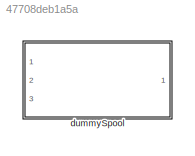
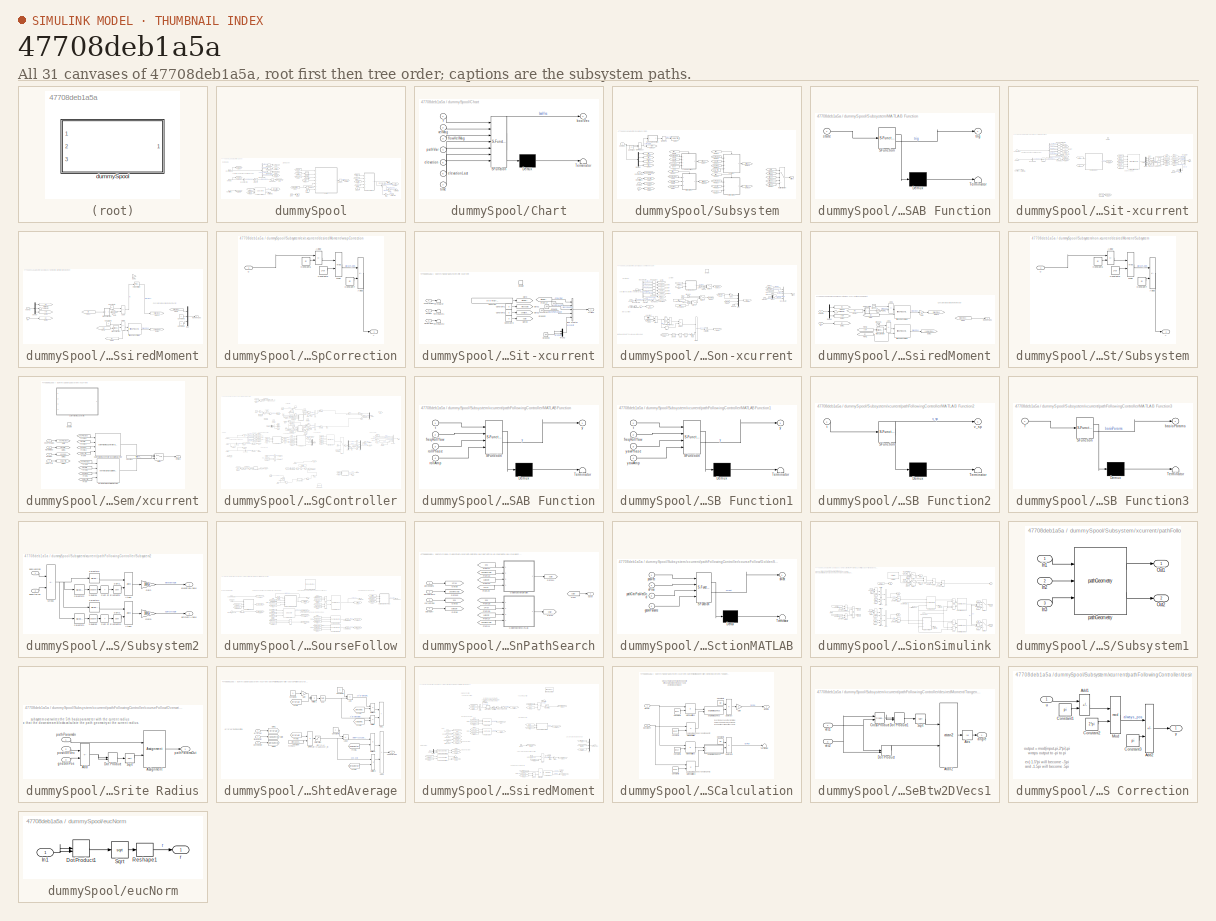
[diagram: thumbnail index - all 31 canvases of the model, root first then tree order]
MODEL slx_47708deb1a5a
KIND library
CONFIG AbsTol = auto
CONFIG EnableMultiTasking = off
CONFIG FixedStep = auto
CONFIG MaxStep = auto
CONFIG MinStep = auto
CONFIG RelTol = 1e-3
CONFIG SampleTimeConstraint = Unconstrained
CONFIG Solver = VariableStepAuto
CONFIG SolverName = VariableStepAuto
CONFIG StartTime = 0.0
CONFIG StopTime = 10.0
BLOCK [SubSystem] dummySpool
  InitFcn = initializeBussesFromBlock(gcb)
  LoadFcn = initializeBussesFromBlock(gcb)
  MinAlgLoopOccurrences = on
  Ports = [3, 1]
  RequestExecContextInheritance = off
  StartFcn = initializeBussesFromBlock(gcb)
  VariantControl = strcmpi(FLIGHTCONTROLLER,'takeoffToLanding')
BLOCK [BusSelector] dummySpool/Bus Selector
  OutputSignals = positionVec,velocityVec,gndStnPositionVec,avgTetherLength
  Ports = [1, 4]
BLOCK [BusSelector] dummySpool/Bus Selector1
  OutputSignals = vhclFlowVecs
  Ports = [1, 1]
BLOCK [BusSelector] dummySpool/Bus Selector3
  OutputSignals = closestPathVariable,winchSpeeds,ctrlSurfDefl
  Ports = [1, 3]
BLOCK [SubSystem] dummySpool/Chart
  ErrorFcn = Stateflow.Translate.translate
  PermitHierarchicalResolution = ExplicitOnly
  Ports = [7, 1]
  RequestExecContextInheritance = off
  SFBlockType = Chart
  TreatAsAtomicUnit = on
BLOCK [Demux] dummySpool/Chart/ Demux 
  Outputs = 1
  Ports = [1, 1]
BLOCK [S-Function] dummySpool/Chart/ SFunction 
  EnableBusSupport = off
  FunctionName = sf_sfun
  Parameters = elvPeak,gain23,gain41,maxR,minTL
  PortCounts = [7 2]
  Ports = [7, 2]
  SFcnIsStateOwnerBlock = off
  SFunctionDeploymentMode = off
  Tag = Stateflow S-Function 5
BLOCK [Terminator] dummySpool/Chart/ Terminator 
BLOCK [Outport] dummySpool/Chart/boolVec
  VectorParamsAs1DForOutWhenUnconnected = off
BLOCK [Inport] dummySpool/Chart/elevation
  Port = 5
BLOCK [Inport] dummySpool/Chart/elevationLast
  Port = 6
BLOCK [Inport] dummySpool/Chart/flowVelMag
  Port = 3
BLOCK [Inport] dummySpool/Chart/pathVar
  Port = 4
BLOCK [Inport] dummySpool/Chart/r
BLOCK [Inport] dummySpool/Chart/time
  Port = 7
BLOCK [Inport] dummySpool/Chart/velMag
  Port = 2
BLOCK [Clock] dummySpool/Clock
BLOCK [From] dummySpool/From
  GotoTag = stateMach
BLOCK [From] dummySpool/From1
  GotoTag = thrLength
BLOCK [From] dummySpool/From19
  GotoTag = pathCntr
BLOCK [From] dummySpool/From2
  GotoTag = velGnd
BLOCK [From] dummySpool/From24
  GotoTag = rst
BLOCK [From] dummySpool/From25
  GotoTag = sStar
BLOCK [From] dummySpool/From3
  GotoTag = flowVecGnd
BLOCK [From] dummySpool/From4
  GotoTag = pos
BLOCK [From] dummySpool/From5
  GotoTag = elevation
BLOCK [From] dummySpool/From6
  GotoTag = time
BLOCK [From] dummySpool/From7
  GotoTag = snsProcBus
BLOCK [From] dummySpool/From8
  GotoTag = envBus
BLOCK [From] dummySpool/From9
  GotoTag = hiLvlCtrlBus
BLOCK [Gain] dummySpool/Gain
BLOCK [Gain] dummySpool/Gain1
BLOCK [Goto] dummySpool/Goto
  GotoTag = flowVecGnd
BLOCK [Goto] dummySpool/Goto1
  GotoTag = pos
BLOCK [Goto] dummySpool/Goto10
  GotoTag = hiLvlCtrlBus
BLOCK [Goto] dummySpool/Goto15
  GotoTag = envBus
BLOCK [Goto] dummySpool/Goto2
  GotoTag = velGnd
BLOCK [Goto] dummySpool/Goto3
  GotoTag = time
BLOCK [Goto] dummySpool/Goto4
  GotoTag = sStar
BLOCK [Goto] dummySpool/Goto5
  GotoTag = elevation
BLOCK [Goto] dummySpool/Goto6
  GotoTag = thrLength
BLOCK [Goto] dummySpool/Goto7
  GotoTag = pathCntr
BLOCK [Goto] dummySpool/Goto8
  GotoTag = stateMach
BLOCK [Goto] dummySpool/Goto9
  GotoTag = snsProcBus
BLOCK [Memory] dummySpool/Memory1
  InitialCondition = [1 0 0 0]
BLOCK [Memory] dummySpool/Memory2
  InitialCondition = .36
BLOCK [Reshape] dummySpool/Reshape2
  OutputDimensionality = Column vector (2-D)
  Ports = [1, 1]
BLOCK [Reshape] dummySpool/Reshape5
  OutputDimensionality = Column vector (2-D)
  Ports = [1, 1]
BLOCK [Reshape] dummySpool/Reshape8
  OutputDimensionality = Column vector (2-D)
  Ports = [1, 1]
BLOCK [Reshape] dummySpool/Reshape9
  OutputDimensionality = Column vector (2-D)
  Ports = [1, 1]
BLOCK [Selector] dummySpool/Selector
  IndexOptions = Select all,Index vector (dialog)
  Indices = [1 3],5
  InputPortWidth = 3
  NumberOfDimensions = 2
  OutputSizes = 1,1
  Ports = [1, 1]
BLOCK [SubSystem] dummySpool/Subsystem
  Ports = [5, 1]
  RequestExecContextInheritance = off
BLOCK [Constant] dummySpool/Subsystem/Constant
  Value = 1:4
BLOCK [Demux] dummySpool/Subsystem/Demux
  Ports = [1, 4]
BLOCK [DotProduct] dummySpool/Subsystem/Dot Product
  OutDataTypeStr = Inherit: Inherit via internal rule
BLOCK [From] dummySpool/Subsystem/From
  GotoTag = reset
BLOCK [From] dummySpool/Subsystem/From1
  GotoTag = envBus
BLOCK [From] dummySpool/Subsystem/From10
  GotoTag = trig2
BLOCK [From] dummySpool/Subsystem/From11
  GotoTag = ctrlBus2
BLOCK [From] dummySpool/Subsystem/From12
  GotoTag = state
BLOCK [From] dummySpool/Subsystem/From13
  GotoTag = envBus
BLOCK [From] dummySpool/Subsystem/From14
  GotoTag = hiLvlCtrlBus
BLOCK [From] dummySpool/Subsystem/From15
  GotoTag = snsProcBus
BLOCK [From] dummySpool/Subsystem/From16
  GotoTag = trig4
BLOCK [From] dummySpool/Subsystem/From17
  GotoTag = envBus
BLOCK [From] dummySpool/Subsystem/From18
  GotoTag = hiLvlCtrlBus
BLOCK [From] dummySpool/Subsystem/From19
  GotoTag = trig3
BLOCK [From] dummySpool/Subsystem/From2
  GotoTag = hiLvlCtrlBus
BLOCK [From] dummySpool/Subsystem/From20
  GotoTag = snsProcBus
BLOCK [From] dummySpool/Subsystem/From21
  GotoTag = ctrlBus3
BLOCK [From] dummySpool/Subsystem/From22
  GotoTag = ctrlBus4
BLOCK [From] dummySpool/Subsystem/From3
  GotoTag = snsProcBus
BLOCK [From] dummySpool/Subsystem/From4
  GotoTag = delayTrig
BLOCK [From] dummySpool/Subsystem/From5
  GotoTag = trig1
BLOCK [From] dummySpool/Subsystem/From6
  GotoTag = ctrlBus1
BLOCK [From] dummySpool/Subsystem/From7
  GotoTag = envBus
BLOCK [From] dummySpool/Subsystem/From8
  GotoTag = hiLvlCtrlBus
BLOCK [From] dummySpool/Subsystem/From9
  GotoTag = snsProcBus
BLOCK [Goto] dummySpool/Subsystem/Goto
  GotoTag = snsProcBus
BLOCK [Goto] dummySpool/Subsystem/Goto1
  GotoTag = hiLvlCtrlBus
BLOCK [Goto] dummySpool/Subsystem/Goto10
  GotoTag = ctrlBus2
BLOCK [Goto] dummySpool/Subsystem/Goto11
  GotoTag = state
BLOCK [Goto] dummySpool/Subsystem/Goto12
  GotoTag = ctrlBus3
BLOCK [Goto] dummySpool/Subsystem/Goto13
  GotoTag = ctrlBus4
BLOCK [Goto] dummySpool/Subsystem/Goto2
  GotoTag = reset
BLOCK [Goto] dummySpool/Subsystem/Goto3
  GotoTag = delayTrig
BLOCK [Goto] dummySpool/Subsystem/Goto4
  GotoTag = envBus
BLOCK [Goto] dummySpool/Subsystem/Goto5
  GotoTag = trig1
BLOCK [Goto] dummySpool/Subsystem/Goto6
  GotoTag = trig2
BLOCK [Goto] dummySpool/Subsystem/Goto7
  GotoTag = trig3
BLOCK [Goto] dummySpool/Subsystem/Goto8
  GotoTag = trig4
BLOCK [Goto] dummySpool/Subsystem/Goto9
  GotoTag = ctrlBus1
BLOCK [SubSystem] dummySpool/Subsystem/MATLAB Function
  ErrorFcn = Stateflow.Translate.translate
  PermitHierarchicalResolution = ExplicitOnly
  Ports = [1, 1]
  RequestExecContextInheritance = off
  SFBlockType = MATLAB Function
  TreatAsAtomicUnit = on
BLOCK [Demux] dummySpool/Subsystem/MATLAB Function/ Demux 
  Outputs = 1
  Ports = [1, 1]
BLOCK [S-Function] dummySpool/Subsystem/MATLAB Function/ SFunction 
  EnableBusSupport = off
  FunctionName = sf_sfun
  PortCounts = [1 2]
  Ports = [1, 2]
  SFcnIsStateOwnerBlock = off
  SFunctionDeploymentMode = off
  Tag = Stateflow S-Function 2
BLOCK [Terminator] dummySpool/Subsystem/MATLAB Function/ Terminator 
BLOCK [Inport] dummySpool/Subsystem/MATLAB Function/state
BLOCK [Outport] dummySpool/Subsystem/MATLAB Function/trig
BLOCK [Memory] dummySpool/Subsystem/Memory3
BLOCK [MultiPortSwitch] dummySpool/Subsystem/Multiport Switch
  DataPortIndices = {1,2,3,4,5,6}
  DiagnosticForDefault = Warning
  InputSameDT = off
  Inputs = 4
  Ports = [5, 1]
  SaturateOnIntegerOverflow = off
BLOCK [Inport] dummySpool/Subsystem/boolVec
BLOCK [Outport] dummySpool/Subsystem/ctrlBus
BLOCK [Inport] dummySpool/Subsystem/envBus
  Port = 4
BLOCK [SubSystem] dummySpool/Subsystem/exit-xcurrent
  Ports = [3, 1, 1]
  RequestExecContextInheritance = off
  TreatAsAtomicUnit = on
BLOCK [BusCreator] dummySpool/Subsystem/exit-xcurrent/Bus Creator
  DisplayOption = bar
  InheritFromInputs = off
  Inputs = 5
  OutDataTypeStr = Bus: fltCtrlBus
  Ports = [5, 1]
BLOCK [BusSelector] dummySpool/Subsystem/exit-xcurrent/Bus Selector
  OutputSignals = positionVec,velocityVec,eulerAngles,angularVel,gndStnPositionVec,avgTetherLength
  Ports = [1, 6]
BLOCK [BusSelector] dummySpool/Subsystem/exit-xcurrent/Bus Selector1
  OutputSignals = vhclFlowVecs
  Ports = [1, 1]
BLOCK [Constant] dummySpool/Subsystem/exit-xcurrent/Constant1
  Value = 0
BLOCK [Constant] dummySpool/Subsystem/exit-xcurrent/Constant2
  Value = 0
BLOCK [Constant] dummySpool/Subsystem/exit-xcurrent/Constant3
  Value = 0
BLOCK [Constant] dummySpool/Subsystem/exit-xcurrent/Constant4
  Commented = on
  Value = zeros(3,1)
BLOCK [Constant] dummySpool/Subsystem/exit-xcurrent/Constant5
  Value = 0
BLOCK [Demux] dummySpool/Subsystem/exit-xcurrent/Demux
  Ports = [1, 4]
BLOCK [EnablePort] dummySpool/Subsystem/exit-xcurrent/Enable
  Ports = []
BLOCK [From] dummySpool/Subsystem/exit-xcurrent/From
  GotoTag = rst
BLOCK [From] dummySpool/Subsystem/exit-xcurrent/From10
  GotoTag = sStar
BLOCK [From] dummySpool/Subsystem/exit-xcurrent/From12
  GotoTag = flowVecGnd
BLOCK [From] dummySpool/Subsystem/exit-xcurrent/From14
  GotoTag = velGnd
BLOCK [From] dummySpool/Subsystem/exit-xcurrent/From17
  GotoTag = ctrlSurDefl
BLOCK [From] dummySpool/Subsystem/exit-xcurrent/From18
  GotoTag = MDesBdy
BLOCK [From] dummySpool/Subsystem/exit-xcurrent/From24
  GotoTag = eul
BLOCK [From] dummySpool/Subsystem/exit-xcurrent/From3
  GotoTag = eul
BLOCK [From] dummySpool/Subsystem/exit-xcurrent/From7
  GotoTag = angVel
BLOCK [From] dummySpool/Subsystem/exit-xcurrent/From8
  GotoTag = winchCmd
BLOCK [From] dummySpool/Subsystem/exit-xcurrent/From9
  GotoTag = centralAngle
BLOCK [Gain] dummySpool/Subsystem/exit-xcurrent/Gain
  Gain = 0
BLOCK [Gain] dummySpool/Subsystem/exit-xcurrent/Gain1
BLOCK [Gain] dummySpool/Subsystem/exit-xcurrent/Gain2
BLOCK [Goto] dummySpool/Subsystem/exit-xcurrent/Goto
  GotoTag = ctrlSurDefl
BLOCK [Goto] dummySpool/Subsystem/exit-xcurrent/Goto1
  GotoTag = winchCmd
BLOCK [Goto] dummySpool/Subsystem/exit-xcurrent/Goto11
  Commented = on
  GotoTag = tetherLength
BLOCK [Goto] dummySpool/Subsystem/exit-xcurrent/Goto13
  Commented = on
  GotoTag = MDesBdy
BLOCK [Goto] dummySpool/Subsystem/exit-xcurrent/Goto2
  GotoTag = centralAngle
BLOCK [Goto] dummySpool/Subsystem/exit-xcurrent/Goto3
  GotoTag = sStar
BLOCK [Goto] dummySpool/Subsystem/exit-xcurrent/Goto4
  GotoTag = flowVecGnd
BLOCK [Goto] dummySpool/Subsystem/exit-xcurrent/Goto5
  GotoTag = MDesBdy
BLOCK [Goto] dummySpool/Subsystem/exit-xcurrent/Goto6
  GotoTag = velGnd
BLOCK [Goto] dummySpool/Subsystem/exit-xcurrent/Goto7
  GotoTag = eul
BLOCK [Goto] dummySpool/Subsystem/exit-xcurrent/Goto8
  GotoTag = angVel
BLOCK [Ground] dummySpool/Subsystem/exit-xcurrent/Ground1
BLOCK [Mux] dummySpool/Subsystem/exit-xcurrent/Mux2
  DisplayOption = bar
  Inputs = 2
  Ports = [2, 1]
BLOCK [Reshape] dummySpool/Subsystem/exit-xcurrent/Reshape1
  OutputDimensionality = Column vector (2-D)
  Ports = [1, 1]
BLOCK [Reshape] dummySpool/Subsystem/exit-xcurrent/Reshape2
  OutputDimensionality = Column vector (2-D)
  Ports = [1, 1]
BLOCK [Reshape] dummySpool/Subsystem/exit-xcurrent/Reshape6
  OutputDimensionality = Column vector (2-D)
  Ports = [1, 1]
BLOCK [Reshape] dummySpool/Subsystem/exit-xcurrent/Reshape7
  OutputDimensionality = Column vector (2-D)
  Ports = [1, 1]
BLOCK [Reshape] dummySpool/Subsystem/exit-xcurrent/Reshape8
  OutputDimensionality = Column vector (2-D)
  Ports = [1, 1]
BLOCK [Reshape] dummySpool/Subsystem/exit-xcurrent/Reshape9
  OutputDimensionality = Column vector (2-D)
  Ports = [1, 1]
BLOCK [Selector] dummySpool/Subsystem/exit-xcurrent/Selector
  IndexOptions = Select all,Index vector (dialog)
  Indices = [1 3],5
  InputPortWidth = 3
  NumberOfDimensions = 2
  OutputSizes = 1,1
  Ports = [1, 1]
BLOCK [Terminator] dummySpool/Subsystem/exit-xcurrent/Terminator
BLOCK [Terminator] dummySpool/Subsystem/exit-xcurrent/Terminator3
BLOCK [Terminator] dummySpool/Subsystem/exit-xcurrent/Terminator4
BLOCK [Terminator] dummySpool/Subsystem/exit-xcurrent/Terminator5
BLOCK [Concatenate] dummySpool/Subsystem/exit-xcurrent/Vector Concatenate
  NumInputs = 4
  Ports = [4, 1]
BLOCK [Reference] dummySpool/Subsystem/exit-xcurrent/ctrlAllocMatrix3Comp  REF=ctrlAllocMatrix3Comp_cl/ctrlAllocMatrix3Comp
  Ports = [5, 1]
  SourceBlock = ctrlAllocMatrix3Comp_cl/ctrlAllocMatrix3Comp
BLOCK [Outport] dummySpool/Subsystem/exit-xcurrent/ctrlBus
  OutDataTypeStr = Bus: fltCtrlBus
  VectorParamsAs1DForOutWhenUnconnected = off
BLOCK [SubSystem] dummySpool/Subsystem/exit-xcurrent/desiredMoment
  AncestorBlock = takeOffToLandingExp/takeOffToLandingExp/exit-xcurrent/desiredMoment
  Ports = [2, 1]
  RequestExecContextInheritance = off
BLOCK [Sum] dummySpool/Subsystem/exit-xcurrent/desiredMoment/Add1
  Commented = on
  IconShape = rectangular
  Inputs = +-
  Ports = [2, 1]
BLOCK [Sum] dummySpool/Subsystem/exit-xcurrent/desiredMoment/Add6
  IconShape = rectangular
  Inputs = +-
  Ports = [2, 1]
BLOCK [Constant] dummySpool/Subsystem/exit-xcurrent/desiredMoment/Constant1
  Commented = on
  Value = 0
BLOCK [Constant] dummySpool/Subsystem/exit-xcurrent/desiredMoment/Constant2
  Value = 0
BLOCK [Constant] dummySpool/Subsystem/exit-xcurrent/desiredMoment/Constant3
  Value = 0
BLOCK [Constant] dummySpool/Subsystem/exit-xcurrent/desiredMoment/Constant4
  Value = 0
BLOCK [Demux] dummySpool/Subsystem/exit-xcurrent/desiredMoment/Demux
  Outputs = 3
  Ports = [1, 3]
BLOCK [From] dummySpool/Subsystem/exit-xcurrent/desiredMoment/From1
  Commented = on
  GotoTag = rst
BLOCK [From] dummySpool/Subsystem/exit-xcurrent/desiredMoment/From17
  GotoTag = roll
BLOCK [From] dummySpool/Subsystem/exit-xcurrent/desiredMoment/From2
  Commented = on
  GotoTag = yaw
BLOCK [From] dummySpool/Subsystem/exit-xcurrent/desiredMoment/From4
  GotoTag = rollMomDes
BLOCK [Gain] dummySpool/Subsystem/exit-xcurrent/desiredMoment/Gain
  Gain = 180/pi
BLOCK [Gain] dummySpool/Subsystem/exit-xcurrent/desiredMoment/Gain1
  Commented = on
  Gain = .4
BLOCK [Goto] dummySpool/Subsystem/exit-xcurrent/desiredMoment/Goto1
  GotoTag = rst
BLOCK [Goto] dummySpool/Subsystem/exit-xcurrent/desiredMoment/Goto12
  GotoTag = rollMomDes
BLOCK [Goto] dummySpool/Subsystem/exit-xcurrent/desiredMoment/Goto15
  GotoTag = roll
BLOCK [Goto] dummySpool/Subsystem/exit-xcurrent/desiredMoment/Goto2
  Commented = on
  GotoTag = yawMomDes
BLOCK [Goto] dummySpool/Subsystem/exit-xcurrent/desiredMoment/Goto3
  Commented = on
  GotoTag = yaw
BLOCK [Mux] dummySpool/Subsystem/exit-xcurrent/desiredMoment/Mux
  DisplayOption = bar
  Inputs = 3
  Ports = [3, 1]
BLOCK [Reference] dummySpool/Subsystem/exit-xcurrent/desiredMoment/PID Controller  REF=simulink/Continuous/PID Controller
  Ports = [1, 1]
  SourceBlock = simulink/Continuous/PID Controller
  SourceProductBaseCode = SL
  SourceType = PID 1dof
BLOCK [Terminator] dummySpool/Subsystem/exit-xcurrent/desiredMoment/Terminator
BLOCK [Reference] dummySpool/Subsystem/exit-xcurrent/desiredMoment/Wrap Correction  REF=setpointToOutput_cl/desiredMoment/Wrap
Correction
  Commented = on
  Ports = [1, 1]
  SourceBlock = setpointToOutput_cl/desiredMoment/Wrap\nCorrection
  SourceType = SubSystem
BLOCK [Inport] dummySpool/Subsystem/exit-xcurrent/desiredMoment/eulAng
BLOCK [Reference] dummySpool/Subsystem/exit-xcurrent/desiredMoment/filteredPIDController2  REF=filteredPIDController_ul/filteredPIDController
  Commented = on
  Ports = [2, 1]
  SourceBlock = filteredPIDController_ul/filteredPIDController
BLOCK [Outport] dummySpool/Subsystem/exit-xcurrent/desiredMoment/momVecDes
  VectorParamsAs1DForOutWhenUnconnected = off
BLOCK [Inport] dummySpool/Subsystem/exit-xcurrent/desiredMoment/rst
  Port = 2
BLOCK [SubSystem] dummySpool/Subsystem/exit-xcurrent/desiredMoment/wrapCorrection
  Ports = [1, 1]
  RequestExecContextInheritance = off
BLOCK [Sum] dummySpool/Subsystem/exit-xcurrent/desiredMoment/wrapCorrection/Add2
  IconShape = rectangular
  Inputs = +-
  Ports = [2, 1]
BLOCK [Sum] dummySpool/Subsystem/exit-xcurrent/desiredMoment/wrapCorrection/Add3
  IconShape = rectangular
  Inputs = +-
  Ports = [2, 1]
BLOCK [Constant] dummySpool/Subsystem/exit-xcurrent/desiredMoment/wrapCorrection/Constant5
  Value = pi
BLOCK [Constant] dummySpool/Subsystem/exit-xcurrent/desiredMoment/wrapCorrection/Constant6
  Value = 2*pi
BLOCK [Constant] dummySpool/Subsystem/exit-xcurrent/desiredMoment/wrapCorrection/Constant7
  Value = pi
BLOCK [Math] dummySpool/Subsystem/exit-xcurrent/desiredMoment/wrapCorrection/Mod
  Operator = mod
  Ports = [2, 1]
  SignedPower = on
BLOCK [Inport] dummySpool/Subsystem/exit-xcurrent/desiredMoment/wrapCorrection/u
BLOCK [Outport] dummySpool/Subsystem/exit-xcurrent/desiredMoment/wrapCorrection/y
BLOCK [Inport] dummySpool/Subsystem/exit-xcurrent/envBus
  OutDataTypeStr = Bus: envBus
  Port = 3
BLOCK [Inport] dummySpool/Subsystem/exit-xcurrent/hiLvlCtrlBus
  OutDataTypeStr = Bus: hiLvlCtrlBus
  Port = 2
BLOCK [Inport] dummySpool/Subsystem/exit-xcurrent/snsProcBus
  OutDataTypeStr = Bus: sensorsProcessingBus
BLOCK [Inport] dummySpool/Subsystem/hiLvlCtrlBus
  Port = 3
BLOCK [SubSystem] dummySpool/Subsystem/init-xcurrent
  Ports = [3, 1, 1]
  RequestExecContextInheritance = off
  TreatAsAtomicUnit = on
BLOCK [BusCreator] dummySpool/Subsystem/init-xcurrent/Bus Creator
  DisplayOption = bar
  InheritFromInputs = off
  Inputs = 5
  OutDataTypeStr = Bus: fltCtrlBus
  Ports = [5, 1]
BLOCK [Constant] dummySpool/Subsystem/init-xcurrent/Constant
  Value = [0 0 fltCtrl.phase2Elevator.Value 0]'
BLOCK [Constant] dummySpool/Subsystem/init-xcurrent/Constant1
  Value = 0
BLOCK [Constant] dummySpool/Subsystem/init-xcurrent/Constant2
  Value = 0
BLOCK [Constant] dummySpool/Subsystem/init-xcurrent/Constant3
  Value = 0
BLOCK [EnablePort] dummySpool/Subsystem/init-xcurrent/Enable
  Ports = []
BLOCK [From] dummySpool/Subsystem/init-xcurrent/From17
  GotoTag = ctrlSurDefl
BLOCK [Goto] dummySpool/Subsystem/init-xcurrent/Goto
  GotoTag = ctrlSurDefl
BLOCK [Goto] dummySpool/Subsystem/init-xcurrent/Goto1
  GotoTag = winchCmd
BLOCK [Goto] dummySpool/Subsystem/init-xcurrent/Goto2
  GotoTag = centralAngle
BLOCK [Goto] dummySpool/Subsystem/init-xcurrent/Goto3
  GotoTag = sStar
BLOCK [Ground] dummySpool/Subsystem/init-xcurrent/Ground
BLOCK [Ground] dummySpool/Subsystem/init-xcurrent/Ground1
BLOCK [Ground] dummySpool/Subsystem/init-xcurrent/Ground2
BLOCK [Ground] dummySpool/Subsystem/init-xcurrent/Ground3
BLOCK [Mux] dummySpool/Subsystem/init-xcurrent/Mux2
  DisplayOption = bar
  Inputs = 2
  Ports = [2, 1]
BLOCK [Terminator] dummySpool/Subsystem/init-xcurrent/Terminator
BLOCK [Terminator] dummySpool/Subsystem/init-xcurrent/Terminator1
BLOCK [Terminator] dummySpool/Subsystem/init-xcurrent/Terminator2
BLOCK [Outport] dummySpool/Subsystem/init-xcurrent/ctrlBus
  OutDataTypeStr = Bus: fltCtrlBus
  VectorParamsAs1DForOutWhenUnconnected = off
BLOCK [Inport] dummySpool/Subsystem/init-xcurrent/envBus
  OutDataTypeStr = Bus: envBus
  Port = 3
BLOCK [Inport] dummySpool/Subsystem/init-xcurrent/hiLvlCtrlBus
  OutDataTypeStr = Bus: hiLvlCtrlBus
  Port = 2
BLOCK [Inport] dummySpool/Subsystem/init-xcurrent/snsProcBus
  OutDataTypeStr = Bus: sensorsProcessingBus
BLOCK [SubSystem] dummySpool/Subsystem/non-xcurrent
  Ports = [4, 1, 1]
  RequestExecContextInheritance = off
  TreatAsAtomicUnit = on
BLOCK [Abs] dummySpool/Subsystem/non-xcurrent/Abs
  SaturateOnIntegerOverflow = off
BLOCK [Sum] dummySpool/Subsystem/non-xcurrent/Add
  IconShape = rectangular
  Inputs = +
  Ports = [1, 1]
BLOCK [BusCreator] dummySpool/Subsystem/non-xcurrent/Bus Creator
  DisplayOption = bar
  InheritFromInputs = off
  Inputs = 5
  OutDataTypeStr = Bus: fltCtrlBus
  Ports = [5, 1]
BLOCK [BusSelector] dummySpool/Subsystem/non-xcurrent/Bus Selector
  OutputSignals = positionVec,velocityVec,eulerAngles,angularVel,gndStnPositionVec,avgTetherLength
  Ports = [1, 6]
BLOCK [BusSelector] dummySpool/Subsystem/non-xcurrent/Bus Selector1
  OutputSignals = vhclFlowVecs
  Ports = [1, 1]
BLOCK [Clock] dummySpool/Subsystem/non-xcurrent/Clock
BLOCK [Clock] dummySpool/Subsystem/non-xcurrent/Clock1
BLOCK [Clock] dummySpool/Subsystem/non-xcurrent/Clock2
BLOCK [Constant] dummySpool/Subsystem/non-xcurrent/Constant
  Value = fltCtrl.initTL.Value
BLOCK [Constant] dummySpool/Subsystem/non-xcurrent/Constant1
  Value = .5
BLOCK [Constant] dummySpool/Subsystem/non-xcurrent/Constant11
  Value = fltCtrl.elvDeflStrt.Value
BLOCK [Constant] dummySpool/Subsystem/non-xcurrent/Constant13
  Value = fltCtrl.elvDeflLaunch.Value
BLOCK [Product] dummySpool/Subsystem/non-xcurrent/Divide
  Inputs = **
  Ports = [2, 1]
BLOCK [Product] dummySpool/Subsystem/non-xcurrent/Divide1
  Inputs = **
  Ports = [2, 1]
BLOCK [EnablePort] dummySpool/Subsystem/non-xcurrent/Enable
  Ports = []
BLOCK [From] dummySpool/Subsystem/non-xcurrent/From
  GotoTag = rst
BLOCK [From] dummySpool/Subsystem/non-xcurrent/From15
  GotoTag = elvDelf
BLOCK [From] dummySpool/Subsystem/non-xcurrent/From17
  GotoTag = ctrlSurDefl
BLOCK [From] dummySpool/Subsystem/non-xcurrent/From3
  GotoTag = eul
BLOCK [From] dummySpool/Subsystem/non-xcurrent/From4
  GotoTag = flowVecGnd
BLOCK [From] dummySpool/Subsystem/non-xcurrent/From6
  GotoTag = tetherLength
BLOCK [From] dummySpool/Subsystem/non-xcurrent/From7
  GotoTag = MDesBdy
BLOCK [From] dummySpool/Subsystem/non-xcurrent/From8
  GotoTag = winchCmd
BLOCK [Gain] dummySpool/Subsystem/non-xcurrent/Gain
  Gain = fltCtrl.sIM.Value
BLOCK [Gain] dummySpool/Subsystem/non-xcurrent/Gain1
  Gain = -1
BLOCK [Goto] dummySpool/Subsystem/non-xcurrent/Goto
  GotoTag = ctrlSurDefl
BLOCK [Goto] dummySpool/Subsystem/non-xcurrent/Goto1
  GotoTag = winchCmd
BLOCK [Goto] dummySpool/Subsystem/non-xcurrent/Goto10
  GotoTag = elvDelf
BLOCK [Goto] dummySpool/Subsystem/non-xcurrent/Goto11
  GotoTag = tetherLength
BLOCK [Goto] dummySpool/Subsystem/non-xcurrent/Goto12
  GotoTag = rst
BLOCK [Goto] dummySpool/Subsystem/non-xcurrent/Goto13
  GotoTag = MDesBdy
BLOCK [Goto] dummySpool/Subsystem/non-xcurrent/Goto16
  Commented = on
  GotoTag = pathCntr
BLOCK [Goto] dummySpool/Subsystem/non-xcurrent/Goto4
  GotoTag = flowVecGnd
BLOCK [Goto] dummySpool/Subsystem/non-xcurrent/Goto5
  GotoTag = pos
BLOCK [Goto] dummySpool/Subsystem/non-xcurrent/Goto6
  GotoTag = velGnd
BLOCK [Goto] dummySpool/Subsystem/non-xcurrent/Goto7
  GotoTag = eul
BLOCK [Goto] dummySpool/Subsystem/non-xcurrent/Goto8
  GotoTag = angVel
BLOCK [RelationalOperator] dummySpool/Subsystem/non-xcurrent/GreaterThan
  InputSameDT = off
  Operator = >
  OutDataTypeStr = boolean
  Ports = [2, 1]
  RndMeth = Simplest
BLOCK [Ground] dummySpool/Subsystem/non-xcurrent/Ground
BLOCK [Ground] dummySpool/Subsystem/non-xcurrent/Ground1
BLOCK [Ground] dummySpool/Subsystem/non-xcurrent/Ground2
BLOCK [Ground] dummySpool/Subsystem/non-xcurrent/Ground3
BLOCK [Ground] dummySpool/Subsystem/non-xcurrent/Ground4
BLOCK [Ground] dummySpool/Subsystem/non-xcurrent/Ground5
BLOCK [Sum] dummySpool/Subsystem/non-xcurrent/Minus
  IconShape = rectangular
  Inputs = +-
  Ports = [2, 1]
BLOCK [Mux] dummySpool/Subsystem/non-xcurrent/Mux
  DisplayOption = bar
  Ports = [4, 1]
BLOCK [Mux] dummySpool/Subsystem/non-xcurrent/Mux2
  DisplayOption = bar
  Inputs = 2
  Ports = [2, 1]
BLOCK [Reshape] dummySpool/Subsystem/non-xcurrent/Reshape1
  OutputDimensionality = Column vector (2-D)
  Ports = [1, 1]
BLOCK [Reshape] dummySpool/Subsystem/non-xcurrent/Reshape2
  OutputDimensionality = Column vector (2-D)
  Ports = [1, 1]
BLOCK [Reshape] dummySpool/Subsystem/non-xcurrent/Reshape6
  OutputDimensionality = Column vector (2-D)
  Ports = [1, 1]
BLOCK [Reshape] dummySpool/Subsystem/non-xcurrent/Reshape7
  OutputDimensionality = Column vector (2-D)
  Ports = [1, 1]
BLOCK [Reshape] dummySpool/Subsystem/non-xcurrent/Reshape8
  OutputDimensionality = Column vector (2-D)
  Ports = [1, 1]
BLOCK [Reshape] dummySpool/Subsystem/non-xcurrent/Reshape9
  OutputDimensionality = Column vector (2-D)
  Ports = [1, 1]
BLOCK [Saturate] dummySpool/Subsystem/non-xcurrent/Saturation
  LowerLimit = -inf
  UpperLimit = 0
BLOCK [Selector] dummySpool/Subsystem/non-xcurrent/Selector
  IndexOptions = Select all,Index vector (dialog)
  Indices = [1 3],5
  InputPortWidth = 3
  NumberOfDimensions = 2
  OutputSizes = 1,1
  Ports = [1, 1]
BLOCK [Signum] dummySpool/Subsystem/non-xcurrent/Sign
BLOCK [Sqrt] dummySpool/Subsystem/non-xcurrent/Sqrt
BLOCK [Math] dummySpool/Subsystem/non-xcurrent/Square
  Operator = square
  Ports = [1, 1]
  SignedPower = on
BLOCK [Switch] dummySpool/Subsystem/non-xcurrent/Switch1
  Criteria = u2 > Threshold
  InputSameDT = off
  SaturateOnIntegerOverflow = off
  Threshold = fltCtrl.startControl.Value+50
BLOCK [Switch] dummySpool/Subsystem/non-xcurrent/Switch2
  Criteria = u2 > Threshold
  InputSameDT = off
  SaturateOnIntegerOverflow = off
  Threshold = fltCtrl.startControl.Value
BLOCK [Switch] dummySpool/Subsystem/non-xcurrent/Switch3
  Criteria = u2 > Threshold
  InputSameDT = off
  SaturateOnIntegerOverflow = off
  Threshold = fltCtrl.startControl.Value+50
BLOCK [Terminator] dummySpool/Subsystem/non-xcurrent/Terminator1
BLOCK [Outport] dummySpool/Subsystem/non-xcurrent/ctrlBus
  OutDataTypeStr = Bus: fltCtrlBus
  VectorParamsAs1DForOutWhenUnconnected = off
BLOCK [SubSystem] dummySpool/Subsystem/non-xcurrent/desiredMoment
  Ports = [2, 1]
  RequestExecContextInheritance = off
BLOCK [Sum] dummySpool/Subsystem/non-xcurrent/desiredMoment/Add1
  Commented = on
  IconShape = rectangular
  Inputs = +-
  Ports = [2, 1]
BLOCK [Sum] dummySpool/Subsystem/non-xcurrent/desiredMoment/Add6
  IconShape = rectangular
  Inputs = +-
  Ports = [2, 1]
BLOCK [Demux] dummySpool/Subsystem/non-xcurrent/desiredMoment/Demux
  Outputs = 3
  Ports = [1, 3]
BLOCK [From] dummySpool/Subsystem/non-xcurrent/desiredMoment/From
  GotoTag = rst
BLOCK [From] dummySpool/Subsystem/non-xcurrent/desiredMoment/From1
  Commented = on
  GotoTag = rst
BLOCK [From] dummySpool/Subsystem/non-xcurrent/desiredMoment/From17
  GotoTag = roll
BLOCK [From] dummySpool/Subsystem/non-xcurrent/desiredMoment/From2
  Commented = on
  GotoTag = yaw
BLOCK [From] dummySpool/Subsystem/non-xcurrent/desiredMoment/From4
  GotoTag = rollMomDes
BLOCK [Gain] dummySpool/Subsystem/non-xcurrent/desiredMoment/Gain
BLOCK [Gain] dummySpool/Subsystem/non-xcurrent/desiredMoment/Gain1
  Gain = 180/pi
BLOCK [Goto] dummySpool/Subsystem/non-xcurrent/desiredMoment/Goto1
  GotoTag = rst
BLOCK [Goto] dummySpool/Subsystem/non-xcurrent/desiredMoment/Goto12
  GotoTag = rollMomDes
BLOCK [Goto] dummySpool/Subsystem/non-xcurrent/desiredMoment/Goto15
  GotoTag = roll
BLOCK [Goto] dummySpool/Subsystem/non-xcurrent/desiredMoment/Goto2
  Commented = on
  GotoTag = yawMomDes
BLOCK [Goto] dummySpool/Subsystem/non-xcurrent/desiredMoment/Goto3
  Commented = on
  GotoTag = yaw
BLOCK [Ground] dummySpool/Subsystem/non-xcurrent/desiredMoment/Ground
BLOCK [Ground] dummySpool/Subsystem/non-xcurrent/desiredMoment/Ground1
  Commented = on
BLOCK [SubSystem] dummySpool/Subsystem/non-xcurrent/desiredMoment/Subsystem
  Ports = [1, 1]
  RequestExecContextInheritance = off
BLOCK [Sum] dummySpool/Subsystem/non-xcurrent/desiredMoment/Subsystem/Add2
  IconShape = rectangular
  Inputs = +-
  Ports = [2, 1]
BLOCK [Sum] dummySpool/Subsystem/non-xcurrent/desiredMoment/Subsystem/Add3
  IconShape = rectangular
  Inputs = +-
  Ports = [2, 1]
BLOCK [Constant] dummySpool/Subsystem/non-xcurrent/desiredMoment/Subsystem/Constant5
  Value = pi
BLOCK [Constant] dummySpool/Subsystem/non-xcurrent/desiredMoment/Subsystem/Constant6
  Value = 2*pi
BLOCK [Constant] dummySpool/Subsystem/non-xcurrent/desiredMoment/Subsystem/Constant7
  Value = pi
BLOCK [Math] dummySpool/Subsystem/non-xcurrent/desiredMoment/Subsystem/Mod
  Operator = mod
  Ports = [2, 1]
  SignedPower = on
BLOCK [Inport] dummySpool/Subsystem/non-xcurrent/desiredMoment/Subsystem/u
BLOCK [Outport] dummySpool/Subsystem/non-xcurrent/desiredMoment/Subsystem/y
BLOCK [Terminator] dummySpool/Subsystem/non-xcurrent/desiredMoment/Terminator
BLOCK [Reference] dummySpool/Subsystem/non-xcurrent/desiredMoment/Wrap Correction  REF=setpointToOutput_cl/desiredMoment/Wrap
Correction
  Commented = on
  Ports = [1, 1]
  SourceBlock = setpointToOutput_cl/desiredMoment/Wrap\nCorrection
  SourceType = SubSystem
BLOCK [Inport] dummySpool/Subsystem/non-xcurrent/desiredMoment/eulAng
BLOCK [Reference] dummySpool/Subsystem/non-xcurrent/desiredMoment/filteredPIDController1  REF=filteredPIDController_ul/filteredPIDController
  Ports = [2, 1]
  SourceBlock = filteredPIDController_ul/filteredPIDController
BLOCK [Reference] dummySpool/Subsystem/non-xcurrent/desiredMoment/filteredPIDController2  REF=filteredPIDController_ul/filteredPIDController
  Commented = on
  Ports = [2, 1]
  SourceBlock = filteredPIDController_ul/filteredPIDController
BLOCK [Outport] dummySpool/Subsystem/non-xcurrent/desiredMoment/momVecDes
  VectorParamsAs1DForOutWhenUnconnected = off
BLOCK [Inport] dummySpool/Subsystem/non-xcurrent/desiredMoment/rst
  Port = 2
BLOCK [Inport] dummySpool/Subsystem/non-xcurrent/envBus
  OutDataTypeStr = Bus: envBus
  Port = 3
BLOCK [Inport] dummySpool/Subsystem/non-xcurrent/hiLvlCtrlBus
  OutDataTypeStr = Bus: hiLvlCtrlBus
  Port = 2
BLOCK [Inport] dummySpool/Subsystem/non-xcurrent/rst 
  Port = 4
BLOCK [Inport] dummySpool/Subsystem/non-xcurrent/snsProcBus
  OutDataTypeStr = Bus: sensorsProcessingBus
BLOCK [Inport] dummySpool/Subsystem/rst 
  Port = 5
BLOCK [Inport] dummySpool/Subsystem/snsProcBus
  Port = 2
BLOCK [SubSystem] dummySpool/Subsystem/xcurrent
  Ports = [4, 1, 1]
  RequestExecContextInheritance = off
  TreatAsAtomicUnit = on
BLOCK [Constant] dummySpool/Subsystem/xcurrent/Constant
  Value = fltCtrl.controllerEnable.Value
BLOCK [EnablePort] dummySpool/Subsystem/xcurrent/Enable
  Ports = []
BLOCK [From] dummySpool/Subsystem/xcurrent/From
  GotoTag = delayTrig
BLOCK [From] dummySpool/Subsystem/xcurrent/From1
  GotoTag = envBus
BLOCK [From] dummySpool/Subsystem/xcurrent/From13
  GotoTag = envBus
BLOCK [From] dummySpool/Subsystem/xcurrent/From14
  GotoTag = hiLvlCtrlBus
BLOCK [From] dummySpool/Subsystem/xcurrent/From15
  GotoTag = snsProcBus
BLOCK [From] dummySpool/Subsystem/xcurrent/From2
  GotoTag = hiLvlCtrlBus
BLOCK [From] dummySpool/Subsystem/xcurrent/From3
  GotoTag = snsProcBus
BLOCK [From] dummySpool/Subsystem/xcurrent/From4
  GotoTag = delayTrig
BLOCK [Goto] dummySpool/Subsystem/xcurrent/Goto
  GotoTag = snsProcBus
BLOCK [Goto] dummySpool/Subsystem/xcurrent/Goto1
  GotoTag = hiLvlCtrlBus
BLOCK [Goto] dummySpool/Subsystem/xcurrent/Goto2
  GotoTag = envBus
BLOCK [Goto] dummySpool/Subsystem/xcurrent/Goto3
  GotoTag = delayTrig
BLOCK [Switch] dummySpool/Subsystem/xcurrent/Switch
  Criteria = u2 > Threshold
  InputSameDT = off
  SaturateOnIntegerOverflow = off
BLOCK [Outport] dummySpool/Subsystem/xcurrent/ctrlBus
  OutDataTypeStr = Bus: fltCtrlBus
  VectorParamsAs1DForOutWhenUnconnected = off
BLOCK [Inport] dummySpool/Subsystem/xcurrent/delayTrig
  Port = 4
BLOCK [Inport] dummySpool/Subsystem/xcurrent/envBus
  OutDataTypeStr = Bus: envBus
  Port = 3
BLOCK [Inport] dummySpool/Subsystem/xcurrent/hiLvlCtrlBus
  OutDataTypeStr = Bus: hiLvlCtrlBus
  Port = 2
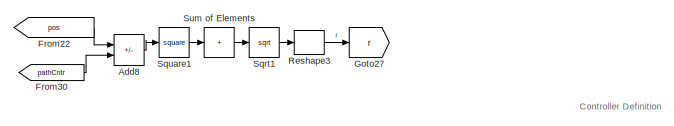
[diagram: dummySpool/Subsystem/xcurrent/pathFollowingController - part 1/6, top left region]
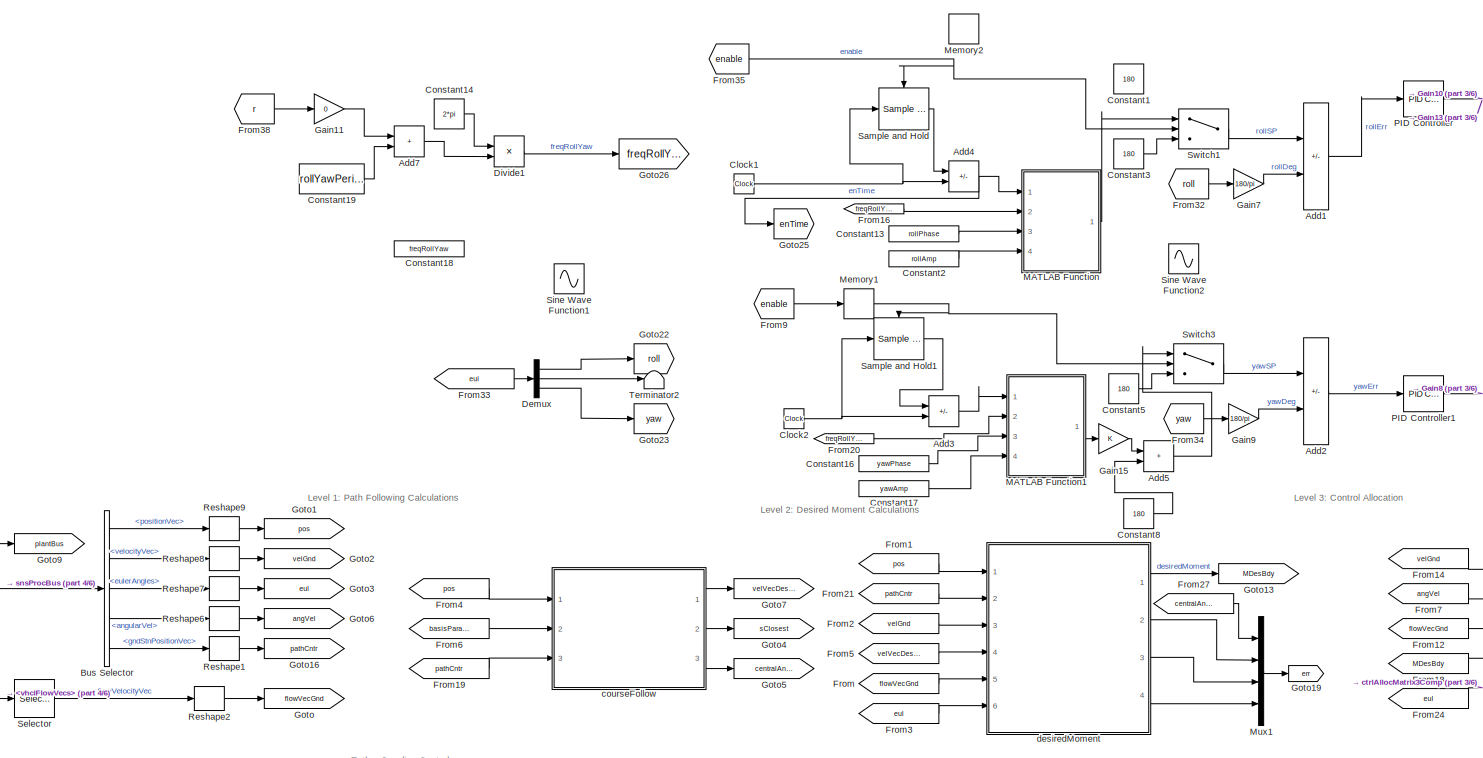
[diagram: dummySpool/Subsystem/xcurrent/pathFollowingController - part 2/6, top center region]
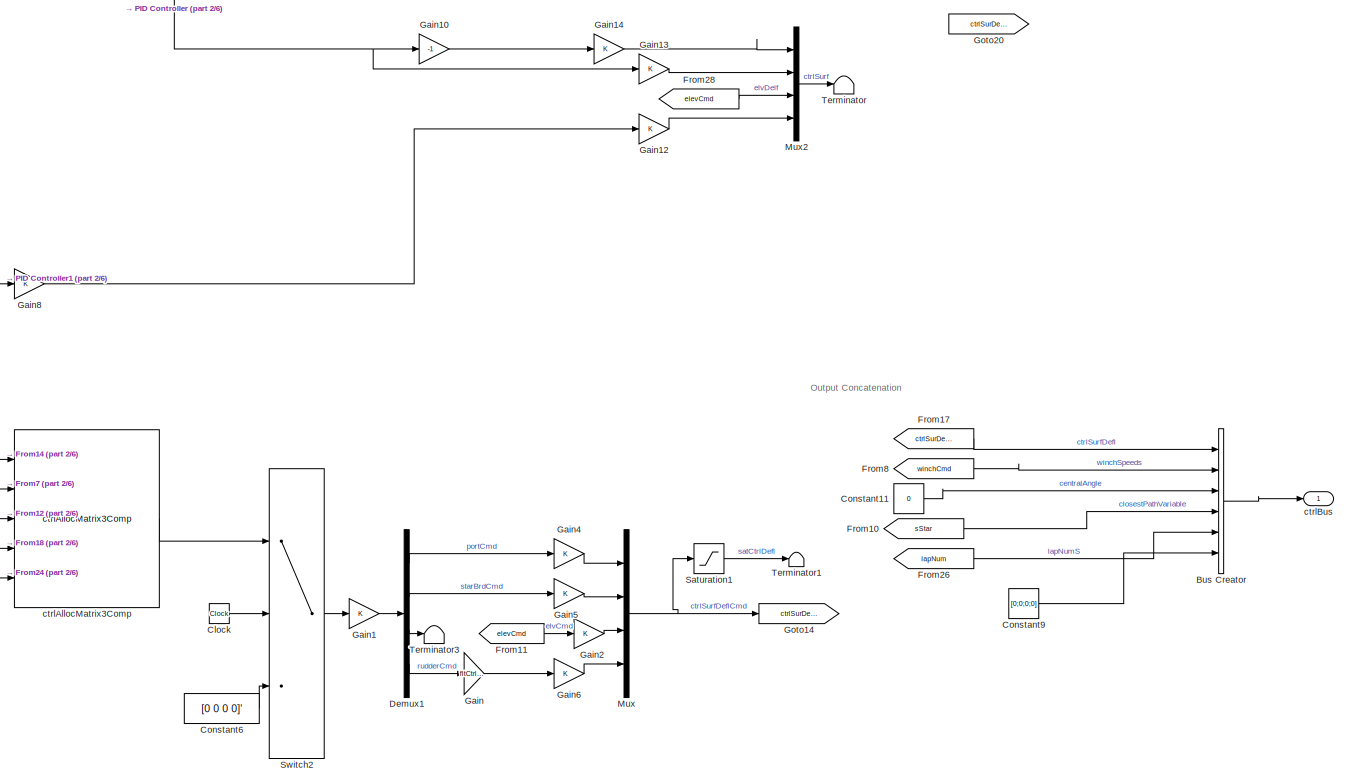
[diagram: dummySpool/Subsystem/xcurrent/pathFollowingController - part 3/6, middle right region]
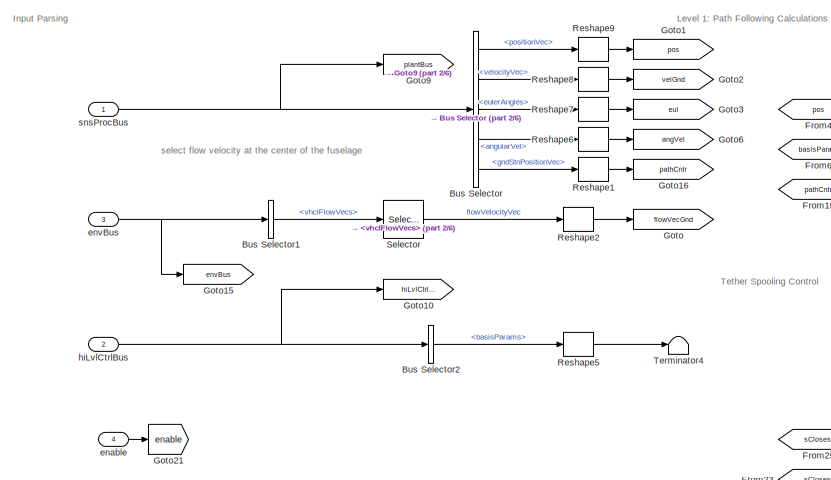
[diagram: dummySpool/Subsystem/xcurrent/pathFollowingController - part 4/6, middle left region]
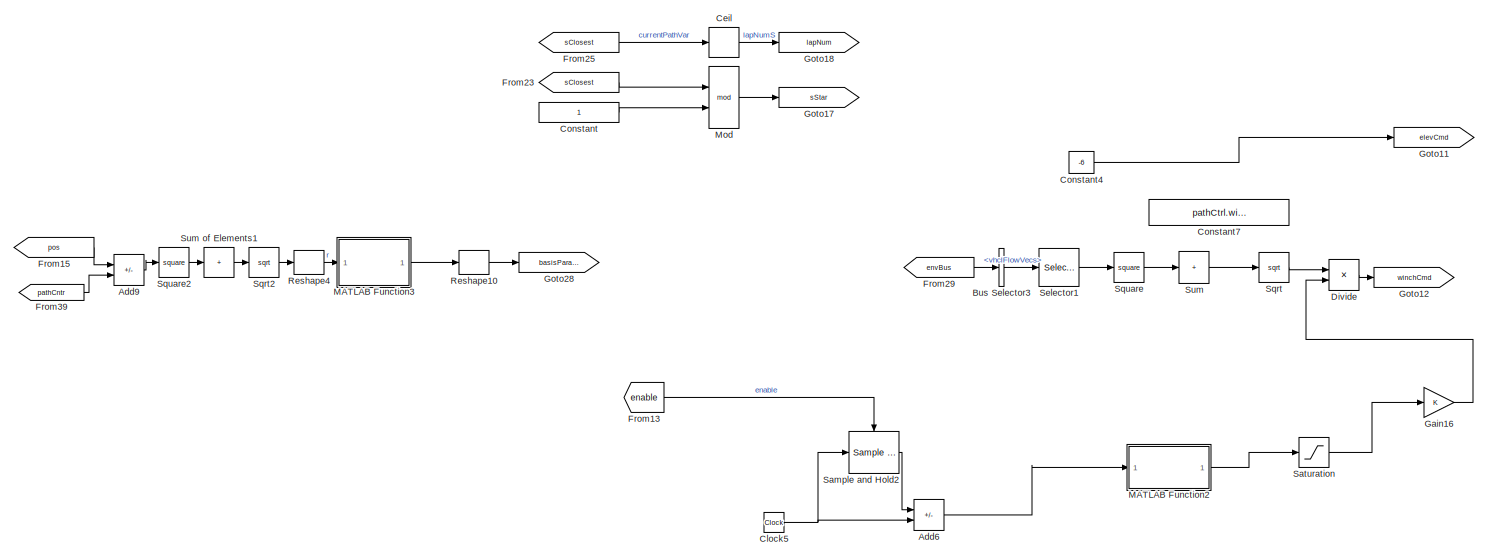
[diagram: dummySpool/Subsystem/xcurrent/pathFollowingController - part 5/6, bottom left region]
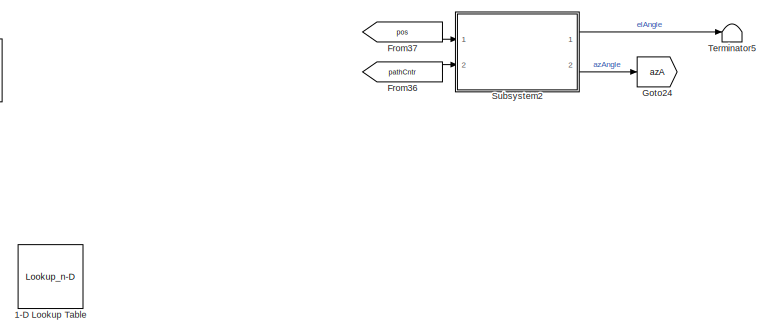
[diagram: dummySpool/Subsystem/xcurrent/pathFollowingController - part 6/6, bottom center region]
BLOCK [SubSystem] dummySpool/Subsystem/xcurrent/pathFollowingController
  AncestorBlock = pathFollowingController_cl/pathFollowingController
  Commented = on
  InitFcn = initializeBussesFromBlock(gcb)
  LoadFcn = initializeBussesFromBlock(gcb)
  MinAlgLoopOccurrences = on
  Ports = [4, 1]
  RequestExecContextInheritance = off
  StartFcn = initializeBussesFromBlock(gcb)
  VariantControl = strcmpi(FLIGHTCONTROLLER,'pathFollowingController')
BLOCK [Lookup_n-D] dummySpool/Subsystem/xcurrent/pathFollowingController/1-D Lookup Table
  BreakpointsForDimension1 = tsSpool.Time
  Commented = on
  ExtrapMethod = Clip
  InternalRulePriority = Speed
  NumberOfTableDimensions = 1
  Ports = [1, 1]
  RndMeth = Simplest
  Table = tsSpool.Data
BLOCK [Sum] dummySpool/Subsystem/xcurrent/pathFollowingController/Add1
  IconShape = rectangular
  Inputs = +-
  Ports = [2, 1]
BLOCK [Sum] dummySpool/Subsystem/xcurrent/pathFollowingController/Add2
  IconShape = rectangular
  Inputs = +-
  Ports = [2, 1]
BLOCK [Sum] dummySpool/Subsystem/xcurrent/pathFollowingController/Add3
  IconShape = rectangular
  Inputs = -+
  Ports = [2, 1]
BLOCK [Sum] dummySpool/Subsystem/xcurrent/pathFollowingController/Add4
  IconShape = rectangular
  Inputs = -+
  Ports = [2, 1]
BLOCK [Sum] dummySpool/Subsystem/xcurrent/pathFollowingController/Add5
  IconShape = rectangular
  Ports = [2, 1]
BLOCK [Sum] dummySpool/Subsystem/xcurrent/pathFollowingController/Add6
  IconShape = rectangular
  Inputs = -+
  Ports = [2, 1]
BLOCK [Sum] dummySpool/Subsystem/xcurrent/pathFollowingController/Add7
  IconShape = rectangular
  Ports = [2, 1]
BLOCK [Sum] dummySpool/Subsystem/xcurrent/pathFollowingController/Add8
  IconShape = rectangular
  Inputs = +-
  Ports = [2, 1]
BLOCK [Sum] dummySpool/Subsystem/xcurrent/pathFollowingController/Add9
  IconShape = rectangular
  Inputs = +-
  Ports = [2, 1]
BLOCK [BusCreator] dummySpool/Subsystem/xcurrent/pathFollowingController/Bus Creator
  DisplayOption = bar
  InheritFromInputs = off
  Inputs = 6
  OutDataTypeStr = Bus: fltCtrlBus
  Ports = [6, 1]
BLOCK [BusSelector] dummySpool/Subsystem/xcurrent/pathFollowingController/Bus Selector
  OutputSignals = positionVec,velocityVec,eulerAngles,angularVel,gndStnPositionVec
  Ports = [1, 5]
BLOCK [BusSelector] dummySpool/Subsystem/xcurrent/pathFollowingController/Bus Selector1
  OutputSignals = vhclFlowVecs
  Ports = [1, 1]
BLOCK [BusSelector] dummySpool/Subsystem/xcurrent/pathFollowingController/Bus Selector2
  OutputSignals = basisParams
  Ports = [1, 1]
BLOCK [BusSelector] dummySpool/Subsystem/xcurrent/pathFollowingController/Bus Selector3
  OutputSignals = vhclFlowVecs
  Ports = [1, 1]
BLOCK [Rounding] dummySpool/Subsystem/xcurrent/pathFollowingController/Ceil
  Operator = ceil
BLOCK [Clock] dummySpool/Subsystem/xcurrent/pathFollowingController/Clock
BLOCK [Clock] dummySpool/Subsystem/xcurrent/pathFollowingController/Clock1
BLOCK [Clock] dummySpool/Subsystem/xcurrent/pathFollowingController/Clock2
BLOCK [Clock] dummySpool/Subsystem/xcurrent/pathFollowingController/Clock5
BLOCK [Constant] dummySpool/Subsystem/xcurrent/pathFollowingController/Constant
BLOCK [Constant] dummySpool/Subsystem/xcurrent/pathFollowingController/Constant1
  Commented = on
  Value = 180
BLOCK [Constant] dummySpool/Subsystem/xcurrent/pathFollowingController/Constant11
  Value = 0
BLOCK [Constant] dummySpool/Subsystem/xcurrent/pathFollowingController/Constant13
  Value = rollPhase
BLOCK [Constant] dummySpool/Subsystem/xcurrent/pathFollowingController/Constant14
  Value = 2*pi
BLOCK [Constant] dummySpool/Subsystem/xcurrent/pathFollowingController/Constant16
  Value = yawPhase
BLOCK [Constant] dummySpool/Subsystem/xcurrent/pathFollowingController/Constant17
  Value = yawAmp
BLOCK [Constant] dummySpool/Subsystem/xcurrent/pathFollowingController/Constant18
  Commented = on
  Value = freqRollYaw
BLOCK [Constant] dummySpool/Subsystem/xcurrent/pathFollowingController/Constant19
  Value = rollYawPeriod
BLOCK [Constant] dummySpool/Subsystem/xcurrent/pathFollowingController/Constant2
  Value = rollAmp
BLOCK [Constant] dummySpool/Subsystem/xcurrent/pathFollowingController/Constant3
  Value = 180
BLOCK [Constant] dummySpool/Subsystem/xcurrent/pathFollowingController/Constant4
  Value = -6
BLOCK [Constant] dummySpool/Subsystem/xcurrent/pathFollowingController/Constant5
  Value = 180
BLOCK [Constant] dummySpool/Subsystem/xcurrent/pathFollowingController/Constant6
  Value = [0 0 0 0]'
BLOCK [Constant] dummySpool/Subsystem/xcurrent/pathFollowingController/Constant7
  Commented = on
  Value = pathCtrl.winchSpeedOut.Value
BLOCK [Constant] dummySpool/Subsystem/xcurrent/pathFollowingController/Constant8
  Value = 180
BLOCK [Constant] dummySpool/Subsystem/xcurrent/pathFollowingController/Constant9
  Value = [0;0;0;0]
BLOCK [Demux] dummySpool/Subsystem/xcurrent/pathFollowingController/Demux
  Outputs = 3
  Ports = [1, 3]
BLOCK [Demux] dummySpool/Subsystem/xcurrent/pathFollowingController/Demux1
  Ports = [1, 4]
BLOCK [Product] dummySpool/Subsystem/xcurrent/pathFollowingController/Divide
  Inputs = **
  Ports = [2, 1]
BLOCK [Product] dummySpool/Subsystem/xcurrent/pathFollowingController/Divide1
  Inputs = */
  Ports = [2, 1]
BLOCK [From] dummySpool/Subsystem/xcurrent/pathFollowingController/From
  GotoTag = flowVecGnd
BLOCK [From] dummySpool/Subsystem/xcurrent/pathFollowingController/From1
  GotoTag = pos
BLOCK [From] dummySpool/Subsystem/xcurrent/pathFollowingController/From10
  GotoTag = sStar
BLOCK [From] dummySpool/Subsystem/xcurrent/pathFollowingController/From11
  GotoTag = elevCmd
BLOCK [From] dummySpool/Subsystem/xcurrent/pathFollowingController/From12
  GotoTag = flowVecGnd
BLOCK [From] dummySpool/Subsystem/xcurrent/pathFollowingController/From13
  GotoTag = enable
BLOCK [From] dummySpool/Subsystem/xcurrent/pathFollowingController/From14
  GotoTag = velGnd
BLOCK [From] dummySpool/Subsystem/xcurrent/pathFollowingController/From15
  GotoTag = pos
BLOCK [From] dummySpool/Subsystem/xcurrent/pathFollowingController/From16
  GotoTag = freqRollYaw
BLOCK [From] dummySpool/Subsystem/xcurrent/pathFollowingController/From17
  GotoTag = ctrlSurDefl
BLOCK [From] dummySpool/Subsystem/xcurrent/pathFollowingController/From18
  GotoTag = MDesBdy
BLOCK [From] dummySpool/Subsystem/xcurrent/pathFollowingController/From19
  GotoTag = pathCntr
BLOCK [From] dummySpool/Subsystem/xcurrent/pathFollowingController/From2
  GotoTag = velGnd
BLOCK [From] dummySpool/Subsystem/xcurrent/pathFollowingController/From20
  GotoTag = freqRollYaw
BLOCK [From] dummySpool/Subsystem/xcurrent/pathFollowingController/From21
  GotoTag = pathCntr
BLOCK [From] dummySpool/Subsystem/xcurrent/pathFollowingController/From22
  GotoTag = pos
BLOCK [From] dummySpool/Subsystem/xcurrent/pathFollowingController/From23
  GotoTag = sClosest
BLOCK [From] dummySpool/Subsystem/xcurrent/pathFollowingController/From24
  GotoTag = eul
BLOCK [From] dummySpool/Subsystem/xcurrent/pathFollowingController/From25
  GotoTag = sClosest
BLOCK [From] dummySpool/Subsystem/xcurrent/pathFollowingController/From26
  GotoTag = lapNum
BLOCK [From] dummySpool/Subsystem/xcurrent/pathFollowingController/From27
  GotoTag = centralAngle
BLOCK [From] dummySpool/Subsystem/xcurrent/pathFollowingController/From28
  GotoTag = elevCmd
BLOCK [From] dummySpool/Subsystem/xcurrent/pathFollowingController/From29
  GotoTag = envBus
BLOCK [From] dummySpool/Subsystem/xcurrent/pathFollowingController/From3
  GotoTag = eul
BLOCK [From] dummySpool/Subsystem/xcurrent/pathFollowingController/From30
  GotoTag = pathCntr
BLOCK [From] dummySpool/Subsystem/xcurrent/pathFollowingController/From32
  GotoTag = roll
BLOCK [From] dummySpool/Subsystem/xcurrent/pathFollowingController/From33
  GotoTag = eul
BLOCK [From] dummySpool/Subsystem/xcurrent/pathFollowingController/From34
  GotoTag = yaw
BLOCK [From] dummySpool/Subsystem/xcurrent/pathFollowingController/From35
  GotoTag = enable
BLOCK [From] dummySpool/Subsystem/xcurrent/pathFollowingController/From36
  GotoTag = pathCntr
BLOCK [From] dummySpool/Subsystem/xcurrent/pathFollowingController/From37
  GotoTag = pos
BLOCK [From] dummySpool/Subsystem/xcurrent/pathFollowingController/From38
  GotoTag = r
BLOCK [From] dummySpool/Subsystem/xcurrent/pathFollowingController/From39
  GotoTag = pathCntr
BLOCK [From] dummySpool/Subsystem/xcurrent/pathFollowingController/From4
  GotoTag = pos
BLOCK [From] dummySpool/Subsystem/xcurrent/pathFollowingController/From5
  GotoTag = velVecDesGnd
BLOCK [From] dummySpool/Subsystem/xcurrent/pathFollowingController/From6
  GotoTag = basisParams
BLOCK [From] dummySpool/Subsystem/xcurrent/pathFollowingController/From7
  GotoTag = angVel
BLOCK [From] dummySpool/Subsystem/xcurrent/pathFollowingController/From8
  GotoTag = winchCmd
BLOCK [From] dummySpool/Subsystem/xcurrent/pathFollowingController/From9
  GotoTag = enable
BLOCK [Gain] dummySpool/Subsystem/xcurrent/pathFollowingController/Gain
  Gain = fltCtrl.rudderGain.Value
BLOCK [Gain] dummySpool/Subsystem/xcurrent/pathFollowingController/Gain1
BLOCK [Gain] dummySpool/Subsystem/xcurrent/pathFollowingController/Gain10
  Gain = -1
BLOCK [Gain] dummySpool/Subsystem/xcurrent/pathFollowingController/Gain11
  Gain = 0
BLOCK [Gain] dummySpool/Subsystem/xcurrent/pathFollowingController/Gain12
BLOCK [Gain] dummySpool/Subsystem/xcurrent/pathFollowingController/Gain13
BLOCK [Gain] dummySpool/Subsystem/xcurrent/pathFollowingController/Gain14
BLOCK [Gain] dummySpool/Subsystem/xcurrent/pathFollowingController/Gain15
BLOCK [Gain] dummySpool/Subsystem/xcurrent/pathFollowingController/Gain16
BLOCK [Gain] dummySpool/Subsystem/xcurrent/pathFollowingController/Gain2
BLOCK [Gain] dummySpool/Subsystem/xcurrent/pathFollowingController/Gain4
BLOCK [Gain] dummySpool/Subsystem/xcurrent/pathFollowingController/Gain5
BLOCK [Gain] dummySpool/Subsystem/xcurrent/pathFollowingController/Gain6
BLOCK [Gain] dummySpool/Subsystem/xcurrent/pathFollowingController/Gain7
  Gain = 180/pi
BLOCK [Gain] dummySpool/Subsystem/xcurrent/pathFollowingController/Gain8
BLOCK [Gain] dummySpool/Subsystem/xcurrent/pathFollowingController/Gain9
  Gain = 180/pi
BLOCK [Goto] dummySpool/Subsystem/xcurrent/pathFollowingController/Goto
  GotoTag = flowVecGnd
BLOCK [Goto] dummySpool/Subsystem/xcurrent/pathFollowingController/Goto1
  GotoTag = pos
BLOCK [Goto] dummySpool/Subsystem/xcurrent/pathFollowingController/Goto10
  GotoTag = hiLvlCtrlBus
BLOCK [Goto] dummySpool/Subsystem/xcurrent/pathFollowingController/Goto11
  GotoTag = elevCmd
BLOCK [Goto] dummySpool/Subsystem/xcurrent/pathFollowingController/Goto12
  GotoTag = winchCmd
BLOCK [Goto] dummySpool/Subsystem/xcurrent/pathFollowingController/Goto13
  GotoTag = MDesBdy
BLOCK [Goto] dummySpool/Subsystem/xcurrent/pathFollowingController/Goto14
  GotoTag = ctrlSurDefl
BLOCK [Goto] dummySpool/Subsystem/xcurrent/pathFollowingController/Goto15
  GotoTag = envBus
BLOCK [Goto] dummySpool/Subsystem/xcurrent/pathFollowingController/Goto16
  GotoTag = pathCntr
BLOCK [Goto] dummySpool/Subsystem/xcurrent/pathFollowingController/Goto17
  GotoTag = sStar
BLOCK [Goto] dummySpool/Subsystem/xcurrent/pathFollowingController/Goto18
  GotoTag = lapNum
BLOCK [Goto] dummySpool/Subsystem/xcurrent/pathFollowingController/Goto19
  GotoTag = err
BLOCK [Goto] dummySpool/Subsystem/xcurrent/pathFollowingController/Goto2
  GotoTag = velGnd
BLOCK [Goto] dummySpool/Subsystem/xcurrent/pathFollowingController/Goto20
  Commented = on
  GotoTag = ctrlSurDefl
BLOCK [Goto] dummySpool/Subsystem/xcurrent/pathFollowingController/Goto21
  GotoTag = enable
BLOCK [Goto] dummySpool/Subsystem/xcurrent/pathFollowingController/Goto22
  GotoTag = roll
BLOCK [Goto] dummySpool/Subsystem/xcurrent/pathFollowingController/Goto23
  GotoTag = yaw
BLOCK [Goto] dummySpool/Subsystem/xcurrent/pathFollowingController/Goto24
  GotoTag = azA
BLOCK [Goto] dummySpool/Subsystem/xcurrent/pathFollowingController/Goto25
  GotoTag = enTime
BLOCK [Goto] dummySpool/Subsystem/xcurrent/pathFollowingController/Goto26
  GotoTag = freqRollYaw
BLOCK [Goto] dummySpool/Subsystem/xcurrent/pathFollowingController/Goto27
  GotoTag = r
BLOCK [Goto] dummySpool/Subsystem/xcurrent/pathFollowingController/Goto28
  GotoTag = basisParams
BLOCK [Goto] dummySpool/Subsystem/xcurrent/pathFollowingController/Goto3
  GotoTag = eul
BLOCK [Goto] dummySpool/Subsystem/xcurrent/pathFollowingController/Goto4
  GotoTag = sClosest
BLOCK [Goto] dummySpool/Subsystem/xcurrent/pathFollowingController/Goto5
  GotoTag = centralAngle
BLOCK [Goto] dummySpool/Subsystem/xcurrent/pathFollowingController/Goto6
  GotoTag = angVel
BLOCK [Goto] dummySpool/Subsystem/xcurrent/pathFollowingController/Goto7
  GotoTag = velVecDesGnd
BLOCK [Goto] dummySpool/Subsystem/xcurrent/pathFollowingController/Goto9
  GotoTag = plantBus
BLOCK [SubSystem] dummySpool/Subsystem/xcurrent/pathFollowingController/MATLAB Function
  ErrorFcn = Stateflow.Translate.translate
  PermitHierarchicalResolution = ExplicitOnly
  Ports = [4, 1]
  RequestExecContextInheritance = off
  SFBlockType = MATLAB Function
  TreatAsAtomicUnit = on
BLOCK [Demux] dummySpool/Subsystem/xcurrent/pathFollowingController/MATLAB Function/ Demux 
  Outputs = 1
  Ports = [1, 1]
BLOCK [S-Function] dummySpool/Subsystem/xcurrent/pathFollowingController/MATLAB Function/ SFunction 
  EnableBusSupport = off
  FunctionName = sf_sfun
  PortCounts = [4 2]
  Ports = [4, 2]
  SFcnIsStateOwnerBlock = off
  SFunctionDeploymentMode = off
  Tag = Stateflow S-Function 3
BLOCK [Terminator] dummySpool/Subsystem/xcurrent/pathFollowingController/MATLAB Function/ Terminator 
BLOCK [Inport] dummySpool/Subsystem/xcurrent/pathFollowingController/MATLAB Function/freqRollYaw
  Port = 2
BLOCK [Inport] dummySpool/Subsystem/xcurrent/pathFollowingController/MATLAB Function/rollAmp
  Port = 4
BLOCK [Inport] dummySpool/Subsystem/xcurrent/pathFollowingController/MATLAB Function/rollPhase
  Port = 3
BLOCK [Inport] dummySpool/Subsystem/xcurrent/pathFollowingController/MATLAB Function/t
BLOCK [Outport] dummySpool/Subsystem/xcurrent/pathFollowingController/MATLAB Function/y
BLOCK [SubSystem] dummySpool/Subsystem/xcurrent/pathFollowingController/MATLAB Function1
  ErrorFcn = Stateflow.Translate.translate
  PermitHierarchicalResolution = ExplicitOnly
  Ports = [4, 1]
  RequestExecContextInheritance = off
  SFBlockType = MATLAB Function
  TreatAsAtomicUnit = on
BLOCK [Demux] dummySpool/Subsystem/xcurrent/pathFollowingController/MATLAB Function1/ Demux 
  Outputs = 1
  Ports = [1, 1]
BLOCK [S-Function] dummySpool/Subsystem/xcurrent/pathFollowingController/MATLAB Function1/ SFunction 
  EnableBusSupport = off
  FunctionName = sf_sfun
  PortCounts = [4 2]
  Ports = [4, 2]
  SFcnIsStateOwnerBlock = off
  SFunctionDeploymentMode = off
  Tag = Stateflow S-Function 4
BLOCK [Terminator] dummySpool/Subsystem/xcurrent/pathFollowingController/MATLAB Function1/ Terminator 
BLOCK [Inport] dummySpool/Subsystem/xcurrent/pathFollowingController/MATLAB Function1/freqRollYaw
  Port = 2
BLOCK [Inport] dummySpool/Subsystem/xcurrent/pathFollowingController/MATLAB Function1/t
BLOCK [Outport] dummySpool/Subsystem/xcurrent/pathFollowingController/MATLAB Function1/y
BLOCK [Inport] dummySpool/Subsystem/xcurrent/pathFollowingController/MATLAB Function1/yawAmp
  Port = 4
BLOCK [Inport] dummySpool/Subsystem/xcurrent/pathFollowingController/MATLAB Function1/yawPhase
  Port = 3
BLOCK [SubSystem] dummySpool/Subsystem/xcurrent/pathFollowingController/MATLAB Function2
  ErrorFcn = Stateflow.Translate.translate
  PermitHierarchicalResolution = ExplicitOnly
  Ports = [1, 1]
  RequestExecContextInheritance = off
  SFBlockType = MATLAB Function
  TreatAsAtomicUnit = on
BLOCK [Demux] dummySpool/Subsystem/xcurrent/pathFollowingController/MATLAB Function2/ Demux 
  Outputs = 1
  Ports = [1, 1]
BLOCK [S-Function] dummySpool/Subsystem/xcurrent/pathFollowingController/MATLAB Function2/ SFunction 
  EnableBusSupport = off
  FunctionName = sf_sfun
  PortCounts = [1 2]
  Ports = [1, 2]
  SFcnIsStateOwnerBlock = off
  SFunctionDeploymentMode = off
  Tag = Stateflow S-Function 6
BLOCK [Terminator] dummySpool/Subsystem/xcurrent/pathFollowingController/MATLAB Function2/ Terminator 
BLOCK [Inport] dummySpool/Subsystem/xcurrent/pathFollowingController/MATLAB Function2/t
BLOCK [Outport] dummySpool/Subsystem/xcurrent/pathFollowingController/MATLAB Function2/v_sp
BLOCK [SubSystem] dummySpool/Subsystem/xcurrent/pathFollowingController/MATLAB Function3
  ErrorFcn = Stateflow.Translate.translate
  PermitHierarchicalResolution = ExplicitOnly
  Ports = [1, 1]
  RequestExecContextInheritance = off
  SFBlockType = MATLAB Function
  TreatAsAtomicUnit = on
BLOCK [Demux] dummySpool/Subsystem/xcurrent/pathFollowingController/MATLAB Function3/ Demux 
  Outputs = 1
  Ports = [1, 1]
BLOCK [S-Function] dummySpool/Subsystem/xcurrent/pathFollowingController/MATLAB Function3/ SFunction 
  EnableBusSupport = off
  FunctionName = sf_sfun
  PortCounts = [1 2]
  Ports = [1, 2]
  SFcnIsStateOwnerBlock = off
  SFunctionDeploymentMode = off
  Tag = Stateflow S-Function 7
BLOCK [Terminator] dummySpool/Subsystem/xcurrent/pathFollowingController/MATLAB Function3/ Terminator 
BLOCK [Outport] dummySpool/Subsystem/xcurrent/pathFollowingController/MATLAB Function3/basisParams
BLOCK [Inport] dummySpool/Subsystem/xcurrent/pathFollowingController/MATLAB Function3/r
BLOCK [Memory] dummySpool/Subsystem/xcurrent/pathFollowingController/Memory1
BLOCK [Memory] dummySpool/Subsystem/xcurrent/pathFollowingController/Memory2
  Commented = on
BLOCK [Math] dummySpool/Subsystem/xcurrent/pathFollowingController/Mod
  Operator = mod
  Ports = [2, 1]
BLOCK [Mux] dummySpool/Subsystem/xcurrent/pathFollowingController/Mux
  DisplayOption = bar
  Ports = [4, 1]
BLOCK [Mux] dummySpool/Subsystem/xcurrent/pathFollowingController/Mux1
  DisplayOption = bar
  Ports = [4, 1]
BLOCK [Mux] dummySpool/Subsystem/xcurrent/pathFollowingController/Mux2
  DisplayOption = bar
  Ports = [4, 1]
BLOCK [Reference] dummySpool/Subsystem/xcurrent/pathFollowingController/PID Controller  REF=simulink/Continuous/PID Controller
  Ports = [1, 1]
  SourceBlock = simulink/Continuous/PID Controller
  SourceProductBaseCode = SL
  SourceType = PID 1dof
BLOCK [Reference] dummySpool/Subsystem/xcurrent/pathFollowingController/PID Controller1  REF=simulink/Continuous/PID Controller
  Ports = [1, 1]
  SourceBlock = simulink/Continuous/PID Controller
  SourceProductBaseCode = SL
  SourceType = PID 1dof
BLOCK [Reshape] dummySpool/Subsystem/xcurrent/pathFollowingController/Reshape1
  OutputDimensionality = Column vector (2-D)
  Ports = [1, 1]
BLOCK [Reshape] dummySpool/Subsystem/xcurrent/pathFollowingController/Reshape10
  OutputDimensionality = Column vector (2-D)
  Ports = [1, 1]
BLOCK [Reshape] dummySpool/Subsystem/xcurrent/pathFollowingController/Reshape2
  OutputDimensionality = Column vector (2-D)
  Ports = [1, 1]
BLOCK [Reshape] dummySpool/Subsystem/xcurrent/pathFollowingController/Reshape3
  Ports = [1, 1]
BLOCK [Reshape] dummySpool/Subsystem/xcurrent/pathFollowingController/Reshape4
  Ports = [1, 1]
BLOCK [Reshape] dummySpool/Subsystem/xcurrent/pathFollowingController/Reshape5
  OutputDimensionality = Column vector (2-D)
  Ports = [1, 1]
BLOCK [Reshape] dummySpool/Subsystem/xcurrent/pathFollowingController/Reshape6
  OutputDimensionality = Column vector (2-D)
  Ports = [1, 1]
BLOCK [Reshape] dummySpool/Subsystem/xcurrent/pathFollowingController/Reshape7
  OutputDimensionality = Column vector (2-D)
  Ports = [1, 1]
BLOCK [Reshape] dummySpool/Subsystem/xcurrent/pathFollowingController/Reshape8
  OutputDimensionality = Column vector (2-D)
  Ports = [1, 1]
BLOCK [Reshape] dummySpool/Subsystem/xcurrent/pathFollowingController/Reshape9
  OutputDimensionality = Column vector (2-D)
  Ports = [1, 1]
BLOCK [Reference] dummySpool/Subsystem/xcurrent/pathFollowingController/Sample and Hold  REF=dspsigops/Sample
and Hold
  Ports = [1, 1, 0, 1]
  SourceBlock = dspsigops/Sample\nand Hold
  SourceProductBaseCode = DS
  SourceType = Sample and Hold
BLOCK [Reference] dummySpool/Subsystem/xcurrent/pathFollowingController/Sample and Hold1  REF=dspsigops/Sample
and Hold
  Ports = [1, 1, 0, 1]
  SourceBlock = dspsigops/Sample\nand Hold
  SourceProductBaseCode = DS
  SourceType = Sample and Hold
BLOCK [Reference] dummySpool/Subsystem/xcurrent/pathFollowingController/Sample and Hold2  REF=dspsigops/Sample
and Hold
  Ports = [1, 1, 0, 1]
  SourceBlock = dspsigops/Sample\nand Hold
  SourceProductBaseCode = DS
  SourceType = Sample and Hold
BLOCK [Saturate] dummySpool/Subsystem/xcurrent/pathFollowingController/Saturation
  LowerLimit = 0
  UpperLimit = .125
BLOCK [Saturate] dummySpool/Subsystem/xcurrent/pathFollowingController/Saturation1
  LowerLimit = -30
  UpperLimit = 30
BLOCK [Selector] dummySpool/Subsystem/xcurrent/pathFollowingController/Selector
  IndexOptions = Select all,Index vector (dialog)
  Indices = [1 3],5
  InputPortWidth = 3
  NumberOfDimensions = 2
  OutputSizes = 1,1
  Ports = [1, 1]
BLOCK [Selector] dummySpool/Subsystem/xcurrent/pathFollowingController/Selector1
  IndexOptions = Select all,Index vector (dialog)
  Indices = [1 3],5
  InputPortWidth = 3
  NumberOfDimensions = 2
  OutputSizes = 1,1
  Ports = [1, 1]
BLOCK [Sin] dummySpool/Subsystem/xcurrent/pathFollowingController/Sine Wave Function1
  Amplitude = yawAmp
  Commented = on
  Frequency = freqRollYaw
  Phase = yawPhase
  Ports = [1, 1]
  SampleTime = 0
  TimeSource = Use external signal
BLOCK [Sin] dummySpool/Subsystem/xcurrent/pathFollowingController/Sine Wave Function2
  Amplitude = rollAmp
  Bias = 180
  Commented = on
  Frequency = freqRollYaw
  Phase = rollPhase
  Ports = [1, 1]
  SampleTime = 0
  TimeSource = Use external signal
BLOCK [Sqrt] dummySpool/Subsystem/xcurrent/pathFollowingController/Sqrt
BLOCK [Sqrt] dummySpool/Subsystem/xcurrent/pathFollowingController/Sqrt1
BLOCK [Sqrt] dummySpool/Subsystem/xcurrent/pathFollowingController/Sqrt2
BLOCK [Math] dummySpool/Subsystem/xcurrent/pathFollowingController/Square
  Operator = square
  Ports = [1, 1]
BLOCK [Math] dummySpool/Subsystem/xcurrent/pathFollowingController/Square1
  Operator = square
  Ports = [1, 1]
BLOCK [Math] dummySpool/Subsystem/xcurrent/pathFollowingController/Square2
  Operator = square
  Ports = [1, 1]
BLOCK [SubSystem] dummySpool/Subsystem/xcurrent/pathFollowingController/Subsystem2
  AncestorBlock = hiToLoElevationControllerExp/hiToLoElevationControllerExp/Subsystem
  Ports = [2, 2]
  RequestExecContextInheritance = off
BLOCK [Trigonometry] dummySpool/Subsystem/xcurrent/pathFollowingController/Subsystem2/Atan1
  Operator = atan2
  Ports = [2, 1]
BLOCK [Trigonometry] dummySpool/Subsystem/xcurrent/pathFollowingController/Subsystem2/Atan2
  Operator = atan2
  Ports = [2, 1]
BLOCK [Gain] dummySpool/Subsystem/xcurrent/pathFollowingController/Subsystem2/Gain
  Gain = 180/pi
BLOCK [Gain] dummySpool/Subsystem/xcurrent/pathFollowingController/Subsystem2/Gain1
  Gain = 180/pi
BLOCK [Sum] dummySpool/Subsystem/xcurrent/pathFollowingController/Subsystem2/Minus
  IconShape = rectangular
  Inputs = +-
  Ports = [2, 1]
BLOCK [Selector] dummySpool/Subsystem/xcurrent/pathFollowingController/Subsystem2/Selector1
  IndexOptions = Index vector (dialog)
  Indices = 1
  InputPortWidth = 3
  OutputSizes = 1
  Ports = [1, 1]
BLOCK [Selector] dummySpool/Subsystem/xcurrent/pathFollowingController/Subsystem2/Selector2
  IndexOptions = Index vector (dialog)
  Indices = [1 2]
  InputPortWidth = 3
  OutputSizes = 1
  Ports = [1, 1]
BLOCK [Selector] dummySpool/Subsystem/xcurrent/pathFollowingController/Subsystem2/Selector3
  IndexOptions = Index vector (dialog)
  Indices = 3
  InputPortWidth = 3
  OutputSizes = 1
  Ports = [1, 1]
BLOCK [Selector] dummySpool/Subsystem/xcurrent/pathFollowingController/Subsystem2/Selector4
  IndexOptions = Index vector (dialog)
  Indices = 2
  InputPortWidth = 3
  OutputSizes = 1
  Ports = [1, 1]
BLOCK [Sqrt] dummySpool/Subsystem/xcurrent/pathFollowingController/Subsystem2/Sqrt1
BLOCK [Sqrt] dummySpool/Subsystem/xcurrent/pathFollowingController/Subsystem2/Sqrt2
BLOCK [Math] dummySpool/Subsystem/xcurrent/pathFollowingController/Subsystem2/Square1
  Operator = square
  Ports = [1, 1]
  SignedPower = on
BLOCK [Math] dummySpool/Subsystem/xcurrent/pathFollowingController/Subsystem2/Square2
  Operator = square
  Ports = [1, 1]
  SignedPower = on
BLOCK [Sum] dummySpool/Subsystem/xcurrent/pathFollowingController/Subsystem2/Sum of Elements
  IconShape = rectangular
  Inputs = +
  Ports = [1, 1]
BLOCK [Sum] dummySpool/Subsystem/xcurrent/pathFollowingController/Subsystem2/Sum of Elements1
  IconShape = rectangular
  Inputs = +
  Ports = [1, 1]
BLOCK [Outport] dummySpool/Subsystem/xcurrent/pathFollowingController/Subsystem2/azimuth Angle
  Port = 2
BLOCK [Outport] dummySpool/Subsystem/xcurrent/pathFollowingController/Subsystem2/elevationAngle
BLOCK [Inport] dummySpool/Subsystem/xcurrent/pathFollowingController/Subsystem2/gndStnPos
  Port = 2
BLOCK [Inport] dummySpool/Subsystem/xcurrent/pathFollowingController/Subsystem2/posVecGnd
BLOCK [Sum] dummySpool/Subsystem/xcurrent/pathFollowingController/Sum
  IconShape = rectangular
  Inputs = +
  Ports = [1, 1]
BLOCK [Sum] dummySpool/Subsystem/xcurrent/pathFollowingController/Sum of Elements
  IconShape = rectangular
  Inputs = +
  Ports = [1, 1]
BLOCK [Sum] dummySpool/Subsystem/xcurrent/pathFollowingController/Sum of Elements1
  IconShape = rectangular
  Inputs = +
  Ports = [1, 1]
BLOCK [Switch] dummySpool/Subsystem/xcurrent/pathFollowingController/Switch1
  Criteria = u2 > Threshold
  InputSameDT = off
  SaturateOnIntegerOverflow = off
BLOCK [Switch] dummySpool/Subsystem/xcurrent/pathFollowingController/Switch2
  Criteria = u2 > Threshold
  InputSameDT = off
  SaturateOnIntegerOverflow = off
  Threshold = pathCtrl.startControl.Value
BLOCK [Switch] dummySpool/Subsystem/xcurrent/pathFollowingController/Switch3
  Criteria = u2 > Threshold
  InputSameDT = off
  SaturateOnIntegerOverflow = off
BLOCK [Terminator] dummySpool/Subsystem/xcurrent/pathFollowingController/Terminator
BLOCK [Terminator] dummySpool/Subsystem/xcurrent/pathFollowingController/Terminator1
BLOCK [Terminator] dummySpool/Subsystem/xcurrent/pathFollowingController/Terminator2
BLOCK [Terminator] dummySpool/Subsystem/xcurrent/pathFollowingController/Terminator3
BLOCK [Terminator] dummySpool/Subsystem/xcurrent/pathFollowingController/Terminator4
BLOCK [Terminator] dummySpool/Subsystem/xcurrent/pathFollowingController/Terminator5
BLOCK [SubSystem] dummySpool/Subsystem/xcurrent/pathFollowingController/courseFollow
  AncestorBlock = courseFollow_cl/courseFollow
  Ports = [3, 3]
  RequestExecContextInheritance = off
BLOCK [Goto] dummySpool/Subsystem/xcurrent/pathFollowingController/courseFollow/ 
  GotoTag = pathParams
BLOCK [Sum] dummySpool/Subsystem/xcurrent/pathFollowingController/courseFollow/Add
  IconShape = rectangular
  Inputs = +-
  Ports = [2, 1]
BLOCK [Sum] dummySpool/Subsystem/xcurrent/pathFollowingController/courseFollow/Add1
  IconShape = rectangular
  Inputs = +-
  Ports = [2, 1]
BLOCK [Sum] dummySpool/Subsystem/xcurrent/pathFollowingController/courseFollow/Add2
  IconShape = rectangular
  Inputs = +-
  Ports = [2, 1]
BLOCK [From] dummySpool/Subsystem/xcurrent/pathFollowingController/courseFollow/From
  GotoTag = pathParams
BLOCK [From] dummySpool/Subsystem/xcurrent/pathFollowingController/courseFollow/From1
  GotoTag = perpVecGnd
BLOCK [From] dummySpool/Subsystem/xcurrent/pathFollowingController/courseFollow/From10
  GotoTag = currentPathVar
BLOCK [From] dummySpool/Subsystem/xcurrent/pathFollowingController/courseFollow/From11
  GotoTag = pathParams
BLOCK [From] dummySpool/Subsystem/xcurrent/pathFollowingController/courseFollow/From12
  GotoTag = pathSphereCntr
BLOCK [From] dummySpool/Subsystem/xcurrent/pathFollowingController/courseFollow/From13
  GotoTag = pathSphereCntr
BLOCK [From] dummySpool/Subsystem/xcurrent/pathFollowingController/courseFollow/From14
  GotoTag = pathPosVecGnd
BLOCK [From] dummySpool/Subsystem/xcurrent/pathFollowingController/courseFollow/From15
  GotoTag = vhclPosVecGnd
BLOCK [From] dummySpool/Subsystem/xcurrent/pathFollowingController/courseFollow/From16
  GotoTag = pathSphereCntr
BLOCK [From] dummySpool/Subsystem/xcurrent/pathFollowingController/courseFollow/From17
  GotoTag = pathSphereCntr
BLOCK [From] dummySpool/Subsystem/xcurrent/pathFollowingController/courseFollow/From18
  GotoTag = pathSphereCntr
BLOCK [From] dummySpool/Subsystem/xcurrent/pathFollowingController/courseFollow/From19
  GotoTag = vhclPosVecGnd
BLOCK [From] dummySpool/Subsystem/xcurrent/pathFollowingController/courseFollow/From2
  GotoTag = tanVecGnd
BLOCK [From] dummySpool/Subsystem/xcurrent/pathFollowingController/courseFollow/From22
  GotoTag = pathPosVecGnd
BLOCK [From] dummySpool/Subsystem/xcurrent/pathFollowingController/courseFollow/From23
  GotoTag = vhclPosVecGnd
BLOCK [From] dummySpool/Subsystem/xcurrent/pathFollowingController/courseFollow/From24
  GotoTag = cntrlAng
BLOCK [From] dummySpool/Subsystem/xcurrent/pathFollowingController/courseFollow/From25
  GotoTag = tanVecPrj
BLOCK [From] dummySpool/Subsystem/xcurrent/pathFollowingController/courseFollow/From26
  GotoTag = perpVecPrj
BLOCK [From] dummySpool/Subsystem/xcurrent/pathFollowingController/courseFollow/From3
  GotoTag = vhclPosVecGnd
BLOCK [From] dummySpool/Subsystem/xcurrent/pathFollowingController/courseFollow/From4
  GotoTag = vhclPosVecGnd
BLOCK [From] dummySpool/Subsystem/xcurrent/pathFollowingController/courseFollow/From5
  GotoTag = vhclPosVecGnd
BLOCK [From] dummySpool/Subsystem/xcurrent/pathFollowingController/courseFollow/From7
  GotoTag = pathSphereCntr
BLOCK [From] dummySpool/Subsystem/xcurrent/pathFollowingController/courseFollow/From9
  GotoTag = pathSphereCntr
BLOCK [SubSystem] dummySpool/Subsystem/xcurrent/pathFollowingController/courseFollow/GoldenSectionPathSearch
  Ports = [4, 1]
  RequestExecContextInheritance = off
  TreatAsAtomicUnit = on
BLOCK [From] dummySpool/Subsystem/xcurrent/pathFollowingController/courseFollow/GoldenSectionPathSearch/From
  GotoTag = sStar
BLOCK [From] dummySpool/Subsystem/xcurrent/pathFollowingController/courseFollow/GoldenSectionPathSearch/From10
  GotoTag = geomParams
BLOCK [From] dummySpool/Subsystem/xcurrent/pathFollowingController/courseFollow/GoldenSectionPathSearch/From11
  Commented = on
  GotoTag = geomParams
BLOCK [From] dummySpool/Subsystem/xcurrent/pathFollowingController/courseFollow/GoldenSectionPathSearch/From12
  GotoTag = pathCntr
BLOCK [From] dummySpool/Subsystem/xcurrent/pathFollowingController/courseFollow/GoldenSectionPathSearch/From17
  GotoTag = pos
BLOCK [From] dummySpool/Subsystem/xcurrent/pathFollowingController/courseFollow/GoldenSectionPathSearch/From27
  Commented = on
  GotoTag = pathCntr
BLOCK [From] dummySpool/Subsystem/xcurrent/pathFollowingController/courseFollow/GoldenSectionPathSearch/From28
  Commented = on
  GotoTag = pos
BLOCK [From] dummySpool/Subsystem/xcurrent/pathFollowingController/courseFollow/GoldenSectionPathSearch/From29
  GotoTag = sPrev
BLOCK [From] dummySpool/Subsystem/xcurrent/pathFollowingController/courseFollow/GoldenSectionPathSearch/From30
  Commented = on
  GotoTag = sPrev
BLOCK [SubSystem] dummySpool/Subsystem/xcurrent/pathFollowingController/courseFollow/GoldenSectionPathSearch/GoldenSectionMATLAB
  Commented = on
  ErrorFcn = Stateflow.Translate.translate
  PermitHierarchicalResolution = ExplicitOnly
  Ports = [4, 1]
  RequestExecContextInheritance = off
  SFBlockType = MATLAB Function
  TreatAsAtomicUnit = on
BLOCK [Demux] dummySpool/Subsystem/xcurrent/pathFollowingController/courseFollow/GoldenSectionPathSearch/GoldenSectionMATLAB/ Demux 
  Outputs = 1
  Ports = [1, 1]
BLOCK [S-Function] dummySpool/Subsystem/xcurrent/pathFollowingController/courseFollow/GoldenSectionPathSearch/GoldenSectionMATLAB/ SFunction 
  EnableBusSupport = off
  FunctionName = sf_sfun
  Parameters = pathVarTol,searchWidth
  PortCounts = [4 2]
  Ports = [4, 2]
  SFcnIsStateOwnerBlock = off
  SFunctionDeploymentMode = off
  Tag = Stateflow S-Function 1
BLOCK [Terminator] dummySpool/Subsystem/xcurrent/pathFollowingController/courseFollow/GoldenSectionPathSearch/GoldenSectionMATLAB/ Terminator 
BLOCK [Inport] dummySpool/Subsystem/xcurrent/pathFollowingController/courseFollow/GoldenSectionPathSearch/GoldenSectionMATLAB/geomParams
  Port = 4
BLOCK [Inport] dummySpool/Subsystem/xcurrent/pathFollowingController/courseFollow/GoldenSectionPathSearch/GoldenSectionMATLAB/pathCntrPosVecGnd
  Port = 3
BLOCK [Inport] dummySpool/Subsystem/xcurrent/pathFollowingController/courseFollow/GoldenSectionPathSearch/GoldenSectionMATLAB/posVec
BLOCK [Outport] dummySpool/Subsystem/xcurrent/pathFollowingController/courseFollow/GoldenSectionPathSearch/GoldenSectionMATLAB/sNext
BLOCK [Inport] dummySpool/Subsystem/xcurrent/pathFollowingController/courseFollow/GoldenSectionPathSearch/GoldenSectionMATLAB/sPrev
  Port = 2
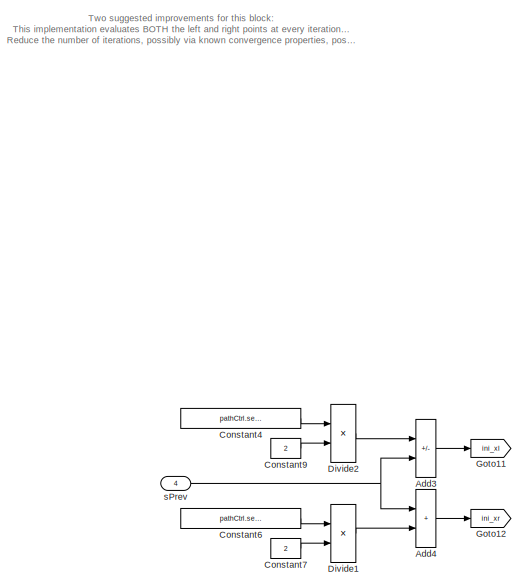
[diagram: dummySpool/Subsystem/xcurrent/pathFollowingController/courseFollow/GoldenSectionPathSearch/GoldenSectionSimulink - part 1/2, left side, full height]
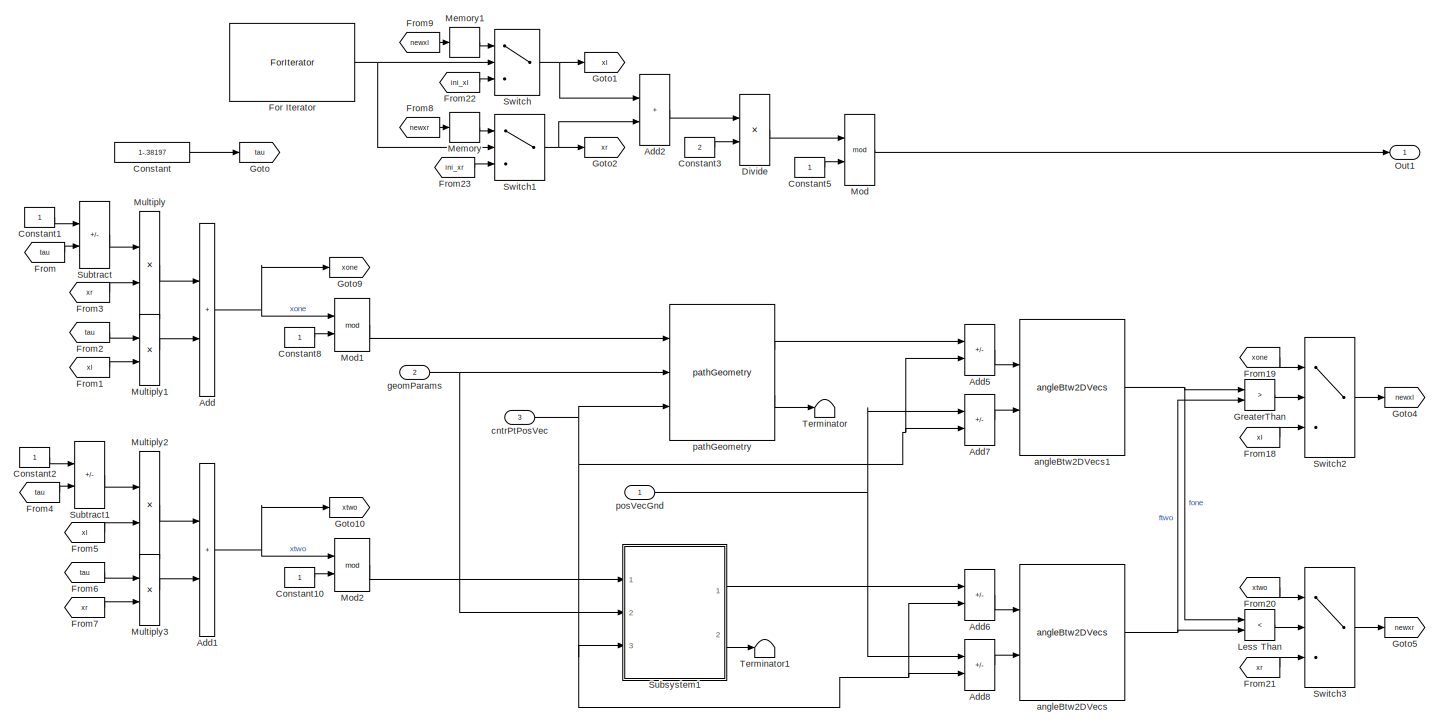
[diagram: dummySpool/Subsystem/xcurrent/pathFollowingController/courseFollow/GoldenSectionPathSearch/GoldenSectionSimulink - part 2/2, center side, full height]
BLOCK [SubSystem] dummySpool/Subsystem/xcurrent/pathFollowingController/courseFollow/GoldenSectionPathSearch/GoldenSectionSimulink
  Ports = [4, 1]
  RequestExecContextInheritance = off
BLOCK [Sum] dummySpool/Subsystem/xcurrent/pathFollowingController/courseFollow/GoldenSectionPathSearch/GoldenSectionSimulink/Add
  IconShape = rectangular
  Ports = [2, 1]
BLOCK [Sum] dummySpool/Subsystem/xcurrent/pathFollowingController/courseFollow/GoldenSectionPathSearch/GoldenSectionSimulink/Add1
  IconShape = rectangular
  Ports = [2, 1]
BLOCK [Sum] dummySpool/Subsystem/xcurrent/pathFollowingController/courseFollow/GoldenSectionPathSearch/GoldenSectionSimulink/Add2
  IconShape = rectangular
  Ports = [2, 1]
BLOCK [Sum] dummySpool/Subsystem/xcurrent/pathFollowingController/courseFollow/GoldenSectionPathSearch/GoldenSectionSimulink/Add3
  IconShape = rectangular
  Inputs = -+
  Ports = [2, 1]
BLOCK [Sum] dummySpool/Subsystem/xcurrent/pathFollowingController/courseFollow/GoldenSectionPathSearch/GoldenSectionSimulink/Add4
  IconShape = rectangular
  Ports = [2, 1]
BLOCK [Sum] dummySpool/Subsystem/xcurrent/pathFollowingController/courseFollow/GoldenSectionPathSearch/GoldenSectionSimulink/Add5
  IconShape = rectangular
  Inputs = +-
  Ports = [2, 1]
BLOCK [Sum] dummySpool/Subsystem/xcurrent/pathFollowingController/courseFollow/GoldenSectionPathSearch/GoldenSectionSimulink/Add6
  IconShape = rectangular
  Inputs = +-
  Ports = [2, 1]
BLOCK [Sum] dummySpool/Subsystem/xcurrent/pathFollowingController/courseFollow/GoldenSectionPathSearch/GoldenSectionSimulink/Add7
  IconShape = rectangular
  Inputs = +-
  Ports = [2, 1]
BLOCK [Sum] dummySpool/Subsystem/xcurrent/pathFollowingController/courseFollow/GoldenSectionPathSearch/GoldenSectionSimulink/Add8
  IconShape = rectangular
  Inputs = +-
  Ports = [2, 1]
BLOCK [Constant] dummySpool/Subsystem/xcurrent/pathFollowingController/courseFollow/GoldenSectionPathSearch/GoldenSectionSimulink/Constant
  Value = 1-.38197
BLOCK [Constant] dummySpool/Subsystem/xcurrent/pathFollowingController/courseFollow/GoldenSectionPathSearch/GoldenSectionSimulink/Constant1
BLOCK [Constant] dummySpool/Subsystem/xcurrent/pathFollowingController/courseFollow/GoldenSectionPathSearch/GoldenSectionSimulink/Constant10
BLOCK [Constant] dummySpool/Subsystem/xcurrent/pathFollowingController/courseFollow/GoldenSectionPathSearch/GoldenSectionSimulink/Constant2
BLOCK [Constant] dummySpool/Subsystem/xcurrent/pathFollowingController/courseFollow/GoldenSectionPathSearch/GoldenSectionSimulink/Constant3
  Value = 2
BLOCK [Constant] dummySpool/Subsystem/xcurrent/pathFollowingController/courseFollow/GoldenSectionPathSearch/GoldenSectionSimulink/Constant4
  Value = pathCtrl.searchSize.Value
BLOCK [Constant] dummySpool/Subsystem/xcurrent/pathFollowingController/courseFollow/GoldenSectionPathSearch/GoldenSectionSimulink/Constant5
BLOCK [Constant] dummySpool/Subsystem/xcurrent/pathFollowingController/courseFollow/GoldenSectionPathSearch/GoldenSectionSimulink/Constant6
  Value = pathCtrl.searchSize.Value
BLOCK [Constant] dummySpool/Subsystem/xcurrent/pathFollowingController/courseFollow/GoldenSectionPathSearch/GoldenSectionSimulink/Constant7
  Value = 2
BLOCK [Constant] dummySpool/Subsystem/xcurrent/pathFollowingController/courseFollow/GoldenSectionPathSearch/GoldenSectionSimulink/Constant8
BLOCK [Constant] dummySpool/Subsystem/xcurrent/pathFollowingController/courseFollow/GoldenSectionPathSearch/GoldenSectionSimulink/Constant9
  Value = 2
BLOCK [Product] dummySpool/Subsystem/xcurrent/pathFollowingController/courseFollow/GoldenSectionPathSearch/GoldenSectionSimulink/Divide
  Inputs = */
  Ports = [2, 1]
BLOCK [Product] dummySpool/Subsystem/xcurrent/pathFollowingController/courseFollow/GoldenSectionPathSearch/GoldenSectionSimulink/Divide1
  Inputs = */
  Ports = [2, 1]
BLOCK [Product] dummySpool/Subsystem/xcurrent/pathFollowingController/courseFollow/GoldenSectionPathSearch/GoldenSectionSimulink/Divide2
  Inputs = */
  Ports = [2, 1]
BLOCK [ForIterator] dummySpool/Subsystem/xcurrent/pathFollowingController/courseFollow/GoldenSectionPathSearch/GoldenSectionSimulink/For Iterator
  IterationLimit = 25
  Ports = [0, 1]
BLOCK [From] dummySpool/Subsystem/xcurrent/pathFollowingController/courseFollow/GoldenSectionPathSearch/GoldenSectionSimulink/From
  GotoTag = tau
BLOCK [From] dummySpool/Subsystem/xcurrent/pathFollowingController/courseFollow/GoldenSectionPathSearch/GoldenSectionSimulink/From1
  GotoTag = xl
BLOCK [From] dummySpool/Subsystem/xcurrent/pathFollowingController/courseFollow/GoldenSectionPathSearch/GoldenSectionSimulink/From18
  GotoTag = xl
BLOCK [From] dummySpool/Subsystem/xcurrent/pathFollowingController/courseFollow/GoldenSectionPathSearch/GoldenSectionSimulink/From19
  GotoTag = xone
BLOCK [From] dummySpool/Subsystem/xcurrent/pathFollowingController/courseFollow/GoldenSectionPathSearch/GoldenSectionSimulink/From2
  GotoTag = tau
BLOCK [From] dummySpool/Subsystem/xcurrent/pathFollowingController/courseFollow/GoldenSectionPathSearch/GoldenSectionSimulink/From20
  GotoTag = xtwo
BLOCK [From] dummySpool/Subsystem/xcurrent/pathFollowingController/courseFollow/GoldenSectionPathSearch/GoldenSectionSimulink/From21
  GotoTag = xr
BLOCK [From] dummySpool/Subsystem/xcurrent/pathFollowingController/courseFollow/GoldenSectionPathSearch/GoldenSectionSimulink/From22
  GotoTag = ini_xl
BLOCK [From] dummySpool/Subsystem/xcurrent/pathFollowingController/courseFollow/GoldenSectionPathSearch/GoldenSectionSimulink/From23
  GotoTag = ini_xr
BLOCK [From] dummySpool/Subsystem/xcurrent/pathFollowingController/courseFollow/GoldenSectionPathSearch/GoldenSectionSimulink/From3
  GotoTag = xr
BLOCK [From] dummySpool/Subsystem/xcurrent/pathFollowingController/courseFollow/GoldenSectionPathSearch/GoldenSectionSimulink/From4
  GotoTag = tau
BLOCK [From] dummySpool/Subsystem/xcurrent/pathFollowingController/courseFollow/GoldenSectionPathSearch/GoldenSectionSimulink/From5
  GotoTag = xl
BLOCK [From] dummySpool/Subsystem/xcurrent/pathFollowingController/courseFollow/GoldenSectionPathSearch/GoldenSectionSimulink/From6
  GotoTag = tau
BLOCK [From] dummySpool/Subsystem/xcurrent/pathFollowingController/courseFollow/GoldenSectionPathSearch/GoldenSectionSimulink/From7
  GotoTag = xr
BLOCK [From] dummySpool/Subsystem/xcurrent/pathFollowingController/courseFollow/GoldenSectionPathSearch/GoldenSectionSimulink/From8
  GotoTag = newxr
BLOCK [From] dummySpool/Subsystem/xcurrent/pathFollowingController/courseFollow/GoldenSectionPathSearch/GoldenSectionSimulink/From9
  GotoTag = newxl
BLOCK [Goto] dummySpool/Subsystem/xcurrent/pathFollowingController/courseFollow/GoldenSectionPathSearch/GoldenSectionSimulink/Goto
  GotoTag = tau
BLOCK [Goto] dummySpool/Subsystem/xcurrent/pathFollowingController/courseFollow/GoldenSectionPathSearch/GoldenSectionSimulink/Goto1
  GotoTag = xl
BLOCK [Goto] dummySpool/Subsystem/xcurrent/pathFollowingController/courseFollow/GoldenSectionPathSearch/GoldenSectionSimulink/Goto10
  GotoTag = xtwo
BLOCK [Goto] dummySpool/Subsystem/xcurrent/pathFollowingController/courseFollow/GoldenSectionPathSearch/GoldenSectionSimulink/Goto11
  GotoTag = ini_xl
BLOCK [Goto] dummySpool/Subsystem/xcurrent/pathFollowingController/courseFollow/GoldenSectionPathSearch/GoldenSectionSimulink/Goto12
  GotoTag = ini_xr
BLOCK [Goto] dummySpool/Subsystem/xcurrent/pathFollowingController/courseFollow/GoldenSectionPathSearch/GoldenSectionSimulink/Goto2
  GotoTag = xr
BLOCK [Goto] dummySpool/Subsystem/xcurrent/pathFollowingController/courseFollow/GoldenSectionPathSearch/GoldenSectionSimulink/Goto4
  GotoTag = newxl
BLOCK [Goto] dummySpool/Subsystem/xcurrent/pathFollowingController/courseFollow/GoldenSectionPathSearch/GoldenSectionSimulink/Goto5
  GotoTag = newxr
BLOCK [Goto] dummySpool/Subsystem/xcurrent/pathFollowingController/courseFollow/GoldenSectionPathSearch/GoldenSectionSimulink/Goto9
  GotoTag = xone
BLOCK [RelationalOperator] dummySpool/Subsystem/xcurrent/pathFollowingController/courseFollow/GoldenSectionPathSearch/GoldenSectionSimulink/GreaterThan
  InputSameDT = off
  Operator = >
  OutDataTypeStr = boolean
  Ports = [2, 1]
  RndMeth = Simplest
BLOCK [RelationalOperator] dummySpool/Subsystem/xcurrent/pathFollowingController/courseFollow/GoldenSectionPathSearch/GoldenSectionSimulink/Less Than
  InputSameDT = off
  Operator = <
  OutDataTypeStr = boolean
  Ports = [2, 1]
  RndMeth = Simplest
BLOCK [Memory] dummySpool/Subsystem/xcurrent/pathFollowingController/courseFollow/GoldenSectionPathSearch/GoldenSectionSimulink/Memory
  InheritSampleTime = on
BLOCK [Memory] dummySpool/Subsystem/xcurrent/pathFollowingController/courseFollow/GoldenSectionPathSearch/GoldenSectionSimulink/Memory1
  InheritSampleTime = on
BLOCK [Math] dummySpool/Subsystem/xcurrent/pathFollowingController/courseFollow/GoldenSectionPathSearch/GoldenSectionSimulink/Mod
  Operator = mod
  Ports = [2, 1]
  SignedPower = on
BLOCK [Math] dummySpool/Subsystem/xcurrent/pathFollowingController/courseFollow/GoldenSectionPathSearch/GoldenSectionSimulink/Mod1
  Operator = mod
  Ports = [2, 1]
  SignedPower = on
BLOCK [Math] dummySpool/Subsystem/xcurrent/pathFollowingController/courseFollow/GoldenSectionPathSearch/GoldenSectionSimulink/Mod2
  Operator = mod
  Ports = [2, 1]
  SignedPower = on
BLOCK [Product] dummySpool/Subsystem/xcurrent/pathFollowingController/courseFollow/GoldenSectionPathSearch/GoldenSectionSimulink/Multiply
  Ports = [2, 1]
BLOCK [Product] dummySpool/Subsystem/xcurrent/pathFollowingController/courseFollow/GoldenSectionPathSearch/GoldenSectionSimulink/Multiply1
  Ports = [2, 1]
BLOCK [Product] dummySpool/Subsystem/xcurrent/pathFollowingController/courseFollow/GoldenSectionPathSearch/GoldenSectionSimulink/Multiply2
  Ports = [2, 1]
BLOCK [Product] dummySpool/Subsystem/xcurrent/pathFollowingController/courseFollow/GoldenSectionPathSearch/GoldenSectionSimulink/Multiply3
  Ports = [2, 1]
BLOCK [Outport] dummySpool/Subsystem/xcurrent/pathFollowingController/courseFollow/GoldenSectionPathSearch/GoldenSectionSimulink/Out1
BLOCK [SubSystem] dummySpool/Subsystem/xcurrent/pathFollowingController/courseFollow/GoldenSectionPathSearch/GoldenSectionSimulink/Subsystem1
  Ports = [3, 2]
  RequestExecContextInheritance = off
BLOCK [Inport] dummySpool/Subsystem/xcurrent/pathFollowingController/courseFollow/GoldenSectionPathSearch/GoldenSectionSimulink/Subsystem1/In1
BLOCK [Inport] dummySpool/Subsystem/xcurrent/pathFollowingController/courseFollow/GoldenSectionPathSearch/GoldenSectionSimulink/Subsystem1/In2
  Port = 2
BLOCK [Inport] dummySpool/Subsystem/xcurrent/pathFollowingController/courseFollow/GoldenSectionPathSearch/GoldenSectionSimulink/Subsystem1/In3
  Port = 3
BLOCK [Outport] dummySpool/Subsystem/xcurrent/pathFollowingController/courseFollow/GoldenSectionPathSearch/GoldenSectionSimulink/Subsystem1/Out1
  VectorParamsAs1DForOutWhenUnconnected = off
BLOCK [Outport] dummySpool/Subsystem/xcurrent/pathFollowingController/courseFollow/GoldenSectionPathSearch/GoldenSectionSimulink/Subsystem1/Out2
  Port = 2
  VectorParamsAs1DForOutWhenUnconnected = off
BLOCK [Reference] dummySpool/Subsystem/xcurrent/pathFollowingController/courseFollow/GoldenSectionPathSearch/GoldenSectionSimulink/Subsystem1/pathGeometry  REF=pathGeometry_ul/pathGeometry
  Ports = [3, 2]
  SourceBlock = pathGeometry_ul/pathGeometry
  SourceType = SubSystem
BLOCK [Sum] dummySpool/Subsystem/xcurrent/pathFollowingController/courseFollow/GoldenSectionPathSearch/GoldenSectionSimulink/Subtract
  IconShape = rectangular
  Inputs = +-
  Ports = [2, 1]
BLOCK [Sum] dummySpool/Subsystem/xcurrent/pathFollowingController/courseFollow/GoldenSectionPathSearch/GoldenSectionSimulink/Subtract1
  IconShape = rectangular
  Inputs = +-
  Ports = [2, 1]
BLOCK [Switch] dummySpool/Subsystem/xcurrent/pathFollowingController/courseFollow/GoldenSectionPathSearch/GoldenSectionSimulink/Switch
  Criteria = u2 > Threshold
  InputSameDT = off
  SaturateOnIntegerOverflow = off
  Threshold = 1
BLOCK [Switch] dummySpool/Subsystem/xcurrent/pathFollowingController/courseFollow/GoldenSectionPathSearch/GoldenSectionSimulink/Switch1
  Criteria = u2 > Threshold
  InputSameDT = off
  SaturateOnIntegerOverflow = off
  Threshold = 1
BLOCK [Switch] dummySpool/Subsystem/xcurrent/pathFollowingController/courseFollow/GoldenSectionPathSearch/GoldenSectionSimulink/Switch2
  Criteria = u2 > Threshold
  InputSameDT = off
  SaturateOnIntegerOverflow = off
BLOCK [Switch] dummySpool/Subsystem/xcurrent/pathFollowingController/courseFollow/GoldenSectionPathSearch/GoldenSectionSimulink/Switch3
  Criteria = u2 > Threshold
  InputSameDT = off
  SaturateOnIntegerOverflow = off
BLOCK [Terminator] dummySpool/Subsystem/xcurrent/pathFollowingController/courseFollow/GoldenSectionPathSearch/GoldenSectionSimulink/Terminator
BLOCK [Terminator] dummySpool/Subsystem/xcurrent/pathFollowingController/courseFollow/GoldenSectionPathSearch/GoldenSectionSimulink/Terminator1
BLOCK [Reference] dummySpool/Subsystem/xcurrent/pathFollowingController/courseFollow/GoldenSectionPathSearch/GoldenSectionSimulink/angleBtw2DVecs  REF=angleBtw2Vecs_ul/angleBtw2DVecs
  Ports = [2, 1]
  SourceBlock = angleBtw2Vecs_ul/angleBtw2DVecs
  SourceType = SubSystem
BLOCK [Reference] dummySpool/Subsystem/xcurrent/pathFollowingController/courseFollow/GoldenSectionPathSearch/GoldenSectionSimulink/angleBtw2DVecs1  REF=angleBtw2Vecs_ul/angleBtw2DVecs
  Ports = [2, 1]
  SourceBlock = angleBtw2Vecs_ul/angleBtw2DVecs
  SourceType = SubSystem
BLOCK [Inport] dummySpool/Subsystem/xcurrent/pathFollowingController/courseFollow/GoldenSectionPathSearch/GoldenSectionSimulink/cntrPtPosVec
  Port = 3
BLOCK [Inport] dummySpool/Subsystem/xcurrent/pathFollowingController/courseFollow/GoldenSectionPathSearch/GoldenSectionSimulink/geomParams
  Port = 2
BLOCK [Reference] dummySpool/Subsystem/xcurrent/pathFollowingController/courseFollow/GoldenSectionPathSearch/GoldenSectionSimulink/pathGeometry  REF=pathGeometry_ul/pathGeometry
  Ports = [3, 2]
  SourceBlock = pathGeometry_ul/pathGeometry
  SourceType = SubSystem
BLOCK [Inport] dummySpool/Subsystem/xcurrent/pathFollowingController/courseFollow/GoldenSectionPathSearch/GoldenSectionSimulink/posVecGnd
BLOCK [Inport] dummySpool/Subsystem/xcurrent/pathFollowingController/courseFollow/GoldenSectionPathSearch/GoldenSectionSimulink/sPrev
  Port = 4
BLOCK [Goto] dummySpool/Subsystem/xcurrent/pathFollowingController/courseFollow/GoldenSectionPathSearch/Goto1
  Commented = on
  GotoTag = sStar
BLOCK [Goto] dummySpool/Subsystem/xcurrent/pathFollowingController/courseFollow/GoldenSectionPathSearch/Goto13
  GotoTag = geomParams
BLOCK [Goto] dummySpool/Subsystem/xcurrent/pathFollowingController/courseFollow/GoldenSectionPathSearch/Goto14
  GotoTag = sStar
BLOCK [Goto] dummySpool/Subsystem/xcurrent/pathFollowingController/courseFollow/GoldenSectionPathSearch/Goto3
  GotoTag = pos
BLOCK [Goto] dummySpool/Subsystem/xcurrent/pathFollowingController/courseFollow/GoldenSectionPathSearch/Goto6
  GotoTag = pathCntr
BLOCK [Goto] dummySpool/Subsystem/xcurrent/pathFollowingController/courseFollow/GoldenSectionPathSearch/Goto8
  GotoTag = sPrev
BLOCK [Inport] dummySpool/Subsystem/xcurrent/pathFollowingController/courseFollow/GoldenSectionPathSearch/currentPos
  Port = 3
BLOCK [Inport] dummySpool/Subsystem/xcurrent/pathFollowingController/courseFollow/GoldenSectionPathSearch/lastKnownS
BLOCK [Inport] dummySpool/Subsystem/xcurrent/pathFollowingController/courseFollow/GoldenSectionPathSearch/pathCntr
  Port = 4
BLOCK [Inport] dummySpool/Subsystem/xcurrent/pathFollowingController/courseFollow/GoldenSectionPathSearch/pathParams
  Port = 2
BLOCK [Outport] dummySpool/Subsystem/xcurrent/pathFollowingController/courseFollow/GoldenSectionPathSearch/sStar
  InitialOutput = pathCtrl.initPathVar.Value
  VectorParamsAs1DForOutWhenUnconnected = off
BLOCK [Goto] dummySpool/Subsystem/xcurrent/pathFollowingController/courseFollow/Goto10
  GotoTag = tanVecPrj
BLOCK [Goto] dummySpool/Subsystem/xcurrent/pathFollowingController/courseFollow/Goto11
  GotoTag = perpVecPrj
BLOCK [Goto] dummySpool/Subsystem/xcurrent/pathFollowingController/courseFollow/Goto2
  GotoTag = pathPosVecGnd
BLOCK [Goto] dummySpool/Subsystem/xcurrent/pathFollowingController/courseFollow/Goto4
  GotoTag = tanVecGnd
BLOCK [Goto] dummySpool/Subsystem/xcurrent/pathFollowingController/courseFollow/Goto5
  GotoTag = pathSphereCntr
BLOCK [Goto] dummySpool/Subsystem/xcurrent/pathFollowingController/courseFollow/Goto6
  GotoTag = currentPathVar
BLOCK [Goto] dummySpool/Subsystem/xcurrent/pathFollowingController/courseFollow/Goto7
  GotoTag = perpVecGnd
BLOCK [Goto] dummySpool/Subsystem/xcurrent/pathFollowingController/courseFollow/Goto8
  GotoTag = vhclPosVecGnd
BLOCK [Goto] dummySpool/Subsystem/xcurrent/pathFollowingController/courseFollow/Goto9
  GotoTag = cntrlAng
BLOCK [SubSystem] dummySpool/Subsystem/xcurrent/pathFollowingController/courseFollow/Overwrite Radius
  Ports = [3, 1]
  RequestExecContextInheritance = off
BLOCK [Sum] dummySpool/Subsystem/xcurrent/pathFollowingController/courseFollow/Overwrite Radius/Add
  IconShape = rectangular
  Inputs = +-
  Ports = [2, 1]
BLOCK [Assignment] dummySpool/Subsystem/xcurrent/pathFollowingController/courseFollow/Overwrite Radius/Assignment
  DiagnosticForDimensions = Warning
  IndexOptions = Index vector (dialog),Assign all
  Indices = 5,5
  NumberOfDimensions = 2
  OutputSizes = 1,1
  Ports = [2, 1]
BLOCK [DotProduct] dummySpool/Subsystem/xcurrent/pathFollowingController/courseFollow/Overwrite Radius/Dot Product
  OutDataTypeStr = Inherit: Inherit via internal rule
BLOCK [Sqrt] dummySpool/Subsystem/xcurrent/pathFollowingController/courseFollow/Overwrite Radius/Sqrt
BLOCK [Inport] dummySpool/Subsystem/xcurrent/pathFollowingController/courseFollow/Overwrite Radius/gndStnPos
  Port = 3
BLOCK [Inport] dummySpool/Subsystem/xcurrent/pathFollowingController/courseFollow/Overwrite Radius/pathParamsIn
BLOCK [Outport] dummySpool/Subsystem/xcurrent/pathFollowingController/courseFollow/Overwrite Radius/pathParamsOut
  VectorParamsAs1DForOutWhenUnconnected = off
BLOCK [Inport] dummySpool/Subsystem/xcurrent/pathFollowingController/courseFollow/Overwrite Radius/positionVec
  Port = 2
BLOCK [Reshape] dummySpool/Subsystem/xcurrent/pathFollowingController/courseFollow/Reshape
  OutputDimensionality = Column vector (2-D)
  Ports = [1, 1]
BLOCK [Reference] dummySpool/Subsystem/xcurrent/pathFollowingController/courseFollow/TanFrameProjection  REF=tanFrameProjection_ul/TanFrameProjection
  Ports = [3, 1]
  SourceBlock = tanFrameProjection_ul/TanFrameProjection
  SourceType = SubSystem
BLOCK [Reference] dummySpool/Subsystem/xcurrent/pathFollowingController/courseFollow/TanFrameProjection1  REF=tanFrameProjection_ul/TanFrameProjection
  Ports = [3, 1]
  SourceBlock = tanFrameProjection_ul/TanFrameProjection
  SourceType = SubSystem
BLOCK [UnitDelay] dummySpool/Subsystem/xcurrent/pathFollowingController/courseFollow/Unit Delay
  HasFrameUpgradeWarning = on
  SampleTime = -1
BLOCK [Reference] dummySpool/Subsystem/xcurrent/pathFollowingController/courseFollow/VectorNormalizer1  REF=vectorNormalizer_ul/VectorNormalizer

  Ports = [1, 1]
  SourceBlock = vectorNormalizer_ul/VectorNormalizer
  SourceType = SubSystem
BLOCK [Reference] dummySpool/Subsystem/xcurrent/pathFollowingController/courseFollow/VectorNormalizer2  REF=vectorNormalizer_ul/VectorNormalizer

  Ports = [1, 1]
  SourceBlock = vectorNormalizer_ul/VectorNormalizer
  SourceType = SubSystem
BLOCK [Reference] dummySpool/Subsystem/xcurrent/pathFollowingController/courseFollow/angleBtw2Vecs  REF=angleBtw2Vecs_ul/angleBtw2DVecs
  Ports = [2, 1]
  SourceBlock = angleBtw2Vecs_ul/angleBtw2DVecs
  SourceType = SubSystem
BLOCK [Outport] dummySpool/Subsystem/xcurrent/pathFollowingController/courseFollow/centralAngle
  Port = 3
  VectorParamsAs1DForOutWhenUnconnected = off
BLOCK [Reference] dummySpool/Subsystem/xcurrent/pathFollowingController/courseFollow/find closest path parameter  REF=findClosestPointOnPath_new/find closest path parameter
  Commented = on
  Ports = [4, 1]
  SourceBlock = findClosestPointOnPath_new/find closest path parameter
BLOCK [Inport] dummySpool/Subsystem/xcurrent/pathFollowingController/courseFollow/pathCntrPosVecGnd
  Port = 3
BLOCK [Reference] dummySpool/Subsystem/xcurrent/pathFollowingController/courseFollow/pathGeometry  REF=pathGeometry_ul/pathGeometry
  Ports = [3, 2]
  SourceBlock = pathGeometry_ul/pathGeometry
  SourceType = SubSystem
BLOCK [Inport] dummySpool/Subsystem/xcurrent/pathFollowingController/courseFollow/pathParams
  Port = 2
BLOCK [Outport] dummySpool/Subsystem/xcurrent/pathFollowingController/courseFollow/sStar
  Port = 2
  VectorParamsAs1DForOutWhenUnconnected = off
BLOCK [SubSystem] dummySpool/Subsystem/xcurrent/pathFollowingController/courseFollow/saturatedWeightedAverage
  Ports = [3, 1]
  RequestExecContextInheritance = off
BLOCK [Sum] dummySpool/Subsystem/xcurrent/pathFollowingController/courseFollow/saturatedWeightedAverage/Add
  Commented = on
  IconShape = rectangular
  Inputs = +-
  Ports = [2, 1]
BLOCK [Sum] dummySpool/Subsystem/xcurrent/pathFollowingController/courseFollow/saturatedWeightedAverage/Add1
  Commented = on
  IconShape = rectangular
  Ports = [2, 1]
BLOCK [Sum] dummySpool/Subsystem/xcurrent/pathFollowingController/courseFollow/saturatedWeightedAverage/Add2
  IconShape = rectangular
  Inputs = +-
  Ports = [2, 1]
BLOCK [Sum] dummySpool/Subsystem/xcurrent/pathFollowingController/courseFollow/saturatedWeightedAverage/Add3
  IconShape = rectangular
  Ports = [2, 1]
BLOCK [Constant] dummySpool/Subsystem/xcurrent/pathFollowingController/courseFollow/saturatedWeightedAverage/Constant
  Value = error_upper_lim
BLOCK [Constant] dummySpool/Subsystem/xcurrent/pathFollowingController/courseFollow/saturatedWeightedAverage/Constant1
  Commented = on
  Value = a
BLOCK [Constant] dummySpool/Subsystem/xcurrent/pathFollowingController/courseFollow/saturatedWeightedAverage/Constant2
  Commented = on
BLOCK [Constant] dummySpool/Subsystem/xcurrent/pathFollowingController/courseFollow/saturatedWeightedAverage/Constant4
BLOCK [Product] dummySpool/Subsystem/xcurrent/pathFollowingController/courseFollow/saturatedWeightedAverage/Divide
  Inputs = */
  Ports = [2, 1]
BLOCK [Math] dummySpool/Subsystem/xcurrent/pathFollowingController/courseFollow/saturatedWeightedAverage/Exp
  Commented = on
  Ports = [1, 1]
  SignedPower = on
BLOCK [From] dummySpool/Subsystem/xcurrent/pathFollowingController/courseFollow/saturatedWeightedAverage/From
  Commented = on
  GotoTag = errorVar
BLOCK [From] dummySpool/Subsystem/xcurrent/pathFollowingController/courseFollow/saturatedWeightedAverage/From1
  Commented = on
  GotoTag = perpVec
BLOCK [From] dummySpool/Subsystem/xcurrent/pathFollowingController/courseFollow/saturatedWeightedAverage/From2
  Commented = on
  GotoTag = tangVec
BLOCK [From] dummySpool/Subsystem/xcurrent/pathFollowingController/courseFollow/saturatedWeightedAverage/From3
  GotoTag = errorVar
BLOCK [From] dummySpool/Subsystem/xcurrent/pathFollowingController/courseFollow/saturatedWeightedAverage/From4
  GotoTag = perpVector
BLOCK [From] dummySpool/Subsystem/xcurrent/pathFollowingController/courseFollow/saturatedWeightedAverage/From6
  GotoTag = tangVector
BLOCK [Gain] dummySpool/Subsystem/xcurrent/pathFollowingController/courseFollow/saturatedWeightedAverage/Gain
  Commented = on
  Gain = -1
BLOCK [Goto] dummySpool/Subsystem/xcurrent/pathFollowingController/courseFollow/saturatedWeightedAverage/Goto
  GotoTag = tangVector
BLOCK [Goto] dummySpool/Subsystem/xcurrent/pathFollowingController/courseFollow/saturatedWeightedAverage/Goto1
  GotoTag = errorVar
BLOCK [Goto] dummySpool/Subsystem/xcurrent/pathFollowingController/courseFollow/saturatedWeightedAverage/Goto2
  GotoTag = perpVector
BLOCK [Product] dummySpool/Subsystem/xcurrent/pathFollowingController/courseFollow/saturatedWeightedAverage/Multiply
  Commented = on
  Ports = [2, 1]
BLOCK [Product] dummySpool/Subsystem/xcurrent/pathFollowingController/courseFollow/saturatedWeightedAverage/Multiply1
  Commented = on
  Ports = [2, 1]
BLOCK [Product] dummySpool/Subsystem/xcurrent/pathFollowingController/courseFollow/saturatedWeightedAverage/Multiply2
  Commented = on
  Ports = [2, 1]
BLOCK [Product] dummySpool/Subsystem/xcurrent/pathFollowingController/courseFollow/saturatedWeightedAverage/Multiply3
  Ports = [2, 1]
BLOCK [Product] dummySpool/Subsystem/xcurrent/pathFollowingController/courseFollow/saturatedWeightedAverage/Multiply5
  Ports = [2, 1]
BLOCK [Saturate] dummySpool/Subsystem/xcurrent/pathFollowingController/courseFollow/saturatedWeightedAverage/Saturation
  LowerLimit = 0
  UpperLimit = 1
BLOCK [Inport] dummySpool/Subsystem/xcurrent/pathFollowingController/courseFollow/saturatedWeightedAverage/errorVar 
BLOCK [Inport] dummySpool/Subsystem/xcurrent/pathFollowingController/courseFollow/saturatedWeightedAverage/perpVector 
  Port = 3
BLOCK [Inport] dummySpool/Subsystem/xcurrent/pathFollowingController/courseFollow/saturatedWeightedAverage/tangVector
  Port = 2
BLOCK [Outport] dummySpool/Subsystem/xcurrent/pathFollowingController/courseFollow/saturatedWeightedAverage/velVectorDes 
  VectorParamsAs1DForOutWhenUnconnected = off
BLOCK [Outport] dummySpool/Subsystem/xcurrent/pathFollowingController/courseFollow/velVecDesGnd
  VectorParamsAs1DForOutWhenUnconnected = off
BLOCK [Inport] dummySpool/Subsystem/xcurrent/pathFollowingController/courseFollow/vhclPosVecGnd 
BLOCK [Reference] dummySpool/Subsystem/xcurrent/pathFollowingController/ctrlAllocMatrix3Comp  REF=ctrlAllocMatrix3Comp_cl/ctrlAllocMatrix3Comp
  Ports = [5, 1]
  SourceBlock = ctrlAllocMatrix3Comp_cl/ctrlAllocMatrix3Comp
BLOCK [Outport] dummySpool/Subsystem/xcurrent/pathFollowingController/ctrlBus
  OutDataTypeStr = Bus: fltCtrlBus
  VectorParamsAs1DForOutWhenUnconnected = off
BLOCK [SubSystem] dummySpool/Subsystem/xcurrent/pathFollowingController/desiredMoment
  AncestorBlock = setpointToOutput_cl/desiredMoment
  Ports = [6, 4]
  RequestExecContextInheritance = off
BLOCK [Sum] dummySpool/Subsystem/xcurrent/pathFollowingController/desiredMoment/Add
  IconShape = rectangular
  Inputs = +-
  Ports = [2, 1]
BLOCK [Sum] dummySpool/Subsystem/xcurrent/pathFollowingController/desiredMoment/Add1
  IconShape = rectangular
  Inputs = +-
  Ports = [2, 1]
BLOCK [Sum] dummySpool/Subsystem/xcurrent/pathFollowingController/desiredMoment/Add2
  IconShape = rectangular
  Inputs = +-
  Ports = [2, 1]
BLOCK [Demux] dummySpool/Subsystem/xcurrent/pathFollowingController/desiredMoment/Demux
  Outputs = 3
  Ports = [1, 3]
BLOCK [Reference] dummySpool/Subsystem/xcurrent/pathFollowingController/desiredMoment/EulerAngle2RotMat1  REF=eulAng2RotMat_ul/EulerAngle2RotMat
  Ports = [3, 2]
  SourceBlock = eulAng2RotMat_ul/EulerAngle2RotMat
  SourceType = SubSystem
BLOCK [From] dummySpool/Subsystem/xcurrent/pathFollowingController/desiredMoment/From
  GotoTag = body2gr
BLOCK [From] dummySpool/Subsystem/xcurrent/pathFollowingController/desiredMoment/From1
  GotoTag = tan2Gr
BLOCK [From] dummySpool/Subsystem/xcurrent/pathFollowingController/desiredMoment/From10
  GotoTag = gndStnPosVecGnd
BLOCK [From] dummySpool/Subsystem/xcurrent/pathFollowingController/desiredMoment/From11
  GotoTag = gndStnPosVecGnd
BLOCK [From] dummySpool/Subsystem/xcurrent/pathFollowingController/desiredMoment/From12
  GotoTag = velVecGnd
BLOCK [From] dummySpool/Subsystem/xcurrent/pathFollowingController/desiredMoment/From13
  GotoTag = tanRoll
BLOCK [From] dummySpool/Subsystem/xcurrent/pathFollowingController/desiredMoment/From14
  GotoTag = tanRollDes
BLOCK [From] dummySpool/Subsystem/xcurrent/pathFollowingController/desiredMoment/From15
  GotoTag = posVecGnd
BLOCK [From] dummySpool/Subsystem/xcurrent/pathFollowingController/desiredMoment/From16
  GotoTag = gndStnPosVecGnd
BLOCK [From] dummySpool/Subsystem/xcurrent/pathFollowingController/desiredMoment/From17
  GotoTag = flowVecGnd
BLOCK [From] dummySpool/Subsystem/xcurrent/pathFollowingController/desiredMoment/From18
  GotoTag = velVecGnd
BLOCK [From] dummySpool/Subsystem/xcurrent/pathFollowingController/desiredMoment/From19
  GotoTag = pitchMomentDes
BLOCK [From] dummySpool/Subsystem/xcurrent/pathFollowingController/desiredMoment/From2
  GotoTag = velAngDes
BLOCK [From] dummySpool/Subsystem/xcurrent/pathFollowingController/desiredMoment/From20
  GotoTag = aeroSideSlipAngle
BLOCK [From] dummySpool/Subsystem/xcurrent/pathFollowingController/desiredMoment/From3
  GotoTag = velAngle
BLOCK [From] dummySpool/Subsystem/xcurrent/pathFollowingController/desiredMoment/From4
  GotoTag = rollMomDes
BLOCK [From] dummySpool/Subsystem/xcurrent/pathFollowingController/desiredMoment/From5
  GotoTag = yawMomDes
BLOCK [From] dummySpool/Subsystem/xcurrent/pathFollowingController/desiredMoment/From6
  GotoTag = gr2body
BLOCK [From] dummySpool/Subsystem/xcurrent/pathFollowingController/desiredMoment/From7
  GotoTag = velVecDesGnd
BLOCK [From] dummySpool/Subsystem/xcurrent/pathFollowingController/desiredMoment/From8
  GotoTag = posVecGnd
BLOCK [From] dummySpool/Subsystem/xcurrent/pathFollowingController/desiredMoment/From9
  GotoTag = posVecGnd
BLOCK [Gain] dummySpool/Subsystem/xcurrent/pathFollowingController/desiredMoment/Gain1
  Gain = -1
BLOCK [Gain] dummySpool/Subsystem/xcurrent/pathFollowingController/desiredMoment/Gain2
  Gain = fltCtrl.yawMoment.kp.Value
BLOCK [Gain] dummySpool/Subsystem/xcurrent/pathFollowingController/desiredMoment/Gain3
  Gain = -1
BLOCK [Goto] dummySpool/Subsystem/xcurrent/pathFollowingController/desiredMoment/Goto
  GotoTag = posVecGnd
BLOCK [Goto] dummySpool/Subsystem/xcurrent/pathFollowingController/desiredMoment/Goto1
  GotoTag = flowVecGnd
BLOCK [Goto] dummySpool/Subsystem/xcurrent/pathFollowingController/desiredMoment/Goto10
  GotoTag = tanRoll
BLOCK [Goto] dummySpool/Subsystem/xcurrent/pathFollowingController/desiredMoment/Goto11
  GotoTag = tan2Gr
BLOCK [Goto] dummySpool/Subsystem/xcurrent/pathFollowingController/desiredMoment/Goto12
  GotoTag = rollMomDes
BLOCK [Goto] dummySpool/Subsystem/xcurrent/pathFollowingController/desiredMoment/Goto13
  GotoTag = yawMomDes
BLOCK [Goto] dummySpool/Subsystem/xcurrent/pathFollowingController/desiredMoment/Goto14
  GotoTag = pitchMomentDes
BLOCK [Goto] dummySpool/Subsystem/xcurrent/pathFollowingController/desiredMoment/Goto15
  GotoTag = aeroSideSlipAngle
BLOCK [Goto] dummySpool/Subsystem/xcurrent/pathFollowingController/desiredMoment/Goto2
  GotoTag = velVecGnd
BLOCK [Goto] dummySpool/Subsystem/xcurrent/pathFollowingController/desiredMoment/Goto3
  GotoTag = gndStnPosVecGnd
BLOCK [Goto] dummySpool/Subsystem/xcurrent/pathFollowingController/desiredMoment/Goto4
  GotoTag = velVecDesGnd
BLOCK [Goto] dummySpool/Subsystem/xcurrent/pathFollowingController/desiredMoment/Goto5
  GotoTag = body2gr
BLOCK [Goto] dummySpool/Subsystem/xcurrent/pathFollowingController/desiredMoment/Goto6
  GotoTag = gr2body
BLOCK [Goto] dummySpool/Subsystem/xcurrent/pathFollowingController/desiredMoment/Goto7
  GotoTag = velAngDes
BLOCK [Goto] dummySpool/Subsystem/xcurrent/pathFollowingController/desiredMoment/Goto8
  GotoTag = velAngle
BLOCK [Goto] dummySpool/Subsystem/xcurrent/pathFollowingController/desiredMoment/Goto9
  GotoTag = tanRollDes
BLOCK [Ground] dummySpool/Subsystem/xcurrent/pathFollowingController/desiredMoment/Ground
BLOCK [Product] dummySpool/Subsystem/xcurrent/pathFollowingController/desiredMoment/Matrix Multiply
  Multiplication = Matrix(*)
  Ports = [2, 1]
BLOCK [Sum] dummySpool/Subsystem/xcurrent/pathFollowingController/desiredMoment/Minus1
  IconShape = rectangular
  Inputs = +-
  Ports = [2, 1]
BLOCK [Mux] dummySpool/Subsystem/xcurrent/pathFollowingController/desiredMoment/Mux
  DisplayOption = bar
  Inputs = 3
  Ports = [3, 1]
BLOCK [Reference] dummySpool/Subsystem/xcurrent/pathFollowingController/desiredMoment/PID Controller1  REF=simulink/Continuous/PID Controller
  Ports = [1, 1]
  SourceBlock = simulink/Continuous/PID Controller
  SourceProductBaseCode = SL
  SourceType = PID 1dof
BLOCK [Gain] dummySpool/Subsystem/xcurrent/pathFollowingController/desiredMoment/Proportional Controller
  Gain = fltCtrl.tanRoll.kp.Value
BLOCK [SubSystem] dummySpool/Subsystem/xcurrent/pathFollowingController/desiredMoment/TangentRollCalculation
  Ports = [2, 1]
  RequestExecContextInheritance = off
BLOCK [Constant] dummySpool/Subsystem/xcurrent/pathFollowingController/desiredMoment/TangentRollCalculation/Constant1
  Value = pi/2
BLOCK [Constant] dummySpool/Subsystem/xcurrent/pathFollowingController/desiredMoment/TangentRollCalculation/Constant2
  Value = pi/2
BLOCK [Constant] dummySpool/Subsystem/xcurrent/pathFollowingController/desiredMoment/TangentRollCalculation/Constant3
  Value = [0 1 0]'
BLOCK [Constant] dummySpool/Subsystem/xcurrent/pathFollowingController/desiredMoment/TangentRollCalculation/Constant4
  Value = [0 0 1]'
BLOCK [Constant] dummySpool/Subsystem/xcurrent/pathFollowingController/desiredMoment/TangentRollCalculation/Constant5
  Value = [1 0 0]'
BLOCK [Constant] dummySpool/Subsystem/xcurrent/pathFollowingController/desiredMoment/TangentRollCalculation/Constant6
  Value = [0 0 1]'
BLOCK [Gain] dummySpool/Subsystem/xcurrent/pathFollowingController/desiredMoment/TangentRollCalculation/Gain
  Gain = -1
BLOCK [Product] dummySpool/Subsystem/xcurrent/pathFollowingController/desiredMoment/TangentRollCalculation/Matrix Multiply
  Multiplication = Matrix(*)
  Ports = [2, 1]
BLOCK [Product] dummySpool/Subsystem/xcurrent/pathFollowingController/desiredMoment/TangentRollCalculation/Matrix Multiply1
  Multiplication = Matrix(*)
  Ports = [2, 1]
BLOCK [Product] dummySpool/Subsystem/xcurrent/pathFollowingController/desiredMoment/TangentRollCalculation/Matrix Multiply2
  Multiplication = Matrix(*)
  Ports = [2, 1]
BLOCK [Product] dummySpool/Subsystem/xcurrent/pathFollowingController/desiredMoment/TangentRollCalculation/Matrix Multiply3
  Multiplication = Matrix(*)
  Ports = [2, 1]
BLOCK [Sum] dummySpool/Subsystem/xcurrent/pathFollowingController/desiredMoment/TangentRollCalculation/Subtract
  IconShape = rectangular
  Inputs = +-
  Ports = [2, 1]
BLOCK [Sum] dummySpool/Subsystem/xcurrent/pathFollowingController/desiredMoment/TangentRollCalculation/Subtract1
  IconShape = rectangular
  Inputs = +-
  Ports = [2, 1]
BLOCK [Terminator] dummySpool/Subsystem/xcurrent/pathFollowingController/desiredMoment/TangentRollCalculation/Terminator
BLOCK [Reference] dummySpool/Subsystem/xcurrent/pathFollowingController/desiredMoment/TangentRollCalculation/angleBtw2DVecs  REF=angleBtw2Vecs_ul/angleBtw2DVecs
  Ports = [2, 1]
  SourceBlock = angleBtw2Vecs_ul/angleBtw2DVecs
  SourceType = SubSystem
BLOCK [SubSystem] dummySpool/Subsystem/xcurrent/pathFollowingController/desiredMoment/TangentRollCalculation/angleBtw2DVecs1
  Ports = [2, 1]
  RequestExecContextInheritance = off
BLOCK [Abs] dummySpool/Subsystem/xcurrent/pathFollowingController/desiredMoment/TangentRollCalculation/angleBtw2DVecs1/Abs
  SaturateOnIntegerOverflow = off
BLOCK [Trigonometry] dummySpool/Subsystem/xcurrent/pathFollowingController/desiredMoment/TangentRollCalculation/angleBtw2DVecs1/Atan2
  Operator = atan2
  Ports = [2, 1]
BLOCK [Reference] dummySpool/Subsystem/xcurrent/pathFollowingController/desiredMoment/TangentRollCalculation/angleBtw2DVecs1/Cross Product  REF=vrlib/Utilities/Cross Product
  Ports = [2, 1]
  SourceBlock = vrlib/Utilities/Cross Product
  SourceProductBaseCode = VR
  SourceType = Cross Product
BLOCK [DotProduct] dummySpool/Subsystem/xcurrent/pathFollowingController/desiredMoment/TangentRollCalculation/angleBtw2DVecs1/Dot Product
  OutDataTypeStr = Inherit: Inherit via internal rule
BLOCK [DotProduct] dummySpool/Subsystem/xcurrent/pathFollowingController/desiredMoment/TangentRollCalculation/angleBtw2DVecs1/Dot Product1
  OutDataTypeStr = Inherit: Inherit via internal rule
BLOCK [Sqrt] dummySpool/Subsystem/xcurrent/pathFollowingController/desiredMoment/TangentRollCalculation/angleBtw2DVecs1/Sqrt
BLOCK [Outport] dummySpool/Subsystem/xcurrent/pathFollowingController/desiredMoment/TangentRollCalculation/angleBtw2DVecs1/angle
  VectorParamsAs1DForOutWhenUnconnected = off
BLOCK [Inport] dummySpool/Subsystem/xcurrent/pathFollowingController/desiredMoment/TangentRollCalculation/angleBtw2DVecs1/vec1
BLOCK [Inport] dummySpool/Subsystem/xcurrent/pathFollowingController/desiredMoment/TangentRollCalculation/angleBtw2DVecs1/vec2
  Port = 2
BLOCK [Inport] dummySpool/Subsystem/xcurrent/pathFollowingController/desiredMoment/TangentRollCalculation/bdy2Inert
  Port = 2
BLOCK [Inport] dummySpool/Subsystem/xcurrent/pathFollowingController/desiredMoment/TangentRollCalculation/tan2Gr
BLOCK [Outport] dummySpool/Subsystem/xcurrent/pathFollowingController/desiredMoment/TangentRollCalculation/tanRoll
  VectorParamsAs1DForOutWhenUnconnected = off
BLOCK [Terminator] dummySpool/Subsystem/xcurrent/pathFollowingController/desiredMoment/Terminator
BLOCK [Terminator] dummySpool/Subsystem/xcurrent/pathFollowingController/desiredMoment/Terminator1
BLOCK [SubSystem] dummySpool/Subsystem/xcurrent/pathFollowingController/desiredMoment/Wrap Correction
  Ports = [1, 1]
  RequestExecContextInheritance = off
BLOCK [Sum] dummySpool/Subsystem/xcurrent/pathFollowingController/desiredMoment/Wrap Correction/Add1
  IconShape = rectangular
  Inputs = +-
  Ports = [2, 1]
BLOCK [Sum] dummySpool/Subsystem/xcurrent/pathFollowingController/desiredMoment/Wrap Correction/Add2
  IconShape = rectangular
  Inputs = +-
  Ports = [2, 1]
BLOCK [Constant] dummySpool/Subsystem/xcurrent/pathFollowingController/desiredMoment/Wrap Correction/Constant1
  Value = pi
BLOCK [Constant] dummySpool/Subsystem/xcurrent/pathFollowingController/desiredMoment/Wrap Correction/Constant2
  Value = 2*pi
BLOCK [Constant] dummySpool/Subsystem/xcurrent/pathFollowingController/desiredMoment/Wrap Correction/Constant3
  Value = pi
BLOCK [Math] dummySpool/Subsystem/xcurrent/pathFollowingController/desiredMoment/Wrap Correction/Mod
  Operator = mod
  Ports = [2, 1]
  SignedPower = on
BLOCK [Inport] dummySpool/Subsystem/xcurrent/pathFollowingController/desiredMoment/Wrap Correction/u
BLOCK [Outport] dummySpool/Subsystem/xcurrent/pathFollowingController/desiredMoment/Wrap Correction/y
  VectorParamsAs1DForOutWhenUnconnected = off
BLOCK [Constant] dummySpool/Subsystem/xcurrent/pathFollowingController/desiredMoment/aeroSideSlipAngleDes
  Value = 0
BLOCK [Reference] dummySpool/Subsystem/xcurrent/pathFollowingController/desiredMoment/alphaBeta  REF=alphaBeta_ul/alphaBeta
  Ports = [1, 2]
  SourceBlock = alphaBeta_ul/alphaBeta
  SourceType = SubSystem
BLOCK [Outport] dummySpool/Subsystem/xcurrent/pathFollowingController/desiredMoment/betaErr
  Port = 4
BLOCK [Inport] dummySpool/Subsystem/xcurrent/pathFollowingController/desiredMoment/eulAng
  Port = 6
BLOCK [Reference] dummySpool/Subsystem/xcurrent/pathFollowingController/desiredMoment/filteredPIDController1  REF=filteredPIDController_ul/filteredPIDController
  Commented = on
  Ports = [1, 1]
  SourceBlock = filteredPIDController_ul/filteredPIDController
BLOCK [Inport] dummySpool/Subsystem/xcurrent/pathFollowingController/desiredMoment/flowVecGnd
  Port = 5
BLOCK [Reference] dummySpool/Subsystem/xcurrent/pathFollowingController/desiredMoment/gnd2TanRotation  REF=gnd2TanRotation_ul/gnd2TanRotation
  Ports = [2, 2]
  SourceBlock = gnd2TanRotation_ul/gnd2TanRotation
  SourceType = SubSystem
BLOCK [Inport] dummySpool/Subsystem/xcurrent/pathFollowingController/desiredMoment/gndStnPosVecGnd
  Port = 2
BLOCK [Saturate] dummySpool/Subsystem/xcurrent/pathFollowingController/desiredMoment/maxBank Saturation
  LowerLimit = pathCtrl.maxBank.lowerLimit.Value
  UpperLimit = pathCtrl.maxBank.upperLimit.Value
BLOCK [Outport] dummySpool/Subsystem/xcurrent/pathFollowingController/desiredMoment/momVecDes
  VectorParamsAs1DForOutWhenUnconnected = off
BLOCK [Inport] dummySpool/Subsystem/xcurrent/pathFollowingController/desiredMoment/posVecGnd
BLOCK [Outport] dummySpool/Subsystem/xcurrent/pathFollowingController/desiredMoment/tanRollErr
  Port = 3
BLOCK [Outport] dummySpool/Subsystem/xcurrent/pathFollowingController/desiredMoment/velAngErr
  Port = 2
BLOCK [Inport] dummySpool/Subsystem/xcurrent/pathFollowingController/desiredMoment/velVecDesGnd
  Port = 4
BLOCK [Inport] dummySpool/Subsystem/xcurrent/pathFollowingController/desiredMoment/velVecGnd
  Port = 3
BLOCK [Reference] dummySpool/Subsystem/xcurrent/pathFollowingController/desiredMoment/velocityAngle  REF=velocityAngle_ul/velocityAngle
  Ports = [3, 1]
  SourceBlock = velocityAngle_ul/velocityAngle
  SourceType = SubSystem
BLOCK [Reference] dummySpool/Subsystem/xcurrent/pathFollowingController/desiredMoment/velocityAngle1  REF=velocityAngle_ul/velocityAngle
  Ports = [3, 1]
  SourceBlock = velocityAngle_ul/velocityAngle
  SourceType = SubSystem
BLOCK [Inport] dummySpool/Subsystem/xcurrent/pathFollowingController/enable
  Port = 4
BLOCK [Inport] dummySpool/Subsystem/xcurrent/pathFollowingController/envBus
  OutDataTypeStr = Bus: envBus
  Port = 3
BLOCK [Inport] dummySpool/Subsystem/xcurrent/pathFollowingController/hiLvlCtrlBus
  OutDataTypeStr = Bus: hiLvlCtrlBus
  Port = 2
BLOCK [Inport] dummySpool/Subsystem/xcurrent/pathFollowingController/snsProcBus
  OutDataTypeStr = Bus: sensorsProcessingBus
BLOCK [Reference] dummySpool/Subsystem/xcurrent/pathFollowingControllerExpStateMachine  REF=pathFollowingControllerExpStateMachine_cl/pathFollowingControllerExpStateMachine
  Ports = [4, 1]
  SourceBlock = pathFollowingControllerExpStateMachine_cl/pathFollowingControllerExpStateMachine
BLOCK [Reference] dummySpool/Subsystem/xcurrent/periodicCtrlExpStateMachine  REF=periodicCtrlExpStateMachine/periodicCtrlExpStateMachine
  Ports = [4, 1]
  SourceBlock = periodicCtrlExpStateMachine/periodicCtrlExpStateMachine
BLOCK [Inport] dummySpool/Subsystem/xcurrent/snsProcBus
  OutDataTypeStr = Bus: sensorsProcessingBus
BLOCK [Reference] dummySpool/Subsystem2  REF=hiToLoElevationControllerExp/hiToLoElevationControllerExp/Subsystem
  Ports = [2, 2]
  SourceBlock = hiToLoElevationControllerExp/hiToLoElevationControllerExp/Subsystem
BLOCK [Terminator] dummySpool/Terminator
BLOCK [Terminator] dummySpool/Terminator1
BLOCK [Terminator] dummySpool/Terminator2
BLOCK [Outport] dummySpool/ctrlBus
  OutDataTypeStr = Bus: fltCtrlBus
  VectorParamsAs1DForOutWhenUnconnected = off
BLOCK [Inport] dummySpool/envBus
  OutDataTypeStr = Bus: envBus
  Port = 3
BLOCK [SubSystem] dummySpool/eucNorm
  Ports = [1, 1]
  RequestExecContextInheritance = off
BLOCK [DotProduct] dummySpool/eucNorm/Dot Product1
  OutDataTypeStr = Inherit: Inherit via internal rule
BLOCK [Inport] dummySpool/eucNorm/In1
BLOCK [Reshape] dummySpool/eucNorm/Reshape1
  Ports = [1, 1]
BLOCK [Sqrt] dummySpool/eucNorm/Sqrt
BLOCK [Outport] dummySpool/eucNorm/r
BLOCK [Reference] dummySpool/eucNorm2  REF=takeoffToLanding_cl/takeoffToLanding/eucNorm
  Ports = [1, 1]
  SourceBlock = takeoffToLanding_cl/takeoffToLanding/eucNorm
  SourceType = SubSystem
BLOCK [Inport] dummySpool/hiLvlCtrlBus
  OutDataTypeStr = Bus: hiLvlCtrlBus
  Port = 2
BLOCK [Inport] dummySpool/snsProcBus
  OutDataTypeStr = Bus: sensorsProcessingBus
ANNOTATION dummySpool: Input Parsing
ANNOTATION dummySpool: State Machine
ANNOTATION dummySpool: select flow velocity at the center of the fuselage
ANNOTATION dummySpool/Subsystem/exit-xcurrent: degrees vs radians
ANNOTATION dummySpool/Subsystem/exit-xcurrent: select flow velocity at the center of the fuselage
ANNOTATION dummySpool/Subsystem/exit-xcurrent/desiredMoment: Concatenate desired moment vector
ANNOTATION dummySpool/Subsystem/non-xcurrent: Controller
ANNOTATION dummySpool/Subsystem/non-xcurrent: Input Parsin'
ANNOTATION dummySpool/Subsystem/non-xcurrent: Winch Controller
ANNOTATION dummySpool/Subsystem/non-xcurrent: currently works for 30 to 75 degree elevation angles
ANNOTATION dummySpool/Subsystem/non-xcurrent: select flow velocity at the center of the fuselage
ANNOTATION dummySpool/Subsystem/non-xcurrent/desiredMoment: Concatenate desired moment vector
ANNOTATION dummySpool/Subsystem/xcurrent/pathFollowingController: Controller Definition
ANNOTATION dummySpool/Subsystem/xcurrent/pathFollowingController: Input Parsing
ANNOTATION dummySpool/Subsystem/xcurrent/pathFollowingController: Level 1: Path Following Calculations
ANNOTATION dummySpool/Subsystem/xcurrent/pathFollowingController: Level 2: Desired Moment Calculations
ANNOTATION dummySpool/Subsystem/xcurrent/pathFollowingController: Level 3: Control Allocation
ANNOTATION dummySpool/Subsystem/xcurrent/pathFollowingController: Output Concatenation
ANNOTATION dummySpool/Subsystem/xcurrent/pathFollowingController: Tether Spooling Control
ANNOTATION dummySpool/Subsystem/xcurrent/pathFollowingController: select flow velocity at the center of the fuselage
ANNOTATION dummySpool/Subsystem/xcurrent/pathFollowingController/courseFollow: Calculate weighted average of vectors
ANNOTATION dummySpool/Subsystem/xcurrent/pathFollowingController/courseFollow: Compute Weighted Average between vectors and convert to Vel Ang
ANNOTATION dummySpool/Subsystem/xcurrent/pathFollowingController/courseFollow: Finding the Closest point, tangent vector at that point, and direction towards that point
ANNOTATION dummySpool/Subsystem/xcurrent/pathFollowingController/courseFollow: Inputs and Rotation Matrices
ANNOTATION dummySpool/Subsystem/xcurrent/pathFollowingController/courseFollow: Project tangent and perpindicular vectors into tangent plane
ANNOTATION dummySpool/Subsystem/xcurrent/pathFollowingController/courseFollow/GoldenSectionPathSearch/GoldenSectionSimulink: Two suggested improvements for this block: This implementation evaluates BOTH the left and right points at every iteration, this is not neccessary with golden section Reduce the number of iterations, possibly via known convergence properties, possibly via break condition
ANNOTATION dummySpool/Subsystem/xcurrent/pathFollowingController/courseFollow/Overwrite Radius: subsystem overwrites the 5th basis parameter with the current radius so that the downstream blocks calculate the path geomatry at the current radius.
ANNOTATION dummySpool/Subsystem/xcurrent/pathFollowingController/courseFollow/saturatedWeightedAverage: 0 if error=0 1 if error>=upper_lim
ANNOTATION dummySpool/Subsystem/xcurrent/pathFollowingController/courseFollow/saturatedWeightedAverage: errorVar must be positive
ANNOTATION dummySpool/Subsystem/xcurrent/pathFollowingController/courseFollow/saturatedWeightedAverage: from mask
ANNOTATION dummySpool/Subsystem/xcurrent/pathFollowingController/desiredMoment: Aerodynamic sideslip proportional controller
ANNOTATION dummySpool/Subsystem/xcurrent/pathFollowingController/desiredMoment: Calculate aerodynamic sideslip
ANNOTATION dummySpool/Subsystem/xcurrent/pathFollowingController/desiredMoment: Calculate tangent roll
ANNOTATION dummySpool/Subsystem/xcurrent/pathFollowingController/desiredMoment: Calculate velocity angles
ANNOTATION dummySpool/Subsystem/xcurrent/pathFollowingController/desiredMoment: Concatenate desired moment vector
ANNOTATION dummySpool/Subsystem/xcurrent/pathFollowingController/desiredMoment: Inputs
ANNOTATION dummySpool/Subsystem/xcurrent/pathFollowingController/desiredMoment: Inverted because a potive error in velocity angle (clockwise from the outside of the sphere) requires a negative roll (With the X-Axis pointing out the tail)
ANNOTATION dummySpool/Subsystem/xcurrent/pathFollowingController/desiredMoment: Pitch moment controller
ANNOTATION dummySpool/Subsystem/xcurrent/pathFollowingController/desiredMoment: Roll Moment Controller
ANNOTATION dummySpool/Subsystem/xcurrent/pathFollowingController/desiredMoment: Rotation matrices
ANNOTATION dummySpool/Subsystem/xcurrent/pathFollowingController/desiredMoment: Tangent Roll Controller
ANNOTATION dummySpool/Subsystem/xcurrent/pathFollowingController/desiredMoment: Velocity angle controller
ANNOTATION dummySpool/Subsystem/xcurrent/pathFollowingController/desiredMoment: Yaw moment controller
ANNOTATION dummySpool/Subsystem/xcurrent/pathFollowingController/desiredMoment/TangentRollCalculation: Measuring tangent roll as the opposite of the angle between the Body Y axis and the tangent plane
ANNOTATION dummySpool/Subsystem/xcurrent/pathFollowingController/desiredMoment/TangentRollCalculation: Angle between body X and tangent Z
ANNOTATION dummySpool/Subsystem/xcurrent/pathFollowingController/desiredMoment/TangentRollCalculation: Angle between body Y and tangent Z
ANNOTATION dummySpool/Subsystem/xcurrent/pathFollowingController/desiredMoment/TangentRollCalculation: Inverted because the right wing being <90deg from Local down is a negative roll about the +X axis
ANNOTATION dummySpool/Subsystem/xcurrent/pathFollowingController/desiredMoment/Wrap Correction: output = mod(input-pi,2*pi)-pi wraps output to -pi to pi ex) 1.5*pi will become -.5pi and -1.5pi will become .5pi to visualize, plot the fuction above
LINE dummySpool/Bus Selector1:1 -> dummySpool/Selector:1
LINE dummySpool/Bus Selector3:1 -> dummySpool/Goto4:1
LINE dummySpool/Bus Selector3:2 -> dummySpool/Gain1:1
LINE dummySpool/Bus Selector3:3 -> dummySpool/Gain:1
LINE dummySpool/Bus Selector:1 -> dummySpool/Reshape9:1
LINE dummySpool/Bus Selector:2 -> dummySpool/Reshape8:1
LINE dummySpool/Bus Selector:3 -> dummySpool/Reshape5:1
LINE dummySpool/Bus Selector:4 -> dummySpool/Goto6:1
LINE dummySpool/Chart:1 -> dummySpool/Memory1:1
LINE dummySpool/Clock:1 -> dummySpool/Goto3:1
LINE dummySpool/From19:1 -> dummySpool/Subsystem2:2
LINE dummySpool/From1:1 -> dummySpool/Chart:1
LINE dummySpool/From24:1 -> dummySpool/Subsystem:5
LINE dummySpool/From25:1 -> dummySpool/Chart:4
LINE dummySpool/From2:1 -> dummySpool/eucNorm:1
LINE dummySpool/From3:1 -> dummySpool/eucNorm2:1
LINE dummySpool/From4:1 -> dummySpool/Subsystem2:1
NET dummySpool/From5:1 -> dummySpool/Chart:5, dummySpool/Memory2:1
LINE dummySpool/From6:1 -> dummySpool/Chart:7
LINE dummySpool/From7:1 -> dummySpool/Subsystem:2
LINE dummySpool/From8:1 -> dummySpool/Subsystem:4
LINE dummySpool/From9:1 -> dummySpool/Subsystem:3
LINE dummySpool/From:1 -> dummySpool/Subsystem:1
LINE dummySpool/Gain1:1 -> dummySpool/Terminator:1
LINE dummySpool/Gain:1 -> dummySpool/Terminator2:1
LINE dummySpool/Memory1:1 -> dummySpool/Goto8:1
LINE dummySpool/Memory2:1 -> dummySpool/Chart:6
LINE dummySpool/Reshape2:1 -> dummySpool/Goto:1
LINE dummySpool/Reshape5:1 -> dummySpool/Goto7:1
LINE dummySpool/Reshape8:1 -> dummySpool/Goto2:1
LINE dummySpool/Reshape9:1 -> dummySpool/Goto1:1
LINE dummySpool/Selector:1 -> dummySpool/Reshape2:1
LINE dummySpool/Subsystem/Constant:1 -> dummySpool/Subsystem/Dot Product:2
LINE dummySpool/Subsystem/Demux:1 -> dummySpool/Subsystem/Goto5:1
LINE dummySpool/Subsystem/Demux:2 -> dummySpool/Subsystem/Goto6:1
LINE dummySpool/Subsystem/Demux:3 -> dummySpool/Subsystem/Goto7:1
LINE dummySpool/Subsystem/Demux:4 -> dummySpool/Subsystem/Goto8:1
NET dummySpool/Subsystem/Dot Product:1 -> dummySpool/Subsystem/Goto11:1, dummySpool/Subsystem/MATLAB Function:1
LINE dummySpool/Subsystem/From10:1 -> dummySpool/Subsystem/init-xcurrent:enable
LINE dummySpool/Subsystem/From11:1 -> dummySpool/Subsystem/Multiport Switch:3
LINE dummySpool/Subsystem/From12:1 -> dummySpool/Subsystem/Multiport Switch:1
LINE dummySpool/Subsystem/From13:1 -> dummySpool/Subsystem/xcurrent:3
LINE dummySpool/Subsystem/From14:1 -> dummySpool/Subsystem/xcurrent:2
LINE dummySpool/Subsystem/From15:1 -> dummySpool/Subsystem/xcurrent:1
LINE dummySpool/Subsystem/From16:1 -> dummySpool/Subsystem/exit-xcurrent:enable
LINE dummySpool/Subsystem/From17:1 -> dummySpool/Subsystem/exit-xcurrent:3
LINE dummySpool/Subsystem/From18:1 -> dummySpool/Subsystem/exit-xcurrent:2
LINE dummySpool/Subsystem/From19:1 -> dummySpool/Subsystem/xcurrent:enable
LINE dummySpool/Subsystem/From1:1 -> dummySpool/Subsystem/non-xcurrent:3
LINE dummySpool/Subsystem/From20:1 -> dummySpool/Subsystem/exit-xcurrent:1
LINE dummySpool/Subsystem/From21:1 -> dummySpool/Subsystem/Multiport Switch:4
LINE dummySpool/Subsystem/From22:1 -> dummySpool/Subsystem/Multiport Switch:5
LINE dummySpool/Subsystem/From2:1 -> dummySpool/Subsystem/non-xcurrent:2
LINE dummySpool/Subsystem/From3:1 -> dummySpool/Subsystem/non-xcurrent:1
LINE dummySpool/Subsystem/From4:1 -> dummySpool/Subsystem/xcurrent:4
LINE dummySpool/Subsystem/From5:1 -> dummySpool/Subsystem/non-xcurrent:enable
LINE dummySpool/Subsystem/From6:1 -> dummySpool/Subsystem/Multiport Switch:2
LINE dummySpool/Subsystem/From7:1 -> dummySpool/Subsystem/init-xcurrent:3
LINE dummySpool/Subsystem/From8:1 -> dummySpool/Subsystem/init-xcurrent:2
LINE dummySpool/Subsystem/From9:1 -> dummySpool/Subsystem/init-xcurrent:1
LINE dummySpool/Subsystem/From:1 -> dummySpool/Subsystem/non-xcurrent:4
LINE dummySpool/Subsystem/MATLAB Function:1 -> dummySpool/Subsystem/Memory3:1
LINE dummySpool/Subsystem/Memory3:1 -> dummySpool/Subsystem/Goto3:1
LINE dummySpool/Subsystem/Multiport Switch:1 -> dummySpool/Subsystem/ctrlBus:1
NET dummySpool/Subsystem/boolVec:1 -> dummySpool/Subsystem/Demux:1, dummySpool/Subsystem/Dot Product:1
LINE dummySpool/Subsystem/envBus:1 -> dummySpool/Subsystem/Goto4:1
LINE dummySpool/Subsystem/exit-xcurrent/Bus Creator:1 -> dummySpool/Subsystem/exit-xcurrent/ctrlBus:1
LINE dummySpool/Subsystem/exit-xcurrent/Bus Selector1:1 -> dummySpool/Subsystem/exit-xcurrent/Selector:1
LINE dummySpool/Subsystem/exit-xcurrent/Bus Selector:1 -> dummySpool/Subsystem/exit-xcurrent/Reshape9:1
LINE dummySpool/Subsystem/exit-xcurrent/Bus Selector:2 -> dummySpool/Subsystem/exit-xcurrent/Reshape8:1
LINE dummySpool/Subsystem/exit-xcurrent/Bus Selector:3 -> dummySpool/Subsystem/exit-xcurrent/Reshape7:1
LINE dummySpool/Subsystem/exit-xcurrent/Bus Selector:4 -> dummySpool/Subsystem/exit-xcurrent/Reshape6:1
LINE dummySpool/Subsystem/exit-xcurrent/Bus Selector:5 -> dummySpool/Subsystem/exit-xcurrent/Reshape1:1
LINE dummySpool/Subsystem/exit-xcurrent/Bus Selector:6 -> dummySpool/Subsystem/exit-xcurrent/Goto11:1
LINE dummySpool/Subsystem/exit-xcurrent/Constant1:1 -> dummySpool/Subsystem/exit-xcurrent/Goto1:1
LINE dummySpool/Subsystem/exit-xcurrent/Constant2:1 -> dummySpool/Subsystem/exit-xcurrent/Goto2:1
LINE dummySpool/Subsystem/exit-xcurrent/Constant3:1 -> dummySpool/Subsystem/exit-xcurrent/Goto3:1
LINE dummySpool/Subsystem/exit-xcurrent/Constant4:1 -> dummySpool/Subsystem/exit-xcurrent/Goto13:1
LINE dummySpool/Subsystem/exit-xcurrent/Constant5:1 -> dummySpool/Subsystem/exit-xcurrent/Vector Concatenate:3
LINE dummySpool/Subsystem/exit-xcurrent/Demux:1 -> dummySpool/Subsystem/exit-xcurrent/Gain1:1
LINE dummySpool/Subsystem/exit-xcurrent/Demux:2 -> dummySpool/Subsystem/exit-xcurrent/Gain2:1
LINE dummySpool/Subsystem/exit-xcurrent/Demux:3 -> dummySpool/Subsystem/exit-xcurrent/Terminator:1
LINE dummySpool/Subsystem/exit-xcurrent/Demux:4 -> dummySpool/Subsystem/exit-xcurrent/Gain:1
LINE dummySpool/Subsystem/exit-xcurrent/From10:1 -> dummySpool/Subsystem/exit-xcurrent/Bus Creator:4
LINE dummySpool/Subsystem/exit-xcurrent/From12:1 -> dummySpool/Subsystem/exit-xcurrent/ctrlAllocMatrix3Comp:3
LINE dummySpool/Subsystem/exit-xcurrent/From14:1 -> dummySpool/Subsystem/exit-xcurrent/ctrlAllocMatrix3Comp:1
LINE dummySpool/Subsystem/exit-xcurrent/From17:1 -> dummySpool/Subsystem/exit-xcurrent/Bus Creator:1
LINE dummySpool/Subsystem/exit-xcurrent/From18:1 -> dummySpool/Subsystem/exit-xcurrent/ctrlAllocMatrix3Comp:4
LINE dummySpool/Subsystem/exit-xcurrent/From24:1 -> dummySpool/Subsystem/exit-xcurrent/ctrlAllocMatrix3Comp:5
LINE dummySpool/Subsystem/exit-xcurrent/From3:1 -> dummySpool/Subsystem/exit-xcurrent/desiredMoment:1
LINE dummySpool/Subsystem/exit-xcurrent/From7:1 -> dummySpool/Subsystem/exit-xcurrent/ctrlAllocMatrix3Comp:2
LINE dummySpool/Subsystem/exit-xcurrent/From8:1 -> dummySpool/Subsystem/exit-xcurrent/Bus Creator:2
LINE dummySpool/Subsystem/exit-xcurrent/From9:1 -> dummySpool/Subsystem/exit-xcurrent/Bus Creator:3
LINE dummySpool/Subsystem/exit-xcurrent/From:1 -> dummySpool/Subsystem/exit-xcurrent/desiredMoment:2
LINE dummySpool/Subsystem/exit-xcurrent/Gain1:1 -> dummySpool/Subsystem/exit-xcurrent/Vector Concatenate:1
LINE dummySpool/Subsystem/exit-xcurrent/Gain2:1 -> dummySpool/Subsystem/exit-xcurrent/Vector Concatenate:2
LINE dummySpool/Subsystem/exit-xcurrent/Gain:1 -> dummySpool/Subsystem/exit-xcurrent/Vector Concatenate:4
NET dummySpool/Subsystem/exit-xcurrent/Ground1:1 -> dummySpool/Subsystem/exit-xcurrent/Mux2:1, dummySpool/Subsystem/exit-xcurrent/Mux2:2
LINE dummySpool/Subsystem/exit-xcurrent/Mux2:1 -> dummySpool/Subsystem/exit-xcurrent/Bus Creator:5
LINE dummySpool/Subsystem/exit-xcurrent/Reshape1:1 -> dummySpool/Subsystem/exit-xcurrent/Terminator4:1
LINE dummySpool/Subsystem/exit-xcurrent/Reshape2:1 -> dummySpool/Subsystem/exit-xcurrent/Goto4:1
LINE dummySpool/Subsystem/exit-xcurrent/Reshape6:1 -> dummySpool/Subsystem/exit-xcurrent/Goto8:1
LINE dummySpool/Subsystem/exit-xcurrent/Reshape7:1 -> dummySpool/Subsystem/exit-xcurrent/Goto7:1
LINE dummySpool/Subsystem/exit-xcurrent/Reshape8:1 -> dummySpool/Subsystem/exit-xcurrent/Goto6:1
LINE dummySpool/Subsystem/exit-xcurrent/Reshape9:1 -> dummySpool/Subsystem/exit-xcurrent/Terminator3:1
LINE dummySpool/Subsystem/exit-xcurrent/Selector:1 -> dummySpool/Subsystem/exit-xcurrent/Reshape2:1
LINE dummySpool/Subsystem/exit-xcurrent/Vector Concatenate:1 -> dummySpool/Subsystem/exit-xcurrent/Goto:1
LINE dummySpool/Subsystem/exit-xcurrent/ctrlAllocMatrix3Comp:1 -> dummySpool/Subsystem/exit-xcurrent/Demux:1
LINE dummySpool/Subsystem/exit-xcurrent/desiredMoment:1 -> dummySpool/Subsystem/exit-xcurrent/Goto5:1
LINE dummySpool/Subsystem/exit-xcurrent/envBus:1 -> dummySpool/Subsystem/exit-xcurrent/Bus Selector1:1
LINE dummySpool/Subsystem/exit-xcurrent/hiLvlCtrlBus:1 -> dummySpool/Subsystem/exit-xcurrent/Terminator5:1
LINE dummySpool/Subsystem/exit-xcurrent/snsProcBus:1 -> dummySpool/Subsystem/exit-xcurrent/Bus Selector:1
LINE dummySpool/Subsystem/exit-xcurrent:1 -> dummySpool/Subsystem/Goto13:1
LINE dummySpool/Subsystem/hiLvlCtrlBus:1 -> dummySpool/Subsystem/Goto1:1
LINE dummySpool/Subsystem/init-xcurrent/Bus Creator:1 -> dummySpool/Subsystem/init-xcurrent/ctrlBus:1
LINE dummySpool/Subsystem/init-xcurrent/Constant1:1 -> dummySpool/Subsystem/init-xcurrent/Goto1:1
LINE dummySpool/Subsystem/init-xcurrent/Constant2:1 -> dummySpool/Subsystem/init-xcurrent/Goto2:1
LINE dummySpool/Subsystem/init-xcurrent/Constant3:1 -> dummySpool/Subsystem/init-xcurrent/Goto3:1
LINE dummySpool/Subsystem/init-xcurrent/Constant:1 -> dummySpool/Subsystem/init-xcurrent/Goto:1
LINE dummySpool/Subsystem/init-xcurrent/From17:1 -> dummySpool/Subsystem/init-xcurrent/Bus Creator:1
LINE dummySpool/Subsystem/init-xcurrent/Ground1:1 -> dummySpool/Subsystem/init-xcurrent/Bus Creator:3
LINE dummySpool/Subsystem/init-xcurrent/Ground2:1 -> dummySpool/Subsystem/init-xcurrent/Bus Creator:4
NET dummySpool/Subsystem/init-xcurrent/Ground3:1 -> dummySpool/Subsystem/init-xcurrent/Mux2:1, dummySpool/Subsystem/init-xcurrent/Mux2:2
LINE dummySpool/Subsystem/init-xcurrent/Ground:1 -> dummySpool/Subsystem/init-xcurrent/Bus Creator:2
LINE dummySpool/Subsystem/init-xcurrent/Mux2:1 -> dummySpool/Subsystem/init-xcurrent/Bus Creator:5
LINE dummySpool/Subsystem/init-xcurrent/envBus:1 -> dummySpool/Subsystem/init-xcurrent/Terminator1:1
LINE dummySpool/Subsystem/init-xcurrent/hiLvlCtrlBus:1 -> dummySpool/Subsystem/init-xcurrent/Terminator2:1
LINE dummySpool/Subsystem/init-xcurrent/snsProcBus:1 -> dummySpool/Subsystem/init-xcurrent/Terminator:1
LINE dummySpool/Subsystem/init-xcurrent:1 -> dummySpool/Subsystem/Goto10:1
LINE dummySpool/Subsystem/non-xcurrent/Abs:1 -> dummySpool/Subsystem/non-xcurrent/GreaterThan:1
LINE dummySpool/Subsystem/non-xcurrent/Add:1 -> dummySpool/Subsystem/non-xcurrent/Sqrt:1
LINE dummySpool/Subsystem/non-xcurrent/Bus Creator:1 -> dummySpool/Subsystem/non-xcurrent/ctrlBus:1
LINE dummySpool/Subsystem/non-xcurrent/Bus Selector1:1 -> dummySpool/Subsystem/non-xcurrent/Selector:1
LINE dummySpool/Subsystem/non-xcurrent/Bus Selector:1 -> dummySpool/Subsystem/non-xcurrent/Reshape9:1
LINE dummySpool/Subsystem/non-xcurrent/Bus Selector:2 -> dummySpool/Subsystem/non-xcurrent/Reshape8:1
LINE dummySpool/Subsystem/non-xcurrent/Bus Selector:3 -> dummySpool/Subsystem/non-xcurrent/Reshape7:1
LINE dummySpool/Subsystem/non-xcurrent/Bus Selector:4 -> dummySpool/Subsystem/non-xcurrent/Reshape6:1
LINE dummySpool/Subsystem/non-xcurrent/Bus Selector:5 -> dummySpool/Subsystem/non-xcurrent/Reshape1:1
LINE dummySpool/Subsystem/non-xcurrent/Bus Selector:6 -> dummySpool/Subsystem/non-xcurrent/Goto11:1
LINE dummySpool/Subsystem/non-xcurrent/Clock1:1 -> dummySpool/Subsystem/non-xcurrent/Switch2:2
LINE dummySpool/Subsystem/non-xcurrent/Clock2:1 -> dummySpool/Subsystem/non-xcurrent/Switch3:2
LINE dummySpool/Subsystem/non-xcurrent/Clock:1 -> dummySpool/Subsystem/non-xcurrent/Switch1:2
LINE dummySpool/Subsystem/non-xcurrent/Constant11:1 -> dummySpool/Subsystem/non-xcurrent/Switch2:3
LINE dummySpool/Subsystem/non-xcurrent/Constant13:1 -> dummySpool/Subsystem/non-xcurrent/Switch2:1
LINE dummySpool/Subsystem/non-xcurrent/Constant1:1 -> dummySpool/Subsystem/non-xcurrent/GreaterThan:2
LINE dummySpool/Subsystem/non-xcurrent/Constant:1 -> dummySpool/Subsystem/non-xcurrent/Minus:1
LINE dummySpool/Subsystem/non-xcurrent/Divide1:1 -> dummySpool/Subsystem/non-xcurrent/Divide:1
LINE dummySpool/Subsystem/non-xcurrent/Divide:1 -> dummySpool/Subsystem/non-xcurrent/Saturation:1
LINE dummySpool/Subsystem/non-xcurrent/From15:1 -> dummySpool/Subsystem/non-xcurrent/Mux:3
LINE dummySpool/Subsystem/non-xcurrent/From17:1 -> dummySpool/Subsystem/non-xcurrent/Bus Creator:1
LINE dummySpool/Subsystem/non-xcurrent/From3:1 -> dummySpool/Subsystem/non-xcurrent/desiredMoment:1
LINE dummySpool/Subsystem/non-xcurrent/From4:1 -> dummySpool/Subsystem/non-xcurrent/Square:1
LINE dummySpool/Subsystem/non-xcurrent/From6:1 -> dummySpool/Subsystem/non-xcurrent/Minus:2
NET dummySpool/Subsystem/non-xcurrent/From7:1 -> dummySpool/Subsystem/non-xcurrent/Gain1:1, dummySpool/Subsystem/non-xcurrent/Mux:2
LINE dummySpool/Subsystem/non-xcurrent/From8:1 -> dummySpool/Subsystem/non-xcurrent/Bus Creator:2
LINE dummySpool/Subsystem/non-xcurrent/From:1 -> dummySpool/Subsystem/non-xcurrent/desiredMoment:2
LINE dummySpool/Subsystem/non-xcurrent/Gain1:1 -> dummySpool/Subsystem/non-xcurrent/Mux:1
LINE dummySpool/Subsystem/non-xcurrent/Gain:1 -> dummySpool/Subsystem/non-xcurrent/Divide:2
LINE dummySpool/Subsystem/non-xcurrent/GreaterThan:1 -> dummySpool/Subsystem/non-xcurrent/Divide1:1
LINE dummySpool/Subsystem/non-xcurrent/Ground1:1 -> dummySpool/Subsystem/non-xcurrent/Switch1:1
LINE dummySpool/Subsystem/non-xcurrent/Ground2:1 -> dummySpool/Subsystem/non-xcurrent/Mux:4
LINE dummySpool/Subsystem/non-xcurrent/Ground3:1 -> dummySpool/Subsystem/non-xcurrent/Bus Creator:3
LINE dummySpool/Subsystem/non-xcurrent/Ground4:1 -> dummySpool/Subsystem/non-xcurrent/Bus Creator:4
NET dummySpool/Subsystem/non-xcurrent/Ground5:1 -> dummySpool/Subsystem/non-xcurrent/Mux2:1, dummySpool/Subsystem/non-xcurrent/Mux2:2
LINE dummySpool/Subsystem/non-xcurrent/Ground:1 -> dummySpool/Subsystem/non-xcurrent/Switch3:3
NET dummySpool/Subsystem/non-xcurrent/Minus:1 -> dummySpool/Subsystem/non-xcurrent/Abs:1, dummySpool/Subsystem/non-xcurrent/Sign:1
LINE dummySpool/Subsystem/non-xcurrent/Mux2:1 -> dummySpool/Subsystem/non-xcurrent/Bus Creator:5
LINE dummySpool/Subsystem/non-xcurrent/Mux:1 -> dummySpool/Subsystem/non-xcurrent/Goto:1
LINE dummySpool/Subsystem/non-xcurrent/Reshape1:1 -> dummySpool/Subsystem/non-xcurrent/Goto16:1
LINE dummySpool/Subsystem/non-xcurrent/Reshape2:1 -> dummySpool/Subsystem/non-xcurrent/Goto4:1
LINE dummySpool/Subsystem/non-xcurrent/Reshape6:1 -> dummySpool/Subsystem/non-xcurrent/Goto8:1
LINE dummySpool/Subsystem/non-xcurrent/Reshape7:1 -> dummySpool/Subsystem/non-xcurrent/Goto7:1
LINE dummySpool/Subsystem/non-xcurrent/Reshape8:1 -> dummySpool/Subsystem/non-xcurrent/Goto6:1
LINE dummySpool/Subsystem/non-xcurrent/Reshape9:1 -> dummySpool/Subsystem/non-xcurrent/Goto5:1
LINE dummySpool/Subsystem/non-xcurrent/Saturation:1 -> dummySpool/Subsystem/non-xcurrent/Goto1:1
LINE dummySpool/Subsystem/non-xcurrent/Selector:1 -> dummySpool/Subsystem/non-xcurrent/Reshape2:1
LINE dummySpool/Subsystem/non-xcurrent/Sign:1 -> dummySpool/Subsystem/non-xcurrent/Divide1:2
LINE dummySpool/Subsystem/non-xcurrent/Sqrt:1 -> dummySpool/Subsystem/non-xcurrent/Gain:1
LINE dummySpool/Subsystem/non-xcurrent/Square:1 -> dummySpool/Subsystem/non-xcurrent/Add:1
LINE dummySpool/Subsystem/non-xcurrent/Switch1:1 -> dummySpool/Subsystem/non-xcurrent/Goto10:1
LINE dummySpool/Subsystem/non-xcurrent/Switch2:1 -> dummySpool/Subsystem/non-xcurrent/Switch1:3
LINE dummySpool/Subsystem/non-xcurrent/Switch3:1 -> dummySpool/Subsystem/non-xcurrent/Goto13:1
LINE dummySpool/Subsystem/non-xcurrent/desiredMoment/Add1:1 -> dummySpool/Subsystem/non-xcurrent/desiredMoment/filteredPIDController2:1
LINE dummySpool/Subsystem/non-xcurrent/desiredMoment/Add6:1 -> dummySpool/Subsystem/non-xcurrent/desiredMoment/filteredPIDController1:1
LINE dummySpool/Subsystem/non-xcurrent/desiredMoment/Demux:1 -> dummySpool/Subsystem/non-xcurrent/desiredMoment/Goto15:1
LINE dummySpool/Subsystem/non-xcurrent/desiredMoment/Demux:2 -> dummySpool/Subsystem/non-xcurrent/desiredMoment/Terminator:1
LINE dummySpool/Subsystem/non-xcurrent/desiredMoment/Demux:3 -> dummySpool/Subsystem/non-xcurrent/desiredMoment/Goto3:1
LINE dummySpool/Subsystem/non-xcurrent/desiredMoment/From17:1 -> dummySpool/Subsystem/non-xcurrent/desiredMoment/Subsystem:1
LINE dummySpool/Subsystem/non-xcurrent/desiredMoment/From1:1 -> dummySpool/Subsystem/non-xcurrent/desiredMoment/filteredPIDController2:2
LINE dummySpool/Subsystem/non-xcurrent/desiredMoment/From2:1 -> dummySpool/Subsystem/non-xcurrent/desiredMoment/Wrap Correction:1
LINE dummySpool/Subsystem/non-xcurrent/desiredMoment/From4:1 -> dummySpool/Subsystem/non-xcurrent/desiredMoment/momVecDes:1
LINE dummySpool/Subsystem/non-xcurrent/desiredMoment/From:1 -> dummySpool/Subsystem/non-xcurrent/desiredMoment/filteredPIDController1:2
LINE dummySpool/Subsystem/non-xcurrent/desiredMoment/Gain1:1 -> dummySpool/Subsystem/non-xcurrent/desiredMoment/Add6:2
LINE dummySpool/Subsystem/non-xcurrent/desiredMoment/Gain:1 -> dummySpool/Subsystem/non-xcurrent/desiredMoment/Goto12:1
LINE dummySpool/Subsystem/non-xcurrent/desiredMoment/Ground1:1 -> dummySpool/Subsystem/non-xcurrent/desiredMoment/Add1:1
LINE dummySpool/Subsystem/non-xcurrent/desiredMoment/Ground:1 -> dummySpool/Subsystem/non-xcurrent/desiredMoment/Add6:1
LINE dummySpool/Subsystem/non-xcurrent/desiredMoment/Subsystem/Add2:1 -> dummySpool/Subsystem/non-xcurrent/desiredMoment/Subsystem/Mod:1
LINE dummySpool/Subsystem/non-xcurrent/desiredMoment/Subsystem/Add3:1 -> dummySpool/Subsystem/non-xcurrent/desiredMoment/Subsystem/y:1
LINE dummySpool/Subsystem/non-xcurrent/desiredMoment/Subsystem/Constant5:1 -> dummySpool/Subsystem/non-xcurrent/desiredMoment/Subsystem/Add2:2
LINE dummySpool/Subsystem/non-xcurrent/desiredMoment/Subsystem/Constant6:1 -> dummySpool/Subsystem/non-xcurrent/desiredMoment/Subsystem/Mod:2
LINE dummySpool/Subsystem/non-xcurrent/desiredMoment/Subsystem/Constant7:1 -> dummySpool/Subsystem/non-xcurrent/desiredMoment/Subsystem/Add3:2
LINE dummySpool/Subsystem/non-xcurrent/desiredMoment/Subsystem/Mod:1 -> dummySpool/Subsystem/non-xcurrent/desiredMoment/Subsystem/Add3:1
LINE dummySpool/Subsystem/non-xcurrent/desiredMoment/Subsystem/u:1 -> dummySpool/Subsystem/non-xcurrent/desiredMoment/Subsystem/Add2:1
LINE dummySpool/Subsystem/non-xcurrent/desiredMoment/Subsystem:1 -> dummySpool/Subsystem/non-xcurrent/desiredMoment/Gain1:1
LINE dummySpool/Subsystem/non-xcurrent/desiredMoment/Wrap Correction:1 -> dummySpool/Subsystem/non-xcurrent/desiredMoment/Add1:2
LINE dummySpool/Subsystem/non-xcurrent/desiredMoment/eulAng:1 -> dummySpool/Subsystem/non-xcurrent/desiredMoment/Demux:1
LINE dummySpool/Subsystem/non-xcurrent/desiredMoment/filteredPIDController1:1 -> dummySpool/Subsystem/non-xcurrent/desiredMoment/Gain:1
LINE dummySpool/Subsystem/non-xcurrent/desiredMoment/filteredPIDController2:1 -> dummySpool/Subsystem/non-xcurrent/desiredMoment/Goto2:1
LINE dummySpool/Subsystem/non-xcurrent/desiredMoment/rst:1 -> dummySpool/Subsystem/non-xcurrent/desiredMoment/Goto1:1
LINE dummySpool/Subsystem/non-xcurrent/desiredMoment:1 -> dummySpool/Subsystem/non-xcurrent/Switch3:1
LINE dummySpool/Subsystem/non-xcurrent/envBus:1 -> dummySpool/Subsystem/non-xcurrent/Bus Selector1:1
LINE dummySpool/Subsystem/non-xcurrent/hiLvlCtrlBus:1 -> dummySpool/Subsystem/non-xcurrent/Terminator1:1
LINE dummySpool/Subsystem/non-xcurrent/rst :1 -> dummySpool/Subsystem/non-xcurrent/Goto12:1
LINE dummySpool/Subsystem/non-xcurrent/snsProcBus:1 -> dummySpool/Subsystem/non-xcurrent/Bus Selector:1
LINE dummySpool/Subsystem/non-xcurrent:1 -> dummySpool/Subsystem/Goto9:1
LINE dummySpool/Subsystem/rst :1 -> dummySpool/Subsystem/Goto2:1
LINE dummySpool/Subsystem/snsProcBus:1 -> dummySpool/Subsystem/Goto:1
LINE dummySpool/Subsystem/xcurrent/Constant:1 -> dummySpool/Subsystem/xcurrent/Switch:2
LINE dummySpool/Subsystem/xcurrent/From13:1 -> dummySpool/Subsystem/xcurrent/pathFollowingControllerExpStateMachine:3
LINE dummySpool/Subsystem/xcurrent/From14:1 -> dummySpool/Subsystem/xcurrent/pathFollowingControllerExpStateMachine:2
LINE dummySpool/Subsystem/xcurrent/From15:1 -> dummySpool/Subsystem/xcurrent/pathFollowingControllerExpStateMachine:1
LINE dummySpool/Subsystem/xcurrent/From1:1 -> dummySpool/Subsystem/xcurrent/periodicCtrlExpStateMachine:3
LINE dummySpool/Subsystem/xcurrent/From2:1 -> dummySpool/Subsystem/xcurrent/periodicCtrlExpStateMachine:2
LINE dummySpool/Subsystem/xcurrent/From3:1 -> dummySpool/Subsystem/xcurrent/periodicCtrlExpStateMachine:1
LINE dummySpool/Subsystem/xcurrent/From4:1 -> dummySpool/Subsystem/xcurrent/pathFollowingControllerExpStateMachine:4
LINE dummySpool/Subsystem/xcurrent/From:1 -> dummySpool/Subsystem/xcurrent/periodicCtrlExpStateMachine:4
LINE dummySpool/Subsystem/xcurrent/Switch:1 -> dummySpool/Subsystem/xcurrent/ctrlBus:1
LINE dummySpool/Subsystem/xcurrent/delayTrig:1 -> dummySpool/Subsystem/xcurrent/Goto3:1
LINE dummySpool/Subsystem/xcurrent/envBus:1 -> dummySpool/Subsystem/xcurrent/Goto2:1
LINE dummySpool/Subsystem/xcurrent/hiLvlCtrlBus:1 -> dummySpool/Subsystem/xcurrent/Goto1:1
LINE dummySpool/Subsystem/xcurrent/pathFollowingControllerExpStateMachine:1 -> dummySpool/Subsystem/xcurrent/Switch:1
LINE dummySpool/Subsystem/xcurrent/periodicCtrlExpStateMachine:1 -> dummySpool/Subsystem/xcurrent/Switch:3
LINE dummySpool/Subsystem/xcurrent/snsProcBus:1 -> dummySpool/Subsystem/xcurrent/Goto:1
LINE dummySpool/Subsystem/xcurrent:1 -> dummySpool/Subsystem/Goto12:1
LINE dummySpool/Subsystem2:1 -> dummySpool/Goto5:1
LINE dummySpool/Subsystem2:2 -> dummySpool/Terminator1:1
NET dummySpool/Subsystem:1 -> dummySpool/Bus Selector3:1, dummySpool/ctrlBus:1
NET dummySpool/envBus:1 -> dummySpool/Bus Selector1:1, dummySpool/Goto15:1
LINE dummySpool/eucNorm/Dot Product1:1 -> dummySpool/eucNorm/Sqrt:1
NET dummySpool/eucNorm/In1:1 -> dummySpool/eucNorm/Dot Product1:1, dummySpool/eucNorm/Dot Product1:2
LINE dummySpool/eucNorm/Reshape1:1 -> dummySpool/eucNorm/r:1
LINE dummySpool/eucNorm/Sqrt:1 -> dummySpool/eucNorm/Reshape1:1
LINE dummySpool/eucNorm2:1 -> dummySpool/Chart:3
LINE dummySpool/eucNorm:1 -> dummySpool/Chart:2
LINE dummySpool/hiLvlCtrlBus:1 -> dummySpool/Goto10:1
NET dummySpool/snsProcBus:1 -> dummySpool/Bus Selector:1, dummySpool/Goto9:1
note: NET lines group one-source signal fan-out (src -> all destinations, sorted); 1:1 wires keep LINE
CHART dummySpool/Subsystem/xcurrent/pathFollowingController/MATLAB Function3 states=1 transitions=1
  STATE_LABEL 'eML_blk_kernel()'
  STATE_LABEL 'SCRIPT:\nfunction basisParams = fcn(r)\n\nh = 2*asin(2/2/r );  w = 2*asin(6/2/r );                              %   rad - Path width/height\n[a,b] = boothParamConversion(w,h);\n\nbasisParams = [a,b,-deg2rad(35),180*pi/180,r-.1];'
CHART dummySpool/Subsystem/xcurrent/pathFollowingController/courseFollow/GoldenSectionPathSearch/GoldenSectionMATLAB states=1 transitions=1
  STATE_LABEL 'eML_blk_kernel()'
  STATE_LABEL 'SCRIPT:\nfunction sNext = fcn(posVec,sPrev,pathCntrPosVecGnd, pathVarTol, searchWidth, geomParams)\n% I wrote this function on 4/22/2020 when attempting to figure out some\n% issues with numerical stiffness.  Turns out that althought the profiler\n% was telling me the problem was with the simulink in the equivalent\n% subsystem, that was a lie.  Anyways, I thought I should leave this here\n% anyways jus...<+2033ch>'
CHART dummySpool/Subsystem/MATLAB Function states=1 transitions=1
  STATE_LABEL 'eML_blk_kernel()'
  STATE_LABEL 'SCRIPT:\nfunction trig = fcn(state)\ntrig = 0; \nif state ==3\ntrig = 1; \nend\n\n'
CHART dummySpool/Subsystem/xcurrent/pathFollowingController/MATLAB Function states=1 transitions=1
  STATE_LABEL 'eML_blk_kernel()'
  STATE_LABEL 'SCRIPT:\nfunction y = fcn(t,freqRollYaw,rollPhase,rollAmp)\n\ny = rollAmp*sin(freqRollYaw*t + rollPhase) +180;\n'
CHART dummySpool/Subsystem/xcurrent/pathFollowingController/MATLAB Function1 states=1 transitions=1
  STATE_LABEL 'eML_blk_kernel()'
  STATE_LABEL 'SCRIPT:\nfunction y = fcn(t,freqRollYaw,yawPhase,yawAmp)\n\ny = yawAmp*sin(freqRollYaw*t + yawPhase);\n'
CHART dummySpool/Chart states=4 transitions=5
  STATE_LABEL 'init\nboolVec=[0 1 0 0];'
  STATE_LABEL 'non_x\nboolVec=[1 0 0 0];'
  STATE_LABEL 'exit\nboolVec=[0 0 0 1];'
  STATE_LABEL 'cross\nboolVec=[0 0 1 0];'
CHART dummySpool/Subsystem/xcurrent/pathFollowingController/MATLAB Function2 states=1 transitions=1
  STATE_LABEL 'eML_blk_kernel()'
  STATE_LABEL 'SCRIPT:\nfunction v_sp   = fcn(t)\nv_sp = 0;\n\n\n\n\nif t< 15 || t>150\n    v_sp = 0;\nelse\n    v_sp = .001*(t-15)^2;\nend\n'
CHART  states=0 transitions=0
CHART  states=0 transitions=0
CHART  states=0 transitions=0
CHART  states=0 transitions=0
CHART  states=0 transitions=0
CHART  states=0 transitions=0
CHART  states=0 transitions=0
